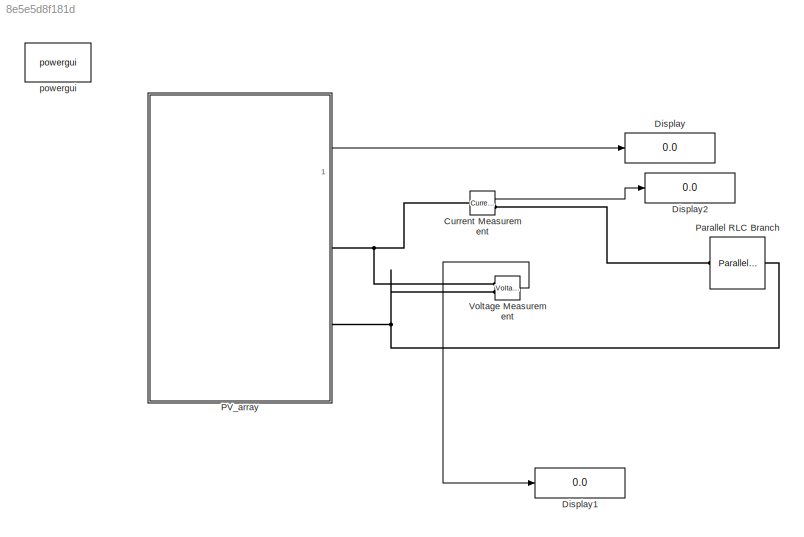
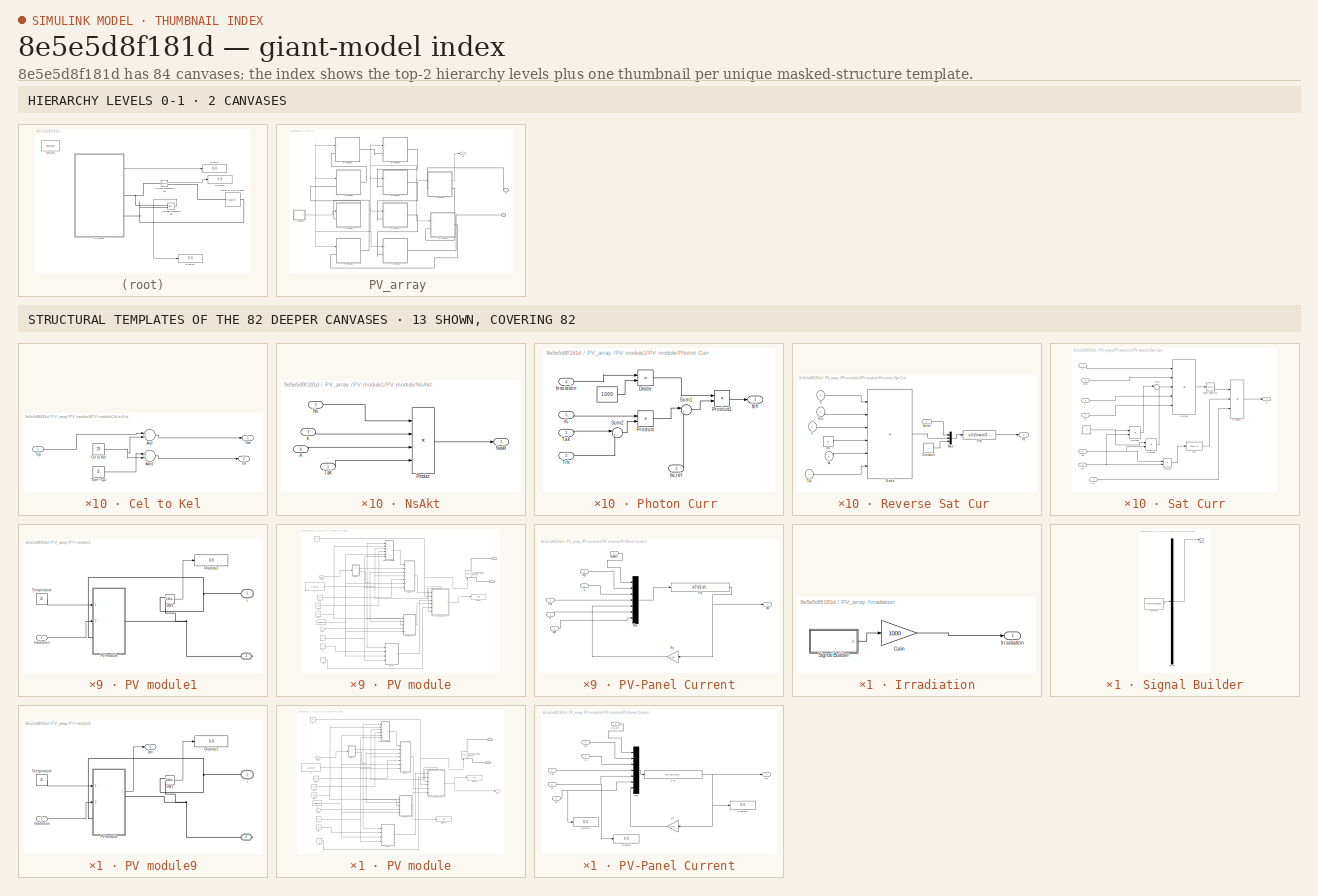
[diagram: thumbnail index - top-2 hierarchy levels (2 canvases) + 13 structural-template representatives of the remaining 82 canvases]
MODEL slx_8e5e5d8f181d
KIND model
CONFIG AbsTol = auto
CONFIG FixedStep = auto
CONFIG MaxStep = auto
CONFIG MinStep = auto
CONFIG RelTol = 1e-3
CONFIG SampleTimeConstraint = Unconstrained
CONFIG Solver = ode45
CONFIG SolverMode = Auto
CONFIG SolverName = ode45
CONFIG StartTime = 0.0
CONFIG StopTime = 10
BLOCK [Reference] Current Measurement  REF=powerlib/Measurements/Current Measurement
  OutputType = Complex
  PSBequivalent = 0
  PhasorSimulation = off
  Ports = [0, 1, 0, 0, 0, 1, 1]
  SourceBlock = powerlib/Measurements/Current Measurement
  SourceType = Current Measurement
  UserDataPersistent = on
BLOCK [Display] Display
  Decimation = 1
  Ports = [1]
BLOCK [Display] Display1
  Decimation = 1
  Ports = [1]
BLOCK [Display] Display2
  Decimation = 1
  Ports = [1]
BLOCK [SubSystem] PV_array 
  Ports = [0, 1, 0, 0, 0, 0, 2]
  RequestExecContextInheritance = off
BLOCK [PMIOPort] PV_array /+
  Port = 1
  Side = Right
BLOCK [PMIOPort] PV_array /-
  Port = 2
  Side = Right
BLOCK [Outport] PV_array /Ipv
  IconDisplay = Port number
BLOCK [SubSystem] PV_array /Irradiation
  Ports = [0, 1]
  RequestExecContextInheritance = off
BLOCK [Gain] PV_array /Irradiation/Gain
  Gain = 1000
  OutDataTypeStr = Inherit: Inherit via internal rule
  ParamDataTypeStr = Inherit: Inherit via internal rule
  SaturateOnIntegerOverflow = off
BLOCK [Outport] PV_array /Irradiation/Irradiation
  IconDisplay = Port number
BLOCK [SubSystem] PV_array /Irradiation/Signal Builder
  ClipboardFcn = sigbuilder_block('clipboard');
  CloseFcn = sigbuilder_block('close');
  ContinueFcn = sigbuilder_block('continue');
  CopyFcn = sigbuilder_block('copy');
  DeleteFcn = sigbuilder_block('delete');
  LoadFcn = sigbuilder_block('load');
  MaskHideContents = on
  ModelCloseFcn = sigbuilder_block('modelClose');
  NameChangeFcn = sigbuilder_block('namechange');
  OpenFcn = sigbuilder_block('open',[437.6 199.2 550.4 400 ]);
  PauseFcn = sigbuilder_block('pause');
  Ports = [0, 1]
  PreSaveFcn = sigbuilder_block('preSave');
  RequestExecContextInheritance = off
  StartFcn = sigbuilder_block('start');
  StopFcn = sigbuilder_block('stop');
  Tag = STV Subsys
BLOCK [Demux] PV_array /Irradiation/Signal Builder/Demux
  Outputs = 1
  Ports = [1, 1]
  Tag = STV Demux
BLOCK [FromWorkspace] PV_array /Irradiation/Signal Builder/FromWs
  SampleTime = 0
  Tag = STV FromWs
  VariableName = tuvar
  ZeroCross = on
BLOCK [Outport] PV_array /Irradiation/Signal Builder/Signal 1
  IconDisplay = Port number
  Tag = STV Outport
BLOCK [SubSystem] PV_array /PV module1
  Ports = [1, 0, 0, 0, 0, 1, 1]
  RequestExecContextInheritance = off
BLOCK [PMIOPort] PV_array /PV module1/+
  Port = 1
  Side = Left
  Tag = PMCPort
BLOCK [PMIOPort] PV_array /PV module1/-
  Port = 2
  Side = Right
  Tag = PMCPort
BLOCK [Display] PV_array /PV module1/Display2
  Decimation = 1
  Ports = [1]
BLOCK [Inport] PV_array /PV module1/Irradiation
  IconDisplay = Port number
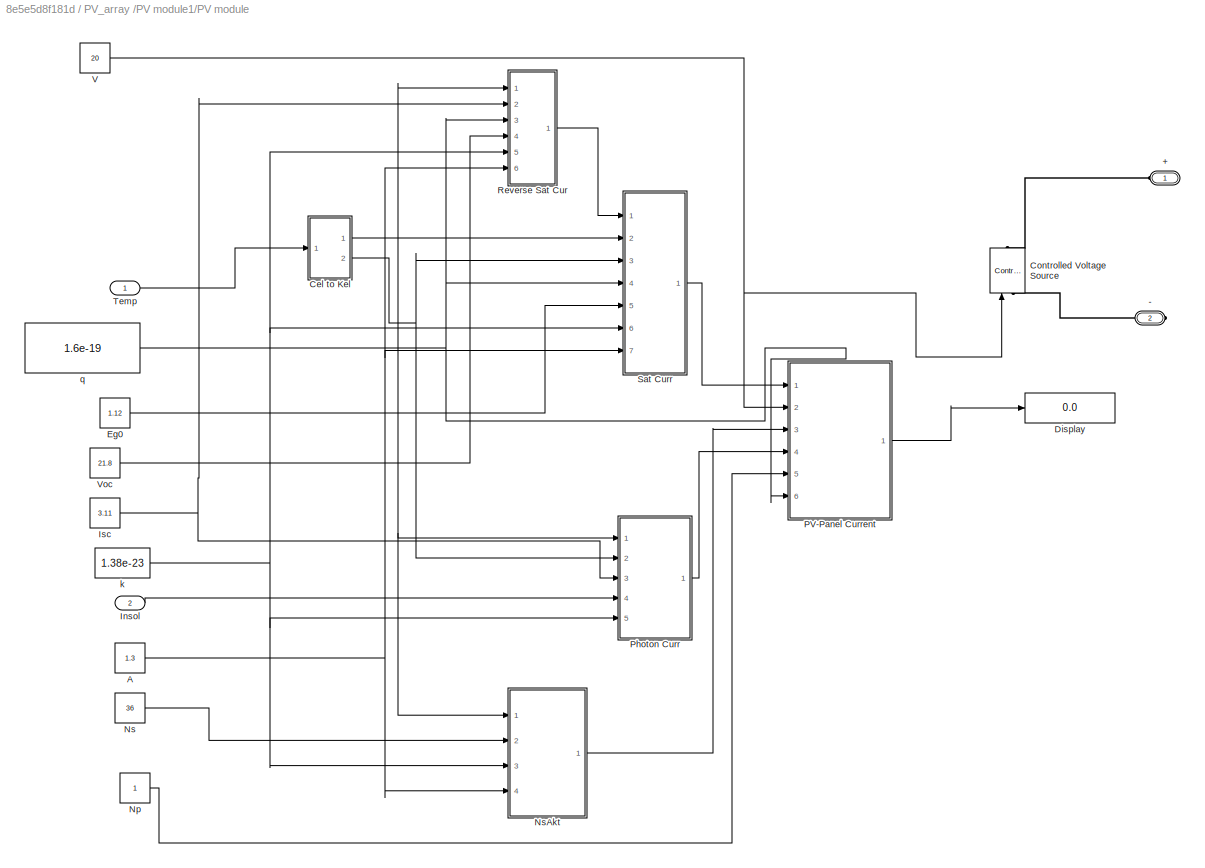
BLOCK [SubSystem] PV_array /PV module1/PV module
  Ports = [2, 0, 0, 0, 0, 1, 1]
  RequestExecContextInheritance = off
BLOCK [PMIOPort] PV_array /PV module1/PV module/+
  Port = 1
  Side = Left
BLOCK [PMIOPort] PV_array /PV module1/PV module/-
  Port = 2
  Side = Right
BLOCK [Constant] PV_array /PV module1/PV module/A
  Value = 1.3
BLOCK [SubSystem] PV_array /PV module1/PV module/Cel to Kel
  Ports = [1, 2]
  RequestExecContextInheritance = off
BLOCK [Sum] PV_array /PV module1/PV module/Cel to Kel/Add
  InputSameDT = off
  OutDataTypeStr = Inherit: Inherit via internal rule
  Ports = [2, 1]
  SaturateOnIntegerOverflow = off
BLOCK [Sum] PV_array /PV module1/PV module/Cel to Kel/Add1
  InputSameDT = off
  OutDataTypeStr = Inherit: Inherit via internal rule
  Ports = [2, 1]
  SaturateOnIntegerOverflow = off
BLOCK [Constant] PV_array /PV module1/PV module/Cel to Kel/Cel to Kel
  Value = 273
BLOCK [Constant] PV_array /PV module1/PV module/Cel to Kel/T(ref ^C)1
  Value = 25
BLOCK [Outport] PV_array /PV module1/PV module/Cel to Kel/Tak 
  IconDisplay = Port number
BLOCK [Inport] PV_array /PV module1/PV module/Cel to Kel/Top 
  IconDisplay = Port number
BLOCK [Outport] PV_array /PV module1/PV module/Cel to Kel/Trk 
  IconDisplay = Port number
  Port = 2
BLOCK [Reference] PV_array /PV module1/PV module/Controlled Voltage Source  REF=powerlib/Electrical
Sources/Controlled Voltage Source
  Amplitude = 0
  Frequency = 0
  Initialize = on
  Measurements = None
  Phase = 0
  Ports = [1, 0, 0, 0, 0, 1, 1]
  SourceBlock = powerlib/Electrical\nSources/Controlled Voltage Source
  SourceType = Controlled Voltage Source
  Source_Type = AC
BLOCK [Display] PV_array /PV module1/PV module/Display
  Decimation = 1
  Ports = [1]
BLOCK [Constant] PV_array /PV module1/PV module/Eg0
  Value = 1.12
BLOCK [Inport] PV_array /PV module1/PV module/Insol
  IconDisplay = Port number
  Port = 2
BLOCK [Constant] PV_array /PV module1/PV module/Isc
  Value = 3.11
BLOCK [Constant] PV_array /PV module1/PV module/Np
BLOCK [Constant] PV_array /PV module1/PV module/Ns
  Value = 36
BLOCK [SubSystem] PV_array /PV module1/PV module/NsAkt
  Ports = [4, 1]
  RequestExecContextInheritance = off
BLOCK [Inport] PV_array /PV module1/PV module/NsAkt/A
  IconDisplay = Port number
  Port = 4
BLOCK [Outport] PV_array /PV module1/PV module/NsAkt/Naskt
  IconDisplay = Port number
BLOCK [Inport] PV_array /PV module1/PV module/NsAkt/Ns
  IconDisplay = Port number
  Port = 2
BLOCK [Product] PV_array /PV module1/PV module/NsAkt/Product
  InputSameDT = off
  Inputs = 4
  OutDataTypeStr = Inherit: Inherit via internal rule
  Ports = [4, 1]
  RndMeth = Floor
  SaturateOnIntegerOverflow = off
BLOCK [Inport] PV_array /PV module1/PV module/NsAkt/TaK
  IconDisplay = Port number
BLOCK [Inport] PV_array /PV module1/PV module/NsAkt/k
  IconDisplay = Port number
  Port = 3
BLOCK [SubSystem] PV_array /PV module1/PV module/PV-Panel Current
  Ports = [6, 1]
  RequestExecContextInheritance = off
BLOCK [Fcn] PV_array /PV module1/PV module/PV-Panel Current/Fcn
  Expr = u(7)*u(2)-u(6)*u(2)*(exp((u(3)*(u(4)+u(5))/u(1)))-1)
BLOCK [Inport] PV_array /PV module1/PV module/PV-Panel Current/Iph 
  IconDisplay = Port number
  Port = 4
BLOCK [Outport] PV_array /PV module1/PV module/PV-Panel Current/Ipv
  IconDisplay = Port number
BLOCK [Inport] PV_array /PV module1/PV module/PV-Panel Current/Is
  IconDisplay = Port number
BLOCK [Mux] PV_array /PV module1/PV module/PV-Panel Current/Mux
  DisplayOption = bar
  Inputs = 7
  Ports = [7, 1]
BLOCK [Inport] PV_array /PV module1/PV module/PV-Panel Current/Np
  IconDisplay = Port number
  Port = 5
BLOCK [Inport] PV_array /PV module1/PV module/PV-Panel Current/NsAkT
  IconDisplay = Port number
  Port = 3
BLOCK [Gain] PV_array /PV module1/PV module/PV-Panel Current/Rs
  Gain = 0.45
  OutDataTypeStr = Inherit: Inherit via internal rule
  ParamDataTypeStr = Inherit: Inherit via internal rule
  SaturateOnIntegerOverflow = off
BLOCK [Inport] PV_array /PV module1/PV module/PV-Panel Current/Vpv 
  IconDisplay = Port number
  Port = 2
BLOCK [Inport] PV_array /PV module1/PV module/PV-Panel Current/q
  IconDisplay = Port number
  Port = 6
BLOCK [SubSystem] PV_array /PV module1/PV module/Photon Curr 
  Ports = [5, 1]
  RequestExecContextInheritance = off
BLOCK [Constant] PV_array /PV module1/PV module/Photon Curr / 
  Value = 1000
BLOCK [Product] PV_array /PV module1/PV module/Photon Curr /Divide
  InputSameDT = off
  Inputs = */
  OutDataTypeStr = Inherit: Inherit via internal rule
  Ports = [2, 1]
  RndMeth = Floor
  SaturateOnIntegerOverflow = off
BLOCK [Inport] PV_array /PV module1/PV module/Photon Curr /Insolation 
  IconDisplay = Port number
  Port = 4
BLOCK [Outport] PV_array /PV module1/PV module/Photon Curr /Iph 
  IconDisplay = Port number
BLOCK [Inport] PV_array /PV module1/PV module/Photon Curr /Isc,ref
  IconDisplay = Port number
  Port = 3
BLOCK [Inport] PV_array /PV module1/PV module/Photon Curr /Ki
  IconDisplay = Port number
  Port = 5
BLOCK [Product] PV_array /PV module1/PV module/Photon Curr /Product
  InputSameDT = off
  OutDataTypeStr = Inherit: Inherit via internal rule
  Ports = [2, 1]
  RndMeth = Floor
  SaturateOnIntegerOverflow = off
BLOCK [Product] PV_array /PV module1/PV module/Photon Curr /Product1
  InputSameDT = off
  OutDataTypeStr = Inherit: Inherit via internal rule
  Ports = [2, 1]
  RndMeth = Floor
  SaturateOnIntegerOverflow = off
BLOCK [Sum] PV_array /PV module1/PV module/Photon Curr /Sum1
  IconShape = round
  InputSameDT = off
  Inputs = |++
  OutDataTypeStr = Inherit: Inherit via internal rule
  Ports = [2, 1]
  SaturateOnIntegerOverflow = off
BLOCK [Sum] PV_array /PV module1/PV module/Photon Curr /Sum2
  IconShape = round
  InputSameDT = off
  Inputs = |+-
  OutDataTypeStr = Inherit: Inherit via internal rule
  Ports = [2, 1]
  SaturateOnIntegerOverflow = off
BLOCK [Inport] PV_array /PV module1/PV module/Photon Curr /Tak 
  IconDisplay = Port number
BLOCK [Inport] PV_array /PV module1/PV module/Photon Curr /Trk
  IconDisplay = Port number
  Port = 2
BLOCK [SubSystem] PV_array /PV module1/PV module/Reverse Sat Cur 
  Ports = [6, 1]
  RequestExecContextInheritance = off
BLOCK [Inport] PV_array /PV module1/PV module/Reverse Sat Cur /A 
  IconDisplay = Port number
  Port = 6
BLOCK [Constant] PV_array /PV module1/PV module/Reverse Sat Cur /Constant 
BLOCK [Product] PV_array /PV module1/PV module/Reverse Sat Cur /Divide
  InputSameDT = off
  Inputs = **////
  OutDataTypeStr = Inherit: Inherit via internal rule
  Ports = [6, 1]
  RndMeth = Floor
  SaturateOnIntegerOverflow = off
BLOCK [Fcn] PV_array /PV module1/PV module/Reverse Sat Cur /Fcn
  Expr = u(1)/(exp(u(2))-u(3))
BLOCK [Outport] PV_array /PV module1/PV module/Reverse Sat Cur /Irs
  IconDisplay = Port number
BLOCK [Inport] PV_array /PV module1/PV module/Reverse Sat Cur /Isc ref 
  IconDisplay = Port number
  Port = 2
BLOCK [Mux] PV_array /PV module1/PV module/Reverse Sat Cur /Mux
  DisplayOption = bar
  Inputs = 3
  Ports = [3, 1]
BLOCK [Constant] PV_array /PV module1/PV module/Reverse Sat Cur /Ns 
  Value = 36
BLOCK [Inport] PV_array /PV module1/PV module/Reverse Sat Cur /Tak 
  IconDisplay = Port number
BLOCK [Inport] PV_array /PV module1/PV module/Reverse Sat Cur /Voc
  IconDisplay = Port number
  Port = 4
BLOCK [Inport] PV_array /PV module1/PV module/Reverse Sat Cur /k
  IconDisplay = Port number
  Port = 5
BLOCK [Inport] PV_array /PV module1/PV module/Reverse Sat Cur /q
  IconDisplay = Port number
  Port = 3
BLOCK [SubSystem] PV_array /PV module1/PV module/Sat Curr
  Ports = [7, 1]
  RequestExecContextInheritance = off
BLOCK [Constant] PV_array /PV module1/PV module/Sat Curr/ 
BLOCK [Inport] PV_array /PV module1/PV module/Sat Curr/B
  IconDisplay = Port number
  Port = 7
BLOCK [Product] PV_array /PV module1/PV module/Sat Curr/Divide
  InputSameDT = off
  Inputs = */
  OutDataTypeStr = Inherit: Inherit via internal rule
  Ports = [2, 1]
  RndMeth = Floor
  SaturateOnIntegerOverflow = off
BLOCK [Product] PV_array /PV module1/PV module/Sat Curr/Divide1
  InputSameDT = off
  Inputs = ***//
  OutDataTypeStr = Inherit: Inherit via internal rule
  Ports = [5, 1]
  RndMeth = Floor
  SaturateOnIntegerOverflow = off
BLOCK [Product] PV_array /PV module1/PV module/Sat Curr/Divide2
  InputSameDT = off
  Inputs = */
  OutDataTypeStr = Inherit: Inherit via internal rule
  Ports = [2, 1]
  RndMeth = Floor
  SaturateOnIntegerOverflow = off
BLOCK [Product] PV_array /PV module1/PV module/Sat Curr/Divide3
  InputSameDT = off
  Inputs = */
  OutDataTypeStr = Inherit: Inherit via internal rule
  Ports = [2, 1]
  RndMeth = Floor
  SaturateOnIntegerOverflow = off
BLOCK [Inport] PV_array /PV module1/PV module/Sat Curr/Eg0
  IconDisplay = Port number
  Port = 5
BLOCK [Fcn] PV_array /PV module1/PV module/Sat Curr/Fcn
  Expr = (u(1))^3
BLOCK [Inport] PV_array /PV module1/PV module/Sat Curr/Irs
  IconDisplay = Port number
BLOCK [Outport] PV_array /PV module1/PV module/Sat Curr/Is
  IconDisplay = Port number
BLOCK [Math] PV_array /PV module1/PV module/Sat Curr/Math Function
  Ports = [1, 1]
BLOCK [Product] PV_array /PV module1/PV module/Sat Curr/Product1
  InputSameDT = off
  Inputs = 3
  OutDataTypeStr = Inherit: Inherit via internal rule
  Ports = [3, 1]
  RndMeth = Floor
  SaturateOnIntegerOverflow = off
BLOCK [Sum] PV_array /PV module1/PV module/Sat Curr/Sum
  IconShape = round
  InputSameDT = off
  Inputs = |+-
  OutDataTypeStr = Inherit: Inherit via internal rule
  Ports = [2, 1]
  SaturateOnIntegerOverflow = off
BLOCK [Inport] PV_array /PV module1/PV module/Sat Curr/Tak
  IconDisplay = Port number
  Port = 2
BLOCK [Inport] PV_array /PV module1/PV module/Sat Curr/Trk
  IconDisplay = Port number
  Port = 3
BLOCK [Inport] PV_array /PV module1/PV module/Sat Curr/k
  IconDisplay = Port number
  Port = 6
BLOCK [Inport] PV_array /PV module1/PV module/Sat Curr/q
  IconDisplay = Port number
  Port = 4
BLOCK [Inport] PV_array /PV module1/PV module/Temp
  IconDisplay = Port number
BLOCK [Constant] PV_array /PV module1/PV module/V
  Value = 20
BLOCK [Constant] PV_array /PV module1/PV module/Voc
  Value = 21.8
BLOCK [Constant] PV_array /PV module1/PV module/k
  Value = 1.38e-23
BLOCK [Constant] PV_array /PV module1/PV module/q
  Value = 1.6e-19
BLOCK [Constant] PV_array /PV module1/Temperature
  Value = 25
BLOCK [Reference] PV_array /PV module1/VM1  REF=powerlib/Measurements/Voltage Measurement
  OutputType = Complex
  PSBequivalent = 0
  PhasorSimulation = off
  Ports = [0, 1, 0, 0, 0, 2]
  SourceBlock = powerlib/Measurements/Voltage Measurement
  SourceType = Voltage Measurement
BLOCK [SubSystem] PV_array /PV module10
  Ports = [1, 0, 0, 0, 0, 1, 1]
  RequestExecContextInheritance = off
BLOCK [PMIOPort] PV_array /PV module10/+
  Port = 1
  Side = Left
  Tag = PMCPort
BLOCK [PMIOPort] PV_array /PV module10/-
  Port = 2
  Side = Right
  Tag = PMCPort
BLOCK [Display] PV_array /PV module10/Display2
  Decimation = 1
  Ports = [1]
BLOCK [Inport] PV_array /PV module10/Irradiation
  IconDisplay = Port number
BLOCK [SubSystem] PV_array /PV module10/PV module
  Ports = [2, 0, 0, 0, 0, 1, 1]
  RequestExecContextInheritance = off
BLOCK [PMIOPort] PV_array /PV module10/PV module/+
  Port = 1
  Side = Left
BLOCK [PMIOPort] PV_array /PV module10/PV module/-
  Port = 2
  Side = Right
BLOCK [Constant] PV_array /PV module10/PV module/A
  Value = 1.3
BLOCK [SubSystem] PV_array /PV module10/PV module/Cel to Kel
  Ports = [1, 2]
  RequestExecContextInheritance = off
BLOCK [Sum] PV_array /PV module10/PV module/Cel to Kel/Add
  InputSameDT = off
  OutDataTypeStr = Inherit: Inherit via internal rule
  Ports = [2, 1]
  SaturateOnIntegerOverflow = off
BLOCK [Sum] PV_array /PV module10/PV module/Cel to Kel/Add1
  InputSameDT = off
  OutDataTypeStr = Inherit: Inherit via internal rule
  Ports = [2, 1]
  SaturateOnIntegerOverflow = off
BLOCK [Constant] PV_array /PV module10/PV module/Cel to Kel/Cel to Kel
  Value = 273
BLOCK [Constant] PV_array /PV module10/PV module/Cel to Kel/T(ref ^C)1
  Value = 25
BLOCK [Outport] PV_array /PV module10/PV module/Cel to Kel/Tak 
  IconDisplay = Port number
BLOCK [Inport] PV_array /PV module10/PV module/Cel to Kel/Top 
  IconDisplay = Port number
BLOCK [Outport] PV_array /PV module10/PV module/Cel to Kel/Trk 
  IconDisplay = Port number
  Port = 2
BLOCK [Reference] PV_array /PV module10/PV module/Controlled Voltage Source  REF=powerlib/Electrical
Sources/Controlled Voltage Source
  Amplitude = 0
  Frequency = 0
  Initialize = on
  Measurements = None
  Phase = 0
  Ports = [1, 0, 0, 0, 0, 1, 1]
  SourceBlock = powerlib/Electrical\nSources/Controlled Voltage Source
  SourceType = Controlled Voltage Source
  Source_Type = AC
BLOCK [Display] PV_array /PV module10/PV module/Display
  Decimation = 1
  Ports = [1]
BLOCK [Constant] PV_array /PV module10/PV module/Eg0
  Value = 1.12
BLOCK [Inport] PV_array /PV module10/PV module/Insol
  IconDisplay = Port number
  Port = 2
BLOCK [Constant] PV_array /PV module10/PV module/Isc
  Value = 3.11
BLOCK [Constant] PV_array /PV module10/PV module/Np
BLOCK [Constant] PV_array /PV module10/PV module/Ns
  Value = 36
BLOCK [SubSystem] PV_array /PV module10/PV module/NsAkt
  Ports = [4, 1]
  RequestExecContextInheritance = off
BLOCK [Inport] PV_array /PV module10/PV module/NsAkt/A
  IconDisplay = Port number
  Port = 4
BLOCK [Outport] PV_array /PV module10/PV module/NsAkt/Naskt
  IconDisplay = Port number
BLOCK [Inport] PV_array /PV module10/PV module/NsAkt/Ns
  IconDisplay = Port number
  Port = 2
BLOCK [Product] PV_array /PV module10/PV module/NsAkt/Product
  InputSameDT = off
  Inputs = 4
  OutDataTypeStr = Inherit: Inherit via internal rule
  Ports = [4, 1]
  RndMeth = Floor
  SaturateOnIntegerOverflow = off
BLOCK [Inport] PV_array /PV module10/PV module/NsAkt/TaK
  IconDisplay = Port number
BLOCK [Inport] PV_array /PV module10/PV module/NsAkt/k
  IconDisplay = Port number
  Port = 3
BLOCK [SubSystem] PV_array /PV module10/PV module/PV-Panel Current
  Ports = [6, 1]
  RequestExecContextInheritance = off
BLOCK [Fcn] PV_array /PV module10/PV module/PV-Panel Current/Fcn
  Expr = u(7)*u(2)-u(6)*u(2)*(exp((u(3)*(u(4)+u(5))/u(1)))-1)
BLOCK [Inport] PV_array /PV module10/PV module/PV-Panel Current/Iph 
  IconDisplay = Port number
  Port = 4
BLOCK [Outport] PV_array /PV module10/PV module/PV-Panel Current/Ipv
  IconDisplay = Port number
BLOCK [Inport] PV_array /PV module10/PV module/PV-Panel Current/Is
  IconDisplay = Port number
BLOCK [Mux] PV_array /PV module10/PV module/PV-Panel Current/Mux
  DisplayOption = bar
  Inputs = 7
  Ports = [7, 1]
BLOCK [Inport] PV_array /PV module10/PV module/PV-Panel Current/Np
  IconDisplay = Port number
  Port = 5
BLOCK [Inport] PV_array /PV module10/PV module/PV-Panel Current/NsAkT
  IconDisplay = Port number
  Port = 3
BLOCK [Gain] PV_array /PV module10/PV module/PV-Panel Current/Rs
  Gain = 0.45
  OutDataTypeStr = Inherit: Inherit via internal rule
  ParamDataTypeStr = Inherit: Inherit via internal rule
  SaturateOnIntegerOverflow = off
BLOCK [Inport] PV_array /PV module10/PV module/PV-Panel Current/Vpv 
  IconDisplay = Port number
  Port = 2
BLOCK [Inport] PV_array /PV module10/PV module/PV-Panel Current/q
  IconDisplay = Port number
  Port = 6
BLOCK [SubSystem] PV_array /PV module10/PV module/Photon Curr 
  Ports = [5, 1]
  RequestExecContextInheritance = off
BLOCK [Constant] PV_array /PV module10/PV module/Photon Curr / 
  Value = 1000
BLOCK [Product] PV_array /PV module10/PV module/Photon Curr /Divide
  InputSameDT = off
  Inputs = */
  OutDataTypeStr = Inherit: Inherit via internal rule
  Ports = [2, 1]
  RndMeth = Floor
  SaturateOnIntegerOverflow = off
BLOCK [Inport] PV_array /PV module10/PV module/Photon Curr /Insolation 
  IconDisplay = Port number
  Port = 4
BLOCK [Outport] PV_array /PV module10/PV module/Photon Curr /Iph 
  IconDisplay = Port number
BLOCK [Inport] PV_array /PV module10/PV module/Photon Curr /Isc,ref
  IconDisplay = Port number
  Port = 3
BLOCK [Inport] PV_array /PV module10/PV module/Photon Curr /Ki
  IconDisplay = Port number
  Port = 5
BLOCK [Product] PV_array /PV module10/PV module/Photon Curr /Product
  InputSameDT = off
  OutDataTypeStr = Inherit: Inherit via internal rule
  Ports = [2, 1]
  RndMeth = Floor
  SaturateOnIntegerOverflow = off
BLOCK [Product] PV_array /PV module10/PV module/Photon Curr /Product1
  InputSameDT = off
  OutDataTypeStr = Inherit: Inherit via internal rule
  Ports = [2, 1]
  RndMeth = Floor
  SaturateOnIntegerOverflow = off
BLOCK [Sum] PV_array /PV module10/PV module/Photon Curr /Sum1
  IconShape = round
  InputSameDT = off
  Inputs = |++
  OutDataTypeStr = Inherit: Inherit via internal rule
  Ports = [2, 1]
  SaturateOnIntegerOverflow = off
BLOCK [Sum] PV_array /PV module10/PV module/Photon Curr /Sum2
  IconShape = round
  InputSameDT = off
  Inputs = |+-
  OutDataTypeStr = Inherit: Inherit via internal rule
  Ports = [2, 1]
  SaturateOnIntegerOverflow = off
BLOCK [Inport] PV_array /PV module10/PV module/Photon Curr /Tak 
  IconDisplay = Port number
BLOCK [Inport] PV_array /PV module10/PV module/Photon Curr /Trk
  IconDisplay = Port number
  Port = 2
BLOCK [SubSystem] PV_array /PV module10/PV module/Reverse Sat Cur 
  Ports = [6, 1]
  RequestExecContextInheritance = off
BLOCK [Inport] PV_array /PV module10/PV module/Reverse Sat Cur /A 
  IconDisplay = Port number
  Port = 6
BLOCK [Constant] PV_array /PV module10/PV module/Reverse Sat Cur /Constant 
BLOCK [Product] PV_array /PV module10/PV module/Reverse Sat Cur /Divide
  InputSameDT = off
  Inputs = **////
  OutDataTypeStr = Inherit: Inherit via internal rule
  Ports = [6, 1]
  RndMeth = Floor
  SaturateOnIntegerOverflow = off
BLOCK [Fcn] PV_array /PV module10/PV module/Reverse Sat Cur /Fcn
  Expr = u(1)/(exp(u(2))-u(3))
BLOCK [Outport] PV_array /PV module10/PV module/Reverse Sat Cur /Irs
  IconDisplay = Port number
BLOCK [Inport] PV_array /PV module10/PV module/Reverse Sat Cur /Isc ref 
  IconDisplay = Port number
  Port = 2
BLOCK [Mux] PV_array /PV module10/PV module/Reverse Sat Cur /Mux
  DisplayOption = bar
  Inputs = 3
  Ports = [3, 1]
BLOCK [Constant] PV_array /PV module10/PV module/Reverse Sat Cur /Ns 
  Value = 36
BLOCK [Inport] PV_array /PV module10/PV module/Reverse Sat Cur /Tak 
  IconDisplay = Port number
BLOCK [Inport] PV_array /PV module10/PV module/Reverse Sat Cur /Voc
  IconDisplay = Port number
  Port = 4
BLOCK [Inport] PV_array /PV module10/PV module/Reverse Sat Cur /k
  IconDisplay = Port number
  Port = 5
BLOCK [Inport] PV_array /PV module10/PV module/Reverse Sat Cur /q
  IconDisplay = Port number
  Port = 3
BLOCK [SubSystem] PV_array /PV module10/PV module/Sat Curr
  Ports = [7, 1]
  RequestExecContextInheritance = off
BLOCK [Constant] PV_array /PV module10/PV module/Sat Curr/ 
BLOCK [Inport] PV_array /PV module10/PV module/Sat Curr/B
  IconDisplay = Port number
  Port = 7
BLOCK [Product] PV_array /PV module10/PV module/Sat Curr/Divide
  InputSameDT = off
  Inputs = */
  OutDataTypeStr = Inherit: Inherit via internal rule
  Ports = [2, 1]
  RndMeth = Floor
  SaturateOnIntegerOverflow = off
BLOCK [Product] PV_array /PV module10/PV module/Sat Curr/Divide1
  InputSameDT = off
  Inputs = ***//
  OutDataTypeStr = Inherit: Inherit via internal rule
  Ports = [5, 1]
  RndMeth = Floor
  SaturateOnIntegerOverflow = off
BLOCK [Product] PV_array /PV module10/PV module/Sat Curr/Divide2
  InputSameDT = off
  Inputs = */
  OutDataTypeStr = Inherit: Inherit via internal rule
  Ports = [2, 1]
  RndMeth = Floor
  SaturateOnIntegerOverflow = off
BLOCK [Product] PV_array /PV module10/PV module/Sat Curr/Divide3
  InputSameDT = off
  Inputs = */
  OutDataTypeStr = Inherit: Inherit via internal rule
  Ports = [2, 1]
  RndMeth = Floor
  SaturateOnIntegerOverflow = off
BLOCK [Inport] PV_array /PV module10/PV module/Sat Curr/Eg0
  IconDisplay = Port number
  Port = 5
BLOCK [Fcn] PV_array /PV module10/PV module/Sat Curr/Fcn
  Expr = (u(1))^3
BLOCK [Inport] PV_array /PV module10/PV module/Sat Curr/Irs
  IconDisplay = Port number
BLOCK [Outport] PV_array /PV module10/PV module/Sat Curr/Is
  IconDisplay = Port number
BLOCK [Math] PV_array /PV module10/PV module/Sat Curr/Math Function
  Ports = [1, 1]
BLOCK [Product] PV_array /PV module10/PV module/Sat Curr/Product1
  InputSameDT = off
  Inputs = 3
  OutDataTypeStr = Inherit: Inherit via internal rule
  Ports = [3, 1]
  RndMeth = Floor
  SaturateOnIntegerOverflow = off
BLOCK [Sum] PV_array /PV module10/PV module/Sat Curr/Sum
  IconShape = round
  InputSameDT = off
  Inputs = |+-
  OutDataTypeStr = Inherit: Inherit via internal rule
  Ports = [2, 1]
  SaturateOnIntegerOverflow = off
BLOCK [Inport] PV_array /PV module10/PV module/Sat Curr/Tak
  IconDisplay = Port number
  Port = 2
BLOCK [Inport] PV_array /PV module10/PV module/Sat Curr/Trk
  IconDisplay = Port number
  Port = 3
BLOCK [Inport] PV_array /PV module10/PV module/Sat Curr/k
  IconDisplay = Port number
  Port = 6
BLOCK [Inport] PV_array /PV module10/PV module/Sat Curr/q
  IconDisplay = Port number
  Port = 4
BLOCK [Inport] PV_array /PV module10/PV module/Temp
  IconDisplay = Port number
BLOCK [Constant] PV_array /PV module10/PV module/V
  Value = 20
BLOCK [Constant] PV_array /PV module10/PV module/Voc
  Value = 21.8
BLOCK [Constant] PV_array /PV module10/PV module/k
  Value = 1.38e-23
BLOCK [Constant] PV_array /PV module10/PV module/q
  Value = 1.6e-19
BLOCK [Constant] PV_array /PV module10/Temperature
  Value = 25
BLOCK [Reference] PV_array /PV module10/VM1  REF=powerlib/Measurements/Voltage Measurement
  OutputType = Complex
  PSBequivalent = 0
  PhasorSimulation = off
  Ports = [0, 1, 0, 0, 0, 2]
  SourceBlock = powerlib/Measurements/Voltage Measurement
  SourceType = Voltage Measurement
BLOCK [SubSystem] PV_array /PV module2
  Ports = [1, 0, 0, 0, 0, 1, 1]
  RequestExecContextInheritance = off
BLOCK [PMIOPort] PV_array /PV module2/+
  Port = 1
  Side = Left
  Tag = PMCPort
BLOCK [PMIOPort] PV_array /PV module2/-
  Port = 2
  Side = Right
  Tag = PMCPort
BLOCK [Display] PV_array /PV module2/Display2
  Decimation = 1
  Ports = [1]
BLOCK [Inport] PV_array /PV module2/Irradiation
  IconDisplay = Port number
BLOCK [SubSystem] PV_array /PV module2/PV module
  Ports = [2, 0, 0, 0, 0, 1, 1]
  RequestExecContextInheritance = off
BLOCK [PMIOPort] PV_array /PV module2/PV module/+
  Port = 1
  Side = Left
BLOCK [PMIOPort] PV_array /PV module2/PV module/-
  Port = 2
  Side = Right
BLOCK [Constant] PV_array /PV module2/PV module/A
  Value = 1.3
BLOCK [SubSystem] PV_array /PV module2/PV module/Cel to Kel
  Ports = [1, 2]
  RequestExecContextInheritance = off
BLOCK [Sum] PV_array /PV module2/PV module/Cel to Kel/Add
  InputSameDT = off
  OutDataTypeStr = Inherit: Inherit via internal rule
  Ports = [2, 1]
  SaturateOnIntegerOverflow = off
BLOCK [Sum] PV_array /PV module2/PV module/Cel to Kel/Add1
  InputSameDT = off
  OutDataTypeStr = Inherit: Inherit via internal rule
  Ports = [2, 1]
  SaturateOnIntegerOverflow = off
BLOCK [Constant] PV_array /PV module2/PV module/Cel to Kel/Cel to Kel
  Value = 273
BLOCK [Constant] PV_array /PV module2/PV module/Cel to Kel/T(ref ^C)1
  Value = 25
BLOCK [Outport] PV_array /PV module2/PV module/Cel to Kel/Tak 
  IconDisplay = Port number
BLOCK [Inport] PV_array /PV module2/PV module/Cel to Kel/Top 
  IconDisplay = Port number
BLOCK [Outport] PV_array /PV module2/PV module/Cel to Kel/Trk 
  IconDisplay = Port number
  Port = 2
BLOCK [Reference] PV_array /PV module2/PV module/Controlled Voltage Source  REF=powerlib/Electrical
Sources/Controlled Voltage Source
  Amplitude = 0
  Frequency = 0
  Initialize = on
  Measurements = None
  Phase = 0
  Ports = [1, 0, 0, 0, 0, 1, 1]
  SourceBlock = powerlib/Electrical\nSources/Controlled Voltage Source
  SourceType = Controlled Voltage Source
  Source_Type = AC
BLOCK [Display] PV_array /PV module2/PV module/Display
  Decimation = 1
  Ports = [1]
BLOCK [Constant] PV_array /PV module2/PV module/Eg0
  Value = 1.12
BLOCK [Inport] PV_array /PV module2/PV module/Insol
  IconDisplay = Port number
  Port = 2
BLOCK [Constant] PV_array /PV module2/PV module/Isc
  Value = 3.11
BLOCK [Constant] PV_array /PV module2/PV module/Np
BLOCK [Constant] PV_array /PV module2/PV module/Ns
  Value = 36
BLOCK [SubSystem] PV_array /PV module2/PV module/NsAkt
  Ports = [4, 1]
  RequestExecContextInheritance = off
BLOCK [Inport] PV_array /PV module2/PV module/NsAkt/A
  IconDisplay = Port number
  Port = 4
BLOCK [Outport] PV_array /PV module2/PV module/NsAkt/Naskt
  IconDisplay = Port number
BLOCK [Inport] PV_array /PV module2/PV module/NsAkt/Ns
  IconDisplay = Port number
  Port = 2
BLOCK [Product] PV_array /PV module2/PV module/NsAkt/Product
  InputSameDT = off
  Inputs = 4
  OutDataTypeStr = Inherit: Inherit via internal rule
  Ports = [4, 1]
  RndMeth = Floor
  SaturateOnIntegerOverflow = off
BLOCK [Inport] PV_array /PV module2/PV module/NsAkt/TaK
  IconDisplay = Port number
BLOCK [Inport] PV_array /PV module2/PV module/NsAkt/k
  IconDisplay = Port number
  Port = 3
BLOCK [SubSystem] PV_array /PV module2/PV module/PV-Panel Current
  Ports = [6, 1]
  RequestExecContextInheritance = off
BLOCK [Fcn] PV_array /PV module2/PV module/PV-Panel Current/Fcn
  Expr = u(7)*u(2)-u(6)*u(2)*(exp((u(3)*(u(4)+u(5))/u(1)))-1)
BLOCK [Inport] PV_array /PV module2/PV module/PV-Panel Current/Iph 
  IconDisplay = Port number
  Port = 4
BLOCK [Outport] PV_array /PV module2/PV module/PV-Panel Current/Ipv
  IconDisplay = Port number
BLOCK [Inport] PV_array /PV module2/PV module/PV-Panel Current/Is
  IconDisplay = Port number
BLOCK [Mux] PV_array /PV module2/PV module/PV-Panel Current/Mux
  DisplayOption = bar
  Inputs = 7
  Ports = [7, 1]
BLOCK [Inport] PV_array /PV module2/PV module/PV-Panel Current/Np
  IconDisplay = Port number
  Port = 5
BLOCK [Inport] PV_array /PV module2/PV module/PV-Panel Current/NsAkT
  IconDisplay = Port number
  Port = 3
BLOCK [Gain] PV_array /PV module2/PV module/PV-Panel Current/Rs
  Gain = 0.45
  OutDataTypeStr = Inherit: Inherit via internal rule
  ParamDataTypeStr = Inherit: Inherit via internal rule
  SaturateOnIntegerOverflow = off
BLOCK [Inport] PV_array /PV module2/PV module/PV-Panel Current/Vpv 
  IconDisplay = Port number
  Port = 2
BLOCK [Inport] PV_array /PV module2/PV module/PV-Panel Current/q
  IconDisplay = Port number
  Port = 6
BLOCK [SubSystem] PV_array /PV module2/PV module/Photon Curr 
  Ports = [5, 1]
  RequestExecContextInheritance = off
BLOCK [Constant] PV_array /PV module2/PV module/Photon Curr / 
  Value = 1000
BLOCK [Product] PV_array /PV module2/PV module/Photon Curr /Divide
  InputSameDT = off
  Inputs = */
  OutDataTypeStr = Inherit: Inherit via internal rule
  Ports = [2, 1]
  RndMeth = Floor
  SaturateOnIntegerOverflow = off
BLOCK [Inport] PV_array /PV module2/PV module/Photon Curr /Insolation 
  IconDisplay = Port number
  Port = 4
BLOCK [Outport] PV_array /PV module2/PV module/Photon Curr /Iph 
  IconDisplay = Port number
BLOCK [Inport] PV_array /PV module2/PV module/Photon Curr /Isc,ref
  IconDisplay = Port number
  Port = 3
BLOCK [Inport] PV_array /PV module2/PV module/Photon Curr /Ki
  IconDisplay = Port number
  Port = 5
BLOCK [Product] PV_array /PV module2/PV module/Photon Curr /Product
  InputSameDT = off
  OutDataTypeStr = Inherit: Inherit via internal rule
  Ports = [2, 1]
  RndMeth = Floor
  SaturateOnIntegerOverflow = off
BLOCK [Product] PV_array /PV module2/PV module/Photon Curr /Product1
  InputSameDT = off
  OutDataTypeStr = Inherit: Inherit via internal rule
  Ports = [2, 1]
  RndMeth = Floor
  SaturateOnIntegerOverflow = off
BLOCK [Sum] PV_array /PV module2/PV module/Photon Curr /Sum1
  IconShape = round
  InputSameDT = off
  Inputs = |++
  OutDataTypeStr = Inherit: Inherit via internal rule
  Ports = [2, 1]
  SaturateOnIntegerOverflow = off
BLOCK [Sum] PV_array /PV module2/PV module/Photon Curr /Sum2
  IconShape = round
  InputSameDT = off
  Inputs = |+-
  OutDataTypeStr = Inherit: Inherit via internal rule
  Ports = [2, 1]
  SaturateOnIntegerOverflow = off
BLOCK [Inport] PV_array /PV module2/PV module/Photon Curr /Tak 
  IconDisplay = Port number
BLOCK [Inport] PV_array /PV module2/PV module/Photon Curr /Trk
  IconDisplay = Port number
  Port = 2
BLOCK [SubSystem] PV_array /PV module2/PV module/Reverse Sat Cur 
  Ports = [6, 1]
  RequestExecContextInheritance = off
BLOCK [Inport] PV_array /PV module2/PV module/Reverse Sat Cur /A 
  IconDisplay = Port number
  Port = 6
BLOCK [Constant] PV_array /PV module2/PV module/Reverse Sat Cur /Constant 
BLOCK [Product] PV_array /PV module2/PV module/Reverse Sat Cur /Divide
  InputSameDT = off
  Inputs = **////
  OutDataTypeStr = Inherit: Inherit via internal rule
  Ports = [6, 1]
  RndMeth = Floor
  SaturateOnIntegerOverflow = off
BLOCK [Fcn] PV_array /PV module2/PV module/Reverse Sat Cur /Fcn
  Expr = u(1)/(exp(u(2))-u(3))
BLOCK [Outport] PV_array /PV module2/PV module/Reverse Sat Cur /Irs
  IconDisplay = Port number
BLOCK [Inport] PV_array /PV module2/PV module/Reverse Sat Cur /Isc ref 
  IconDisplay = Port number
  Port = 2
BLOCK [Mux] PV_array /PV module2/PV module/Reverse Sat Cur /Mux
  DisplayOption = bar
  Inputs = 3
  Ports = [3, 1]
BLOCK [Constant] PV_array /PV module2/PV module/Reverse Sat Cur /Ns 
  Value = 36
BLOCK [Inport] PV_array /PV module2/PV module/Reverse Sat Cur /Tak 
  IconDisplay = Port number
BLOCK [Inport] PV_array /PV module2/PV module/Reverse Sat Cur /Voc
  IconDisplay = Port number
  Port = 4
BLOCK [Inport] PV_array /PV module2/PV module/Reverse Sat Cur /k
  IconDisplay = Port number
  Port = 5
BLOCK [Inport] PV_array /PV module2/PV module/Reverse Sat Cur /q
  IconDisplay = Port number
  Port = 3
BLOCK [SubSystem] PV_array /PV module2/PV module/Sat Curr
  Ports = [7, 1]
  RequestExecContextInheritance = off
BLOCK [Constant] PV_array /PV module2/PV module/Sat Curr/ 
BLOCK [Inport] PV_array /PV module2/PV module/Sat Curr/B
  IconDisplay = Port number
  Port = 7
BLOCK [Product] PV_array /PV module2/PV module/Sat Curr/Divide
  InputSameDT = off
  Inputs = */
  OutDataTypeStr = Inherit: Inherit via internal rule
  Ports = [2, 1]
  RndMeth = Floor
  SaturateOnIntegerOverflow = off
BLOCK [Product] PV_array /PV module2/PV module/Sat Curr/Divide1
  InputSameDT = off
  Inputs = ***//
  OutDataTypeStr = Inherit: Inherit via internal rule
  Ports = [5, 1]
  RndMeth = Floor
  SaturateOnIntegerOverflow = off
BLOCK [Product] PV_array /PV module2/PV module/Sat Curr/Divide2
  InputSameDT = off
  Inputs = */
  OutDataTypeStr = Inherit: Inherit via internal rule
  Ports = [2, 1]
  RndMeth = Floor
  SaturateOnIntegerOverflow = off
BLOCK [Product] PV_array /PV module2/PV module/Sat Curr/Divide3
  InputSameDT = off
  Inputs = */
  OutDataTypeStr = Inherit: Inherit via internal rule
  Ports = [2, 1]
  RndMeth = Floor
  SaturateOnIntegerOverflow = off
BLOCK [Inport] PV_array /PV module2/PV module/Sat Curr/Eg0
  IconDisplay = Port number
  Port = 5
BLOCK [Fcn] PV_array /PV module2/PV module/Sat Curr/Fcn
  Expr = (u(1))^3
BLOCK [Inport] PV_array /PV module2/PV module/Sat Curr/Irs
  IconDisplay = Port number
BLOCK [Outport] PV_array /PV module2/PV module/Sat Curr/Is
  IconDisplay = Port number
BLOCK [Math] PV_array /PV module2/PV module/Sat Curr/Math Function
  Ports = [1, 1]
BLOCK [Product] PV_array /PV module2/PV module/Sat Curr/Product1
  InputSameDT = off
  Inputs = 3
  OutDataTypeStr = Inherit: Inherit via internal rule
  Ports = [3, 1]
  RndMeth = Floor
  SaturateOnIntegerOverflow = off
BLOCK [Sum] PV_array /PV module2/PV module/Sat Curr/Sum
  IconShape = round
  InputSameDT = off
  Inputs = |+-
  OutDataTypeStr = Inherit: Inherit via internal rule
  Ports = [2, 1]
  SaturateOnIntegerOverflow = off
BLOCK [Inport] PV_array /PV module2/PV module/Sat Curr/Tak
  IconDisplay = Port number
  Port = 2
BLOCK [Inport] PV_array /PV module2/PV module/Sat Curr/Trk
  IconDisplay = Port number
  Port = 3
BLOCK [Inport] PV_array /PV module2/PV module/Sat Curr/k
  IconDisplay = Port number
  Port = 6
BLOCK [Inport] PV_array /PV module2/PV module/Sat Curr/q
  IconDisplay = Port number
  Port = 4
BLOCK [Inport] PV_array /PV module2/PV module/Temp
  IconDisplay = Port number
BLOCK [Constant] PV_array /PV module2/PV module/V
  Value = 20
BLOCK [Constant] PV_array /PV module2/PV module/Voc
  Value = 21.8
BLOCK [Constant] PV_array /PV module2/PV module/k
  Value = 1.38e-23
BLOCK [Constant] PV_array /PV module2/PV module/q
  Value = 1.6e-19
BLOCK [Constant] PV_array /PV module2/Temperature
  Value = 25
BLOCK [Reference] PV_array /PV module2/VM1  REF=powerlib/Measurements/Voltage Measurement
  OutputType = Complex
  PSBequivalent = 0
  PhasorSimulation = off
  Ports = [0, 1, 0, 0, 0, 2]
  SourceBlock = powerlib/Measurements/Voltage Measurement
  SourceType = Voltage Measurement
BLOCK [SubSystem] PV_array /PV module3
  Ports = [1, 0, 0, 0, 0, 1, 1]
  RequestExecContextInheritance = off
BLOCK [PMIOPort] PV_array /PV module3/+
  Port = 1
  Side = Left
  Tag = PMCPort
BLOCK [PMIOPort] PV_array /PV module3/-
  Port = 2
  Side = Right
  Tag = PMCPort
BLOCK [Display] PV_array /PV module3/Display2
  Decimation = 1
  Ports = [1]
BLOCK [Inport] PV_array /PV module3/Irradiation
  IconDisplay = Port number
BLOCK [SubSystem] PV_array /PV module3/PV module
  Ports = [2, 0, 0, 0, 0, 1, 1]
  RequestExecContextInheritance = off
BLOCK [PMIOPort] PV_array /PV module3/PV module/+
  Port = 1
  Side = Left
BLOCK [PMIOPort] PV_array /PV module3/PV module/-
  Port = 2
  Side = Right
BLOCK [Constant] PV_array /PV module3/PV module/A
  Value = 1.3
BLOCK [SubSystem] PV_array /PV module3/PV module/Cel to Kel
  Ports = [1, 2]
  RequestExecContextInheritance = off
BLOCK [Sum] PV_array /PV module3/PV module/Cel to Kel/Add
  InputSameDT = off
  OutDataTypeStr = Inherit: Inherit via internal rule
  Ports = [2, 1]
  SaturateOnIntegerOverflow = off
BLOCK [Sum] PV_array /PV module3/PV module/Cel to Kel/Add1
  InputSameDT = off
  OutDataTypeStr = Inherit: Inherit via internal rule
  Ports = [2, 1]
  SaturateOnIntegerOverflow = off
BLOCK [Constant] PV_array /PV module3/PV module/Cel to Kel/Cel to Kel
  Value = 273
BLOCK [Constant] PV_array /PV module3/PV module/Cel to Kel/T(ref ^C)1
  Value = 25
BLOCK [Outport] PV_array /PV module3/PV module/Cel to Kel/Tak 
  IconDisplay = Port number
BLOCK [Inport] PV_array /PV module3/PV module/Cel to Kel/Top 
  IconDisplay = Port number
BLOCK [Outport] PV_array /PV module3/PV module/Cel to Kel/Trk 
  IconDisplay = Port number
  Port = 2
BLOCK [Reference] PV_array /PV module3/PV module/Controlled Voltage Source  REF=powerlib/Electrical
Sources/Controlled Voltage Source
  Amplitude = 0
  Frequency = 0
  Initialize = on
  Measurements = None
  Phase = 0
  Ports = [1, 0, 0, 0, 0, 1, 1]
  SourceBlock = powerlib/Electrical\nSources/Controlled Voltage Source
  SourceType = Controlled Voltage Source
  Source_Type = AC
BLOCK [Display] PV_array /PV module3/PV module/Display
  Decimation = 1
  Ports = [1]
BLOCK [Constant] PV_array /PV module3/PV module/Eg0
  Value = 1.12
BLOCK [Inport] PV_array /PV module3/PV module/Insol
  IconDisplay = Port number
  Port = 2
BLOCK [Constant] PV_array /PV module3/PV module/Isc
  Value = 3.11
BLOCK [Constant] PV_array /PV module3/PV module/Np
BLOCK [Constant] PV_array /PV module3/PV module/Ns
  Value = 36
BLOCK [SubSystem] PV_array /PV module3/PV module/NsAkt
  Ports = [4, 1]
  RequestExecContextInheritance = off
BLOCK [Inport] PV_array /PV module3/PV module/NsAkt/A
  IconDisplay = Port number
  Port = 4
BLOCK [Outport] PV_array /PV module3/PV module/NsAkt/Naskt
  IconDisplay = Port number
BLOCK [Inport] PV_array /PV module3/PV module/NsAkt/Ns
  IconDisplay = Port number
  Port = 2
BLOCK [Product] PV_array /PV module3/PV module/NsAkt/Product
  InputSameDT = off
  Inputs = 4
  OutDataTypeStr = Inherit: Inherit via internal rule
  Ports = [4, 1]
  RndMeth = Floor
  SaturateOnIntegerOverflow = off
BLOCK [Inport] PV_array /PV module3/PV module/NsAkt/TaK
  IconDisplay = Port number
BLOCK [Inport] PV_array /PV module3/PV module/NsAkt/k
  IconDisplay = Port number
  Port = 3
BLOCK [SubSystem] PV_array /PV module3/PV module/PV-Panel Current
  Ports = [6, 1]
  RequestExecContextInheritance = off
BLOCK [Fcn] PV_array /PV module3/PV module/PV-Panel Current/Fcn
  Expr = u(7)*u(2)-u(6)*u(2)*(exp((u(3)*(u(4)+u(5))/u(1)))-1)
BLOCK [Inport] PV_array /PV module3/PV module/PV-Panel Current/Iph 
  IconDisplay = Port number
  Port = 4
BLOCK [Outport] PV_array /PV module3/PV module/PV-Panel Current/Ipv
  IconDisplay = Port number
BLOCK [Inport] PV_array /PV module3/PV module/PV-Panel Current/Is
  IconDisplay = Port number
BLOCK [Mux] PV_array /PV module3/PV module/PV-Panel Current/Mux
  DisplayOption = bar
  Inputs = 7
  Ports = [7, 1]
BLOCK [Inport] PV_array /PV module3/PV module/PV-Panel Current/Np
  IconDisplay = Port number
  Port = 5
BLOCK [Inport] PV_array /PV module3/PV module/PV-Panel Current/NsAkT
  IconDisplay = Port number
  Port = 3
BLOCK [Gain] PV_array /PV module3/PV module/PV-Panel Current/Rs
  Gain = 0.45
  OutDataTypeStr = Inherit: Inherit via internal rule
  ParamDataTypeStr = Inherit: Inherit via internal rule
  SaturateOnIntegerOverflow = off
BLOCK [Inport] PV_array /PV module3/PV module/PV-Panel Current/Vpv 
  IconDisplay = Port number
  Port = 2
BLOCK [Inport] PV_array /PV module3/PV module/PV-Panel Current/q
  IconDisplay = Port number
  Port = 6
BLOCK [SubSystem] PV_array /PV module3/PV module/Photon Curr 
  Ports = [5, 1]
  RequestExecContextInheritance = off
BLOCK [Constant] PV_array /PV module3/PV module/Photon Curr / 
  Value = 1000
BLOCK [Product] PV_array /PV module3/PV module/Photon Curr /Divide
  InputSameDT = off
  Inputs = */
  OutDataTypeStr = Inherit: Inherit via internal rule
  Ports = [2, 1]
  RndMeth = Floor
  SaturateOnIntegerOverflow = off
BLOCK [Inport] PV_array /PV module3/PV module/Photon Curr /Insolation 
  IconDisplay = Port number
  Port = 4
BLOCK [Outport] PV_array /PV module3/PV module/Photon Curr /Iph 
  IconDisplay = Port number
BLOCK [Inport] PV_array /PV module3/PV module/Photon Curr /Isc,ref
  IconDisplay = Port number
  Port = 3
BLOCK [Inport] PV_array /PV module3/PV module/Photon Curr /Ki
  IconDisplay = Port number
  Port = 5
BLOCK [Product] PV_array /PV module3/PV module/Photon Curr /Product
  InputSameDT = off
  OutDataTypeStr = Inherit: Inherit via internal rule
  Ports = [2, 1]
  RndMeth = Floor
  SaturateOnIntegerOverflow = off
BLOCK [Product] PV_array /PV module3/PV module/Photon Curr /Product1
  InputSameDT = off
  OutDataTypeStr = Inherit: Inherit via internal rule
  Ports = [2, 1]
  RndMeth = Floor
  SaturateOnIntegerOverflow = off
BLOCK [Sum] PV_array /PV module3/PV module/Photon Curr /Sum1
  IconShape = round
  InputSameDT = off
  Inputs = |++
  OutDataTypeStr = Inherit: Inherit via internal rule
  Ports = [2, 1]
  SaturateOnIntegerOverflow = off
BLOCK [Sum] PV_array /PV module3/PV module/Photon Curr /Sum2
  IconShape = round
  InputSameDT = off
  Inputs = |+-
  OutDataTypeStr = Inherit: Inherit via internal rule
  Ports = [2, 1]
  SaturateOnIntegerOverflow = off
BLOCK [Inport] PV_array /PV module3/PV module/Photon Curr /Tak 
  IconDisplay = Port number
BLOCK [Inport] PV_array /PV module3/PV module/Photon Curr /Trk
  IconDisplay = Port number
  Port = 2
BLOCK [SubSystem] PV_array /PV module3/PV module/Reverse Sat Cur 
  Ports = [6, 1]
  RequestExecContextInheritance = off
BLOCK [Inport] PV_array /PV module3/PV module/Reverse Sat Cur /A 
  IconDisplay = Port number
  Port = 6
BLOCK [Constant] PV_array /PV module3/PV module/Reverse Sat Cur /Constant 
BLOCK [Product] PV_array /PV module3/PV module/Reverse Sat Cur /Divide
  InputSameDT = off
  Inputs = **////
  OutDataTypeStr = Inherit: Inherit via internal rule
  Ports = [6, 1]
  RndMeth = Floor
  SaturateOnIntegerOverflow = off
BLOCK [Fcn] PV_array /PV module3/PV module/Reverse Sat Cur /Fcn
  Expr = u(1)/(exp(u(2))-u(3))
BLOCK [Outport] PV_array /PV module3/PV module/Reverse Sat Cur /Irs
  IconDisplay = Port number
BLOCK [Inport] PV_array /PV module3/PV module/Reverse Sat Cur /Isc ref 
  IconDisplay = Port number
  Port = 2
BLOCK [Mux] PV_array /PV module3/PV module/Reverse Sat Cur /Mux
  DisplayOption = bar
  Inputs = 3
  Ports = [3, 1]
BLOCK [Constant] PV_array /PV module3/PV module/Reverse Sat Cur /Ns 
  Value = 36
BLOCK [Inport] PV_array /PV module3/PV module/Reverse Sat Cur /Tak 
  IconDisplay = Port number
BLOCK [Inport] PV_array /PV module3/PV module/Reverse Sat Cur /Voc
  IconDisplay = Port number
  Port = 4
BLOCK [Inport] PV_array /PV module3/PV module/Reverse Sat Cur /k
  IconDisplay = Port number
  Port = 5
BLOCK [Inport] PV_array /PV module3/PV module/Reverse Sat Cur /q
  IconDisplay = Port number
  Port = 3
BLOCK [SubSystem] PV_array /PV module3/PV module/Sat Curr
  Ports = [7, 1]
  RequestExecContextInheritance = off
BLOCK [Constant] PV_array /PV module3/PV module/Sat Curr/ 
BLOCK [Inport] PV_array /PV module3/PV module/Sat Curr/B
  IconDisplay = Port number
  Port = 7
BLOCK [Product] PV_array /PV module3/PV module/Sat Curr/Divide
  InputSameDT = off
  Inputs = */
  OutDataTypeStr = Inherit: Inherit via internal rule
  Ports = [2, 1]
  RndMeth = Floor
  SaturateOnIntegerOverflow = off
BLOCK [Product] PV_array /PV module3/PV module/Sat Curr/Divide1
  InputSameDT = off
  Inputs = ***//
  OutDataTypeStr = Inherit: Inherit via internal rule
  Ports = [5, 1]
  RndMeth = Floor
  SaturateOnIntegerOverflow = off
BLOCK [Product] PV_array /PV module3/PV module/Sat Curr/Divide2
  InputSameDT = off
  Inputs = */
  OutDataTypeStr = Inherit: Inherit via internal rule
  Ports = [2, 1]
  RndMeth = Floor
  SaturateOnIntegerOverflow = off
BLOCK [Product] PV_array /PV module3/PV module/Sat Curr/Divide3
  InputSameDT = off
  Inputs = */
  OutDataTypeStr = Inherit: Inherit via internal rule
  Ports = [2, 1]
  RndMeth = Floor
  SaturateOnIntegerOverflow = off
BLOCK [Inport] PV_array /PV module3/PV module/Sat Curr/Eg0
  IconDisplay = Port number
  Port = 5
BLOCK [Fcn] PV_array /PV module3/PV module/Sat Curr/Fcn
  Expr = (u(1))^3
BLOCK [Inport] PV_array /PV module3/PV module/Sat Curr/Irs
  IconDisplay = Port number
BLOCK [Outport] PV_array /PV module3/PV module/Sat Curr/Is
  IconDisplay = Port number
BLOCK [Math] PV_array /PV module3/PV module/Sat Curr/Math Function
  Ports = [1, 1]
BLOCK [Product] PV_array /PV module3/PV module/Sat Curr/Product1
  InputSameDT = off
  Inputs = 3
  OutDataTypeStr = Inherit: Inherit via internal rule
  Ports = [3, 1]
  RndMeth = Floor
  SaturateOnIntegerOverflow = off
BLOCK [Sum] PV_array /PV module3/PV module/Sat Curr/Sum
  IconShape = round
  InputSameDT = off
  Inputs = |+-
  OutDataTypeStr = Inherit: Inherit via internal rule
  Ports = [2, 1]
  SaturateOnIntegerOverflow = off
BLOCK [Inport] PV_array /PV module3/PV module/Sat Curr/Tak
  IconDisplay = Port number
  Port = 2
BLOCK [Inport] PV_array /PV module3/PV module/Sat Curr/Trk
  IconDisplay = Port number
  Port = 3
BLOCK [Inport] PV_array /PV module3/PV module/Sat Curr/k
  IconDisplay = Port number
  Port = 6
BLOCK [Inport] PV_array /PV module3/PV module/Sat Curr/q
  IconDisplay = Port number
  Port = 4
BLOCK [Inport] PV_array /PV module3/PV module/Temp
  IconDisplay = Port number
BLOCK [Constant] PV_array /PV module3/PV module/V
  Value = 20
BLOCK [Constant] PV_array /PV module3/PV module/Voc
  Value = 21.8
BLOCK [Constant] PV_array /PV module3/PV module/k
  Value = 1.38e-23
BLOCK [Constant] PV_array /PV module3/PV module/q
  Value = 1.6e-19
BLOCK [Constant] PV_array /PV module3/Temperature
  Value = 25
BLOCK [Reference] PV_array /PV module3/VM1  REF=powerlib/Measurements/Voltage Measurement
  OutputType = Complex
  PSBequivalent = 0
  PhasorSimulation = off
  Ports = [0, 1, 0, 0, 0, 2]
  SourceBlock = powerlib/Measurements/Voltage Measurement
  SourceType = Voltage Measurement
BLOCK [SubSystem] PV_array /PV module4
  Ports = [1, 0, 0, 0, 0, 1, 1]
  RequestExecContextInheritance = off
BLOCK [PMIOPort] PV_array /PV module4/+
  Port = 1
  Side = Left
  Tag = PMCPort
BLOCK [PMIOPort] PV_array /PV module4/-
  Port = 2
  Side = Right
  Tag = PMCPort
BLOCK [Display] PV_array /PV module4/Display2
  Decimation = 1
  Ports = [1]
BLOCK [Inport] PV_array /PV module4/Irradiation
  IconDisplay = Port number
BLOCK [SubSystem] PV_array /PV module4/PV module
  Ports = [2, 0, 0, 0, 0, 1, 1]
  RequestExecContextInheritance = off
BLOCK [PMIOPort] PV_array /PV module4/PV module/+
  Port = 1
  Side = Left
BLOCK [PMIOPort] PV_array /PV module4/PV module/-
  Port = 2
  Side = Right
BLOCK [Constant] PV_array /PV module4/PV module/A
  Value = 1.3
BLOCK [SubSystem] PV_array /PV module4/PV module/Cel to Kel
  Ports = [1, 2]
  RequestExecContextInheritance = off
BLOCK [Sum] PV_array /PV module4/PV module/Cel to Kel/Add
  InputSameDT = off
  OutDataTypeStr = Inherit: Inherit via internal rule
  Ports = [2, 1]
  SaturateOnIntegerOverflow = off
BLOCK [Sum] PV_array /PV module4/PV module/Cel to Kel/Add1
  InputSameDT = off
  OutDataTypeStr = Inherit: Inherit via internal rule
  Ports = [2, 1]
  SaturateOnIntegerOverflow = off
BLOCK [Constant] PV_array /PV module4/PV module/Cel to Kel/Cel to Kel
  Value = 273
BLOCK [Constant] PV_array /PV module4/PV module/Cel to Kel/T(ref ^C)1
  Value = 25
BLOCK [Outport] PV_array /PV module4/PV module/Cel to Kel/Tak 
  IconDisplay = Port number
BLOCK [Inport] PV_array /PV module4/PV module/Cel to Kel/Top 
  IconDisplay = Port number
BLOCK [Outport] PV_array /PV module4/PV module/Cel to Kel/Trk 
  IconDisplay = Port number
  Port = 2
BLOCK [Reference] PV_array /PV module4/PV module/Controlled Voltage Source  REF=powerlib/Electrical
Sources/Controlled Voltage Source
  Amplitude = 0
  Frequency = 0
  Initialize = on
  Measurements = None
  Phase = 0
  Ports = [1, 0, 0, 0, 0, 1, 1]
  SourceBlock = powerlib/Electrical\nSources/Controlled Voltage Source
  SourceType = Controlled Voltage Source
  Source_Type = AC
BLOCK [Display] PV_array /PV module4/PV module/Display
  Decimation = 1
  Ports = [1]
BLOCK [Constant] PV_array /PV module4/PV module/Eg0
  Value = 1.12
BLOCK [Inport] PV_array /PV module4/PV module/Insol
  IconDisplay = Port number
  Port = 2
BLOCK [Constant] PV_array /PV module4/PV module/Isc
  Value = 3.11
BLOCK [Constant] PV_array /PV module4/PV module/Np
BLOCK [Constant] PV_array /PV module4/PV module/Ns
  Value = 36
BLOCK [SubSystem] PV_array /PV module4/PV module/NsAkt
  Ports = [4, 1]
  RequestExecContextInheritance = off
BLOCK [Inport] PV_array /PV module4/PV module/NsAkt/A
  IconDisplay = Port number
  Port = 4
BLOCK [Outport] PV_array /PV module4/PV module/NsAkt/Naskt
  IconDisplay = Port number
BLOCK [Inport] PV_array /PV module4/PV module/NsAkt/Ns
  IconDisplay = Port number
  Port = 2
BLOCK [Product] PV_array /PV module4/PV module/NsAkt/Product
  InputSameDT = off
  Inputs = 4
  OutDataTypeStr = Inherit: Inherit via internal rule
  Ports = [4, 1]
  RndMeth = Floor
  SaturateOnIntegerOverflow = off
BLOCK [Inport] PV_array /PV module4/PV module/NsAkt/TaK
  IconDisplay = Port number
BLOCK [Inport] PV_array /PV module4/PV module/NsAkt/k
  IconDisplay = Port number
  Port = 3
BLOCK [SubSystem] PV_array /PV module4/PV module/PV-Panel Current
  Ports = [6, 1]
  RequestExecContextInheritance = off
BLOCK [Fcn] PV_array /PV module4/PV module/PV-Panel Current/Fcn
  Expr = u(7)*u(2)-u(6)*u(2)*(exp((u(3)*(u(4)+u(5))/u(1)))-1)
BLOCK [Inport] PV_array /PV module4/PV module/PV-Panel Current/Iph 
  IconDisplay = Port number
  Port = 4
BLOCK [Outport] PV_array /PV module4/PV module/PV-Panel Current/Ipv
  IconDisplay = Port number
BLOCK [Inport] PV_array /PV module4/PV module/PV-Panel Current/Is
  IconDisplay = Port number
BLOCK [Mux] PV_array /PV module4/PV module/PV-Panel Current/Mux
  DisplayOption = bar
  Inputs = 7
  Ports = [7, 1]
BLOCK [Inport] PV_array /PV module4/PV module/PV-Panel Current/Np
  IconDisplay = Port number
  Port = 5
BLOCK [Inport] PV_array /PV module4/PV module/PV-Panel Current/NsAkT
  IconDisplay = Port number
  Port = 3
BLOCK [Gain] PV_array /PV module4/PV module/PV-Panel Current/Rs
  Gain = 0.45
  OutDataTypeStr = Inherit: Inherit via internal rule
  ParamDataTypeStr = Inherit: Inherit via internal rule
  SaturateOnIntegerOverflow = off
BLOCK [Inport] PV_array /PV module4/PV module/PV-Panel Current/Vpv 
  IconDisplay = Port number
  Port = 2
BLOCK [Inport] PV_array /PV module4/PV module/PV-Panel Current/q
  IconDisplay = Port number
  Port = 6
BLOCK [SubSystem] PV_array /PV module4/PV module/Photon Curr 
  Ports = [5, 1]
  RequestExecContextInheritance = off
BLOCK [Constant] PV_array /PV module4/PV module/Photon Curr / 
  Value = 1000
BLOCK [Product] PV_array /PV module4/PV module/Photon Curr /Divide
  InputSameDT = off
  Inputs = */
  OutDataTypeStr = Inherit: Inherit via internal rule
  Ports = [2, 1]
  RndMeth = Floor
  SaturateOnIntegerOverflow = off
BLOCK [Inport] PV_array /PV module4/PV module/Photon Curr /Insolation 
  IconDisplay = Port number
  Port = 4
BLOCK [Outport] PV_array /PV module4/PV module/Photon Curr /Iph 
  IconDisplay = Port number
BLOCK [Inport] PV_array /PV module4/PV module/Photon Curr /Isc,ref
  IconDisplay = Port number
  Port = 3
BLOCK [Inport] PV_array /PV module4/PV module/Photon Curr /Ki
  IconDisplay = Port number
  Port = 5
BLOCK [Product] PV_array /PV module4/PV module/Photon Curr /Product
  InputSameDT = off
  OutDataTypeStr = Inherit: Inherit via internal rule
  Ports = [2, 1]
  RndMeth = Floor
  SaturateOnIntegerOverflow = off
BLOCK [Product] PV_array /PV module4/PV module/Photon Curr /Product1
  InputSameDT = off
  OutDataTypeStr = Inherit: Inherit via internal rule
  Ports = [2, 1]
  RndMeth = Floor
  SaturateOnIntegerOverflow = off
BLOCK [Sum] PV_array /PV module4/PV module/Photon Curr /Sum1
  IconShape = round
  InputSameDT = off
  Inputs = |++
  OutDataTypeStr = Inherit: Inherit via internal rule
  Ports = [2, 1]
  SaturateOnIntegerOverflow = off
BLOCK [Sum] PV_array /PV module4/PV module/Photon Curr /Sum2
  IconShape = round
  InputSameDT = off
  Inputs = |+-
  OutDataTypeStr = Inherit: Inherit via internal rule
  Ports = [2, 1]
  SaturateOnIntegerOverflow = off
BLOCK [Inport] PV_array /PV module4/PV module/Photon Curr /Tak 
  IconDisplay = Port number
BLOCK [Inport] PV_array /PV module4/PV module/Photon Curr /Trk
  IconDisplay = Port number
  Port = 2
BLOCK [SubSystem] PV_array /PV module4/PV module/Reverse Sat Cur 
  Ports = [6, 1]
  RequestExecContextInheritance = off
BLOCK [Inport] PV_array /PV module4/PV module/Reverse Sat Cur /A 
  IconDisplay = Port number
  Port = 6
BLOCK [Constant] PV_array /PV module4/PV module/Reverse Sat Cur /Constant 
BLOCK [Product] PV_array /PV module4/PV module/Reverse Sat Cur /Divide
  InputSameDT = off
  Inputs = **////
  OutDataTypeStr = Inherit: Inherit via internal rule
  Ports = [6, 1]
  RndMeth = Floor
  SaturateOnIntegerOverflow = off
BLOCK [Fcn] PV_array /PV module4/PV module/Reverse Sat Cur /Fcn
  Expr = u(1)/(exp(u(2))-u(3))
BLOCK [Outport] PV_array /PV module4/PV module/Reverse Sat Cur /Irs
  IconDisplay = Port number
BLOCK [Inport] PV_array /PV module4/PV module/Reverse Sat Cur /Isc ref 
  IconDisplay = Port number
  Port = 2
BLOCK [Mux] PV_array /PV module4/PV module/Reverse Sat Cur /Mux
  DisplayOption = bar
  Inputs = 3
  Ports = [3, 1]
BLOCK [Constant] PV_array /PV module4/PV module/Reverse Sat Cur /Ns 
  Value = 36
BLOCK [Inport] PV_array /PV module4/PV module/Reverse Sat Cur /Tak 
  IconDisplay = Port number
BLOCK [Inport] PV_array /PV module4/PV module/Reverse Sat Cur /Voc
  IconDisplay = Port number
  Port = 4
BLOCK [Inport] PV_array /PV module4/PV module/Reverse Sat Cur /k
  IconDisplay = Port number
  Port = 5
BLOCK [Inport] PV_array /PV module4/PV module/Reverse Sat Cur /q
  IconDisplay = Port number
  Port = 3
BLOCK [SubSystem] PV_array /PV module4/PV module/Sat Curr
  Ports = [7, 1]
  RequestExecContextInheritance = off
BLOCK [Constant] PV_array /PV module4/PV module/Sat Curr/ 
BLOCK [Inport] PV_array /PV module4/PV module/Sat Curr/B
  IconDisplay = Port number
  Port = 7
BLOCK [Product] PV_array /PV module4/PV module/Sat Curr/Divide
  InputSameDT = off
  Inputs = */
  OutDataTypeStr = Inherit: Inherit via internal rule
  Ports = [2, 1]
  RndMeth = Floor
  SaturateOnIntegerOverflow = off
BLOCK [Product] PV_array /PV module4/PV module/Sat Curr/Divide1
  InputSameDT = off
  Inputs = ***//
  OutDataTypeStr = Inherit: Inherit via internal rule
  Ports = [5, 1]
  RndMeth = Floor
  SaturateOnIntegerOverflow = off
BLOCK [Product] PV_array /PV module4/PV module/Sat Curr/Divide2
  InputSameDT = off
  Inputs = */
  OutDataTypeStr = Inherit: Inherit via internal rule
  Ports = [2, 1]
  RndMeth = Floor
  SaturateOnIntegerOverflow = off
BLOCK [Product] PV_array /PV module4/PV module/Sat Curr/Divide3
  InputSameDT = off
  Inputs = */
  OutDataTypeStr = Inherit: Inherit via internal rule
  Ports = [2, 1]
  RndMeth = Floor
  SaturateOnIntegerOverflow = off
BLOCK [Inport] PV_array /PV module4/PV module/Sat Curr/Eg0
  IconDisplay = Port number
  Port = 5
BLOCK [Fcn] PV_array /PV module4/PV module/Sat Curr/Fcn
  Expr = (u(1))^3
BLOCK [Inport] PV_array /PV module4/PV module/Sat Curr/Irs
  IconDisplay = Port number
BLOCK [Outport] PV_array /PV module4/PV module/Sat Curr/Is
  IconDisplay = Port number
BLOCK [Math] PV_array /PV module4/PV module/Sat Curr/Math Function
  Ports = [1, 1]
BLOCK [Product] PV_array /PV module4/PV module/Sat Curr/Product1
  InputSameDT = off
  Inputs = 3
  OutDataTypeStr = Inherit: Inherit via internal rule
  Ports = [3, 1]
  RndMeth = Floor
  SaturateOnIntegerOverflow = off
BLOCK [Sum] PV_array /PV module4/PV module/Sat Curr/Sum
  IconShape = round
  InputSameDT = off
  Inputs = |+-
  OutDataTypeStr = Inherit: Inherit via internal rule
  Ports = [2, 1]
  SaturateOnIntegerOverflow = off
BLOCK [Inport] PV_array /PV module4/PV module/Sat Curr/Tak
  IconDisplay = Port number
  Port = 2
BLOCK [Inport] PV_array /PV module4/PV module/Sat Curr/Trk
  IconDisplay = Port number
  Port = 3
BLOCK [Inport] PV_array /PV module4/PV module/Sat Curr/k
  IconDisplay = Port number
  Port = 6
BLOCK [Inport] PV_array /PV module4/PV module/Sat Curr/q
  IconDisplay = Port number
  Port = 4
BLOCK [Inport] PV_array /PV module4/PV module/Temp
  IconDisplay = Port number
BLOCK [Constant] PV_array /PV module4/PV module/V
  Value = 20
BLOCK [Constant] PV_array /PV module4/PV module/Voc
  Value = 21.8
BLOCK [Constant] PV_array /PV module4/PV module/k
  Value = 1.38e-23
BLOCK [Constant] PV_array /PV module4/PV module/q
  Value = 1.6e-19
BLOCK [Constant] PV_array /PV module4/Temperature
  Value = 25
BLOCK [Reference] PV_array /PV module4/VM1  REF=powerlib/Measurements/Voltage Measurement
  OutputType = Complex
  PSBequivalent = 0
  PhasorSimulation = off
  Ports = [0, 1, 0, 0, 0, 2]
  SourceBlock = powerlib/Measurements/Voltage Measurement
  SourceType = Voltage Measurement
BLOCK [SubSystem] PV_array /PV module5
  Ports = [1, 0, 0, 0, 0, 1, 1]
  RequestExecContextInheritance = off
BLOCK [PMIOPort] PV_array /PV module5/+
  Port = 1
  Side = Left
  Tag = PMCPort
BLOCK [PMIOPort] PV_array /PV module5/-
  Port = 2
  Side = Right
  Tag = PMCPort
BLOCK [Display] PV_array /PV module5/Display2
  Decimation = 1
  Ports = [1]
BLOCK [Inport] PV_array /PV module5/Irradiation
  IconDisplay = Port number
BLOCK [SubSystem] PV_array /PV module5/PV module
  Ports = [2, 0, 0, 0, 0, 1, 1]
  RequestExecContextInheritance = off
BLOCK [PMIOPort] PV_array /PV module5/PV module/+
  Port = 1
  Side = Left
BLOCK [PMIOPort] PV_array /PV module5/PV module/-
  Port = 2
  Side = Right
BLOCK [Constant] PV_array /PV module5/PV module/A
  Value = 1.3
BLOCK [SubSystem] PV_array /PV module5/PV module/Cel to Kel
  Ports = [1, 2]
  RequestExecContextInheritance = off
BLOCK [Sum] PV_array /PV module5/PV module/Cel to Kel/Add
  InputSameDT = off
  OutDataTypeStr = Inherit: Inherit via internal rule
  Ports = [2, 1]
  SaturateOnIntegerOverflow = off
BLOCK [Sum] PV_array /PV module5/PV module/Cel to Kel/Add1
  InputSameDT = off
  OutDataTypeStr = Inherit: Inherit via internal rule
  Ports = [2, 1]
  SaturateOnIntegerOverflow = off
BLOCK [Constant] PV_array /PV module5/PV module/Cel to Kel/Cel to Kel
  Value = 273
BLOCK [Constant] PV_array /PV module5/PV module/Cel to Kel/T(ref ^C)1
  Value = 25
BLOCK [Outport] PV_array /PV module5/PV module/Cel to Kel/Tak 
  IconDisplay = Port number
BLOCK [Inport] PV_array /PV module5/PV module/Cel to Kel/Top 
  IconDisplay = Port number
BLOCK [Outport] PV_array /PV module5/PV module/Cel to Kel/Trk 
  IconDisplay = Port number
  Port = 2
BLOCK [Reference] PV_array /PV module5/PV module/Controlled Voltage Source  REF=powerlib/Electrical
Sources/Controlled Voltage Source
  Amplitude = 0
  Frequency = 0
  Initialize = on
  Measurements = None
  Phase = 0
  Ports = [1, 0, 0, 0, 0, 1, 1]
  SourceBlock = powerlib/Electrical\nSources/Controlled Voltage Source
  SourceType = Controlled Voltage Source
  Source_Type = AC
BLOCK [Display] PV_array /PV module5/PV module/Display
  Decimation = 1
  Ports = [1]
BLOCK [Constant] PV_array /PV module5/PV module/Eg0
  Value = 1.12
BLOCK [Inport] PV_array /PV module5/PV module/Insol
  IconDisplay = Port number
  Port = 2
BLOCK [Constant] PV_array /PV module5/PV module/Isc
  Value = 3.11
BLOCK [Constant] PV_array /PV module5/PV module/Np
BLOCK [Constant] PV_array /PV module5/PV module/Ns
  Value = 36
BLOCK [SubSystem] PV_array /PV module5/PV module/NsAkt
  Ports = [4, 1]
  RequestExecContextInheritance = off
BLOCK [Inport] PV_array /PV module5/PV module/NsAkt/A
  IconDisplay = Port number
  Port = 4
BLOCK [Outport] PV_array /PV module5/PV module/NsAkt/Naskt
  IconDisplay = Port number
BLOCK [Inport] PV_array /PV module5/PV module/NsAkt/Ns
  IconDisplay = Port number
  Port = 2
BLOCK [Product] PV_array /PV module5/PV module/NsAkt/Product
  InputSameDT = off
  Inputs = 4
  OutDataTypeStr = Inherit: Inherit via internal rule
  Ports = [4, 1]
  RndMeth = Floor
  SaturateOnIntegerOverflow = off
BLOCK [Inport] PV_array /PV module5/PV module/NsAkt/TaK
  IconDisplay = Port number
BLOCK [Inport] PV_array /PV module5/PV module/NsAkt/k
  IconDisplay = Port number
  Port = 3
BLOCK [SubSystem] PV_array /PV module5/PV module/PV-Panel Current
  Ports = [6, 1]
  RequestExecContextInheritance = off
BLOCK [Fcn] PV_array /PV module5/PV module/PV-Panel Current/Fcn
  Expr = u(7)*u(2)-u(6)*u(2)*(exp((u(3)*(u(4)+u(5))/u(1)))-1)
BLOCK [Inport] PV_array /PV module5/PV module/PV-Panel Current/Iph 
  IconDisplay = Port number
  Port = 4
BLOCK [Outport] PV_array /PV module5/PV module/PV-Panel Current/Ipv
  IconDisplay = Port number
BLOCK [Inport] PV_array /PV module5/PV module/PV-Panel Current/Is
  IconDisplay = Port number
BLOCK [Mux] PV_array /PV module5/PV module/PV-Panel Current/Mux
  DisplayOption = bar
  Inputs = 7
  Ports = [7, 1]
BLOCK [Inport] PV_array /PV module5/PV module/PV-Panel Current/Np
  IconDisplay = Port number
  Port = 5
BLOCK [Inport] PV_array /PV module5/PV module/PV-Panel Current/NsAkT
  IconDisplay = Port number
  Port = 3
BLOCK [Gain] PV_array /PV module5/PV module/PV-Panel Current/Rs
  Gain = 0.45
  OutDataTypeStr = Inherit: Inherit via internal rule
  ParamDataTypeStr = Inherit: Inherit via internal rule
  SaturateOnIntegerOverflow = off
BLOCK [Inport] PV_array /PV module5/PV module/PV-Panel Current/Vpv 
  IconDisplay = Port number
  Port = 2
BLOCK [Inport] PV_array /PV module5/PV module/PV-Panel Current/q
  IconDisplay = Port number
  Port = 6
BLOCK [SubSystem] PV_array /PV module5/PV module/Photon Curr 
  Ports = [5, 1]
  RequestExecContextInheritance = off
BLOCK [Constant] PV_array /PV module5/PV module/Photon Curr / 
  Value = 1000
BLOCK [Product] PV_array /PV module5/PV module/Photon Curr /Divide
  InputSameDT = off
  Inputs = */
  OutDataTypeStr = Inherit: Inherit via internal rule
  Ports = [2, 1]
  RndMeth = Floor
  SaturateOnIntegerOverflow = off
BLOCK [Inport] PV_array /PV module5/PV module/Photon Curr /Insolation 
  IconDisplay = Port number
  Port = 4
BLOCK [Outport] PV_array /PV module5/PV module/Photon Curr /Iph 
  IconDisplay = Port number
BLOCK [Inport] PV_array /PV module5/PV module/Photon Curr /Isc,ref
  IconDisplay = Port number
  Port = 3
BLOCK [Inport] PV_array /PV module5/PV module/Photon Curr /Ki
  IconDisplay = Port number
  Port = 5
BLOCK [Product] PV_array /PV module5/PV module/Photon Curr /Product
  InputSameDT = off
  OutDataTypeStr = Inherit: Inherit via internal rule
  Ports = [2, 1]
  RndMeth = Floor
  SaturateOnIntegerOverflow = off
BLOCK [Product] PV_array /PV module5/PV module/Photon Curr /Product1
  InputSameDT = off
  OutDataTypeStr = Inherit: Inherit via internal rule
  Ports = [2, 1]
  RndMeth = Floor
  SaturateOnIntegerOverflow = off
BLOCK [Sum] PV_array /PV module5/PV module/Photon Curr /Sum1
  IconShape = round
  InputSameDT = off
  Inputs = |++
  OutDataTypeStr = Inherit: Inherit via internal rule
  Ports = [2, 1]
  SaturateOnIntegerOverflow = off
BLOCK [Sum] PV_array /PV module5/PV module/Photon Curr /Sum2
  IconShape = round
  InputSameDT = off
  Inputs = |+-
  OutDataTypeStr = Inherit: Inherit via internal rule
  Ports = [2, 1]
  SaturateOnIntegerOverflow = off
BLOCK [Inport] PV_array /PV module5/PV module/Photon Curr /Tak 
  IconDisplay = Port number
BLOCK [Inport] PV_array /PV module5/PV module/Photon Curr /Trk
  IconDisplay = Port number
  Port = 2
BLOCK [SubSystem] PV_array /PV module5/PV module/Reverse Sat Cur 
  Ports = [6, 1]
  RequestExecContextInheritance = off
BLOCK [Inport] PV_array /PV module5/PV module/Reverse Sat Cur /A 
  IconDisplay = Port number
  Port = 6
BLOCK [Constant] PV_array /PV module5/PV module/Reverse Sat Cur /Constant 
BLOCK [Product] PV_array /PV module5/PV module/Reverse Sat Cur /Divide
  InputSameDT = off
  Inputs = **////
  OutDataTypeStr = Inherit: Inherit via internal rule
  Ports = [6, 1]
  RndMeth = Floor
  SaturateOnIntegerOverflow = off
BLOCK [Fcn] PV_array /PV module5/PV module/Reverse Sat Cur /Fcn
  Expr = u(1)/(exp(u(2))-u(3))
BLOCK [Outport] PV_array /PV module5/PV module/Reverse Sat Cur /Irs
  IconDisplay = Port number
BLOCK [Inport] PV_array /PV module5/PV module/Reverse Sat Cur /Isc ref 
  IconDisplay = Port number
  Port = 2
BLOCK [Mux] PV_array /PV module5/PV module/Reverse Sat Cur /Mux
  DisplayOption = bar
  Inputs = 3
  Ports = [3, 1]
BLOCK [Constant] PV_array /PV module5/PV module/Reverse Sat Cur /Ns 
  Value = 36
BLOCK [Inport] PV_array /PV module5/PV module/Reverse Sat Cur /Tak 
  IconDisplay = Port number
BLOCK [Inport] PV_array /PV module5/PV module/Reverse Sat Cur /Voc
  IconDisplay = Port number
  Port = 4
BLOCK [Inport] PV_array /PV module5/PV module/Reverse Sat Cur /k
  IconDisplay = Port number
  Port = 5
BLOCK [Inport] PV_array /PV module5/PV module/Reverse Sat Cur /q
  IconDisplay = Port number
  Port = 3
BLOCK [SubSystem] PV_array /PV module5/PV module/Sat Curr
  Ports = [7, 1]
  RequestExecContextInheritance = off
BLOCK [Constant] PV_array /PV module5/PV module/Sat Curr/ 
BLOCK [Inport] PV_array /PV module5/PV module/Sat Curr/B
  IconDisplay = Port number
  Port = 7
BLOCK [Product] PV_array /PV module5/PV module/Sat Curr/Divide
  InputSameDT = off
  Inputs = */
  OutDataTypeStr = Inherit: Inherit via internal rule
  Ports = [2, 1]
  RndMeth = Floor
  SaturateOnIntegerOverflow = off
BLOCK [Product] PV_array /PV module5/PV module/Sat Curr/Divide1
  InputSameDT = off
  Inputs = ***//
  OutDataTypeStr = Inherit: Inherit via internal rule
  Ports = [5, 1]
  RndMeth = Floor
  SaturateOnIntegerOverflow = off
BLOCK [Product] PV_array /PV module5/PV module/Sat Curr/Divide2
  InputSameDT = off
  Inputs = */
  OutDataTypeStr = Inherit: Inherit via internal rule
  Ports = [2, 1]
  RndMeth = Floor
  SaturateOnIntegerOverflow = off
BLOCK [Product] PV_array /PV module5/PV module/Sat Curr/Divide3
  InputSameDT = off
  Inputs = */
  OutDataTypeStr = Inherit: Inherit via internal rule
  Ports = [2, 1]
  RndMeth = Floor
  SaturateOnIntegerOverflow = off
BLOCK [Inport] PV_array /PV module5/PV module/Sat Curr/Eg0
  IconDisplay = Port number
  Port = 5
BLOCK [Fcn] PV_array /PV module5/PV module/Sat Curr/Fcn
  Expr = (u(1))^3
BLOCK [Inport] PV_array /PV module5/PV module/Sat Curr/Irs
  IconDisplay = Port number
BLOCK [Outport] PV_array /PV module5/PV module/Sat Curr/Is
  IconDisplay = Port number
BLOCK [Math] PV_array /PV module5/PV module/Sat Curr/Math Function
  Ports = [1, 1]
BLOCK [Product] PV_array /PV module5/PV module/Sat Curr/Product1
  InputSameDT = off
  Inputs = 3
  OutDataTypeStr = Inherit: Inherit via internal rule
  Ports = [3, 1]
  RndMeth = Floor
  SaturateOnIntegerOverflow = off
BLOCK [Sum] PV_array /PV module5/PV module/Sat Curr/Sum
  IconShape = round
  InputSameDT = off
  Inputs = |+-
  OutDataTypeStr = Inherit: Inherit via internal rule
  Ports = [2, 1]
  SaturateOnIntegerOverflow = off
BLOCK [Inport] PV_array /PV module5/PV module/Sat Curr/Tak
  IconDisplay = Port number
  Port = 2
BLOCK [Inport] PV_array /PV module5/PV module/Sat Curr/Trk
  IconDisplay = Port number
  Port = 3
BLOCK [Inport] PV_array /PV module5/PV module/Sat Curr/k
  IconDisplay = Port number
  Port = 6
BLOCK [Inport] PV_array /PV module5/PV module/Sat Curr/q
  IconDisplay = Port number
  Port = 4
BLOCK [Inport] PV_array /PV module5/PV module/Temp
  IconDisplay = Port number
BLOCK [Constant] PV_array /PV module5/PV module/V
  Value = 20
BLOCK [Constant] PV_array /PV module5/PV module/Voc
  Value = 21.8
BLOCK [Constant] PV_array /PV module5/PV module/k
  Value = 1.38e-23
BLOCK [Constant] PV_array /PV module5/PV module/q
  Value = 1.6e-19
BLOCK [Constant] PV_array /PV module5/Temperature
  Value = 25
BLOCK [Reference] PV_array /PV module5/VM1  REF=powerlib/Measurements/Voltage Measurement
  OutputType = Complex
  PSBequivalent = 0
  PhasorSimulation = off
  Ports = [0, 1, 0, 0, 0, 2]
  SourceBlock = powerlib/Measurements/Voltage Measurement
  SourceType = Voltage Measurement
BLOCK [SubSystem] PV_array /PV module6
  Ports = [1, 0, 0, 0, 0, 1, 1]
  RequestExecContextInheritance = off
BLOCK [PMIOPort] PV_array /PV module6/+
  Port = 1
  Side = Left
  Tag = PMCPort
BLOCK [PMIOPort] PV_array /PV module6/-
  Port = 2
  Side = Right
  Tag = PMCPort
BLOCK [Display] PV_array /PV module6/Display2
  Decimation = 1
  Ports = [1]
BLOCK [Inport] PV_array /PV module6/Irradiation
  IconDisplay = Port number
BLOCK [SubSystem] PV_array /PV module6/PV module
  Ports = [2, 0, 0, 0, 0, 1, 1]
  RequestExecContextInheritance = off
BLOCK [PMIOPort] PV_array /PV module6/PV module/+
  Port = 1
  Side = Left
BLOCK [PMIOPort] PV_array /PV module6/PV module/-
  Port = 2
  Side = Right
BLOCK [Constant] PV_array /PV module6/PV module/A
  Value = 1.3
BLOCK [SubSystem] PV_array /PV module6/PV module/Cel to Kel
  Ports = [1, 2]
  RequestExecContextInheritance = off
BLOCK [Sum] PV_array /PV module6/PV module/Cel to Kel/Add
  InputSameDT = off
  OutDataTypeStr = Inherit: Inherit via internal rule
  Ports = [2, 1]
  SaturateOnIntegerOverflow = off
BLOCK [Sum] PV_array /PV module6/PV module/Cel to Kel/Add1
  InputSameDT = off
  OutDataTypeStr = Inherit: Inherit via internal rule
  Ports = [2, 1]
  SaturateOnIntegerOverflow = off
BLOCK [Constant] PV_array /PV module6/PV module/Cel to Kel/Cel to Kel
  Value = 273
BLOCK [Constant] PV_array /PV module6/PV module/Cel to Kel/T(ref ^C)1
  Value = 25
BLOCK [Outport] PV_array /PV module6/PV module/Cel to Kel/Tak 
  IconDisplay = Port number
BLOCK [Inport] PV_array /PV module6/PV module/Cel to Kel/Top 
  IconDisplay = Port number
BLOCK [Outport] PV_array /PV module6/PV module/Cel to Kel/Trk 
  IconDisplay = Port number
  Port = 2
BLOCK [Reference] PV_array /PV module6/PV module/Controlled Voltage Source  REF=powerlib/Electrical
Sources/Controlled Voltage Source
  Amplitude = 0
  Frequency = 0
  Initialize = on
  Measurements = None
  Phase = 0
  Ports = [1, 0, 0, 0, 0, 1, 1]
  SourceBlock = powerlib/Electrical\nSources/Controlled Voltage Source
  SourceType = Controlled Voltage Source
  Source_Type = AC
BLOCK [Display] PV_array /PV module6/PV module/Display
  Decimation = 1
  Ports = [1]
BLOCK [Constant] PV_array /PV module6/PV module/Eg0
  Value = 1.12
BLOCK [Inport] PV_array /PV module6/PV module/Insol
  IconDisplay = Port number
  Port = 2
BLOCK [Constant] PV_array /PV module6/PV module/Isc
  Value = 3.11
BLOCK [Constant] PV_array /PV module6/PV module/Np
BLOCK [Constant] PV_array /PV module6/PV module/Ns
  Value = 36
BLOCK [SubSystem] PV_array /PV module6/PV module/NsAkt
  Ports = [4, 1]
  RequestExecContextInheritance = off
BLOCK [Inport] PV_array /PV module6/PV module/NsAkt/A
  IconDisplay = Port number
  Port = 4
BLOCK [Outport] PV_array /PV module6/PV module/NsAkt/Naskt
  IconDisplay = Port number
BLOCK [Inport] PV_array /PV module6/PV module/NsAkt/Ns
  IconDisplay = Port number
  Port = 2
BLOCK [Product] PV_array /PV module6/PV module/NsAkt/Product
  InputSameDT = off
  Inputs = 4
  OutDataTypeStr = Inherit: Inherit via internal rule
  Ports = [4, 1]
  RndMeth = Floor
  SaturateOnIntegerOverflow = off
BLOCK [Inport] PV_array /PV module6/PV module/NsAkt/TaK
  IconDisplay = Port number
BLOCK [Inport] PV_array /PV module6/PV module/NsAkt/k
  IconDisplay = Port number
  Port = 3
BLOCK [SubSystem] PV_array /PV module6/PV module/PV-Panel Current
  Ports = [6, 1]
  RequestExecContextInheritance = off
BLOCK [Fcn] PV_array /PV module6/PV module/PV-Panel Current/Fcn
  Expr = u(7)*u(2)-u(6)*u(2)*(exp((u(3)*(u(4)+u(5))/u(1)))-1)
BLOCK [Inport] PV_array /PV module6/PV module/PV-Panel Current/Iph 
  IconDisplay = Port number
  Port = 4
BLOCK [Outport] PV_array /PV module6/PV module/PV-Panel Current/Ipv
  IconDisplay = Port number
BLOCK [Inport] PV_array /PV module6/PV module/PV-Panel Current/Is
  IconDisplay = Port number
BLOCK [Mux] PV_array /PV module6/PV module/PV-Panel Current/Mux
  DisplayOption = bar
  Inputs = 7
  Ports = [7, 1]
BLOCK [Inport] PV_array /PV module6/PV module/PV-Panel Current/Np
  IconDisplay = Port number
  Port = 5
BLOCK [Inport] PV_array /PV module6/PV module/PV-Panel Current/NsAkT
  IconDisplay = Port number
  Port = 3
BLOCK [Gain] PV_array /PV module6/PV module/PV-Panel Current/Rs
  Gain = 0.45
  OutDataTypeStr = Inherit: Inherit via internal rule
  ParamDataTypeStr = Inherit: Inherit via internal rule
  SaturateOnIntegerOverflow = off
BLOCK [Inport] PV_array /PV module6/PV module/PV-Panel Current/Vpv 
  IconDisplay = Port number
  Port = 2
BLOCK [Inport] PV_array /PV module6/PV module/PV-Panel Current/q
  IconDisplay = Port number
  Port = 6
BLOCK [SubSystem] PV_array /PV module6/PV module/Photon Curr 
  Ports = [5, 1]
  RequestExecContextInheritance = off
BLOCK [Constant] PV_array /PV module6/PV module/Photon Curr / 
  Value = 1000
BLOCK [Product] PV_array /PV module6/PV module/Photon Curr /Divide
  InputSameDT = off
  Inputs = */
  OutDataTypeStr = Inherit: Inherit via internal rule
  Ports = [2, 1]
  RndMeth = Floor
  SaturateOnIntegerOverflow = off
BLOCK [Inport] PV_array /PV module6/PV module/Photon Curr /Insolation 
  IconDisplay = Port number
  Port = 4
BLOCK [Outport] PV_array /PV module6/PV module/Photon Curr /Iph 
  IconDisplay = Port number
BLOCK [Inport] PV_array /PV module6/PV module/Photon Curr /Isc,ref
  IconDisplay = Port number
  Port = 3
BLOCK [Inport] PV_array /PV module6/PV module/Photon Curr /Ki
  IconDisplay = Port number
  Port = 5
BLOCK [Product] PV_array /PV module6/PV module/Photon Curr /Product
  InputSameDT = off
  OutDataTypeStr = Inherit: Inherit via internal rule
  Ports = [2, 1]
  RndMeth = Floor
  SaturateOnIntegerOverflow = off
BLOCK [Product] PV_array /PV module6/PV module/Photon Curr /Product1
  InputSameDT = off
  OutDataTypeStr = Inherit: Inherit via internal rule
  Ports = [2, 1]
  RndMeth = Floor
  SaturateOnIntegerOverflow = off
BLOCK [Sum] PV_array /PV module6/PV module/Photon Curr /Sum1
  IconShape = round
  InputSameDT = off
  Inputs = |++
  OutDataTypeStr = Inherit: Inherit via internal rule
  Ports = [2, 1]
  SaturateOnIntegerOverflow = off
BLOCK [Sum] PV_array /PV module6/PV module/Photon Curr /Sum2
  IconShape = round
  InputSameDT = off
  Inputs = |+-
  OutDataTypeStr = Inherit: Inherit via internal rule
  Ports = [2, 1]
  SaturateOnIntegerOverflow = off
BLOCK [Inport] PV_array /PV module6/PV module/Photon Curr /Tak 
  IconDisplay = Port number
BLOCK [Inport] PV_array /PV module6/PV module/Photon Curr /Trk
  IconDisplay = Port number
  Port = 2
BLOCK [SubSystem] PV_array /PV module6/PV module/Reverse Sat Cur 
  Ports = [6, 1]
  RequestExecContextInheritance = off
BLOCK [Inport] PV_array /PV module6/PV module/Reverse Sat Cur /A 
  IconDisplay = Port number
  Port = 6
BLOCK [Constant] PV_array /PV module6/PV module/Reverse Sat Cur /Constant 
BLOCK [Product] PV_array /PV module6/PV module/Reverse Sat Cur /Divide
  InputSameDT = off
  Inputs = **////
  OutDataTypeStr = Inherit: Inherit via internal rule
  Ports = [6, 1]
  RndMeth = Floor
  SaturateOnIntegerOverflow = off
BLOCK [Fcn] PV_array /PV module6/PV module/Reverse Sat Cur /Fcn
  Expr = u(1)/(exp(u(2))-u(3))
BLOCK [Outport] PV_array /PV module6/PV module/Reverse Sat Cur /Irs
  IconDisplay = Port number
BLOCK [Inport] PV_array /PV module6/PV module/Reverse Sat Cur /Isc ref 
  IconDisplay = Port number
  Port = 2
BLOCK [Mux] PV_array /PV module6/PV module/Reverse Sat Cur /Mux
  DisplayOption = bar
  Inputs = 3
  Ports = [3, 1]
BLOCK [Constant] PV_array /PV module6/PV module/Reverse Sat Cur /Ns 
  Value = 36
BLOCK [Inport] PV_array /PV module6/PV module/Reverse Sat Cur /Tak 
  IconDisplay = Port number
BLOCK [Inport] PV_array /PV module6/PV module/Reverse Sat Cur /Voc
  IconDisplay = Port number
  Port = 4
BLOCK [Inport] PV_array /PV module6/PV module/Reverse Sat Cur /k
  IconDisplay = Port number
  Port = 5
BLOCK [Inport] PV_array /PV module6/PV module/Reverse Sat Cur /q
  IconDisplay = Port number
  Port = 3
BLOCK [SubSystem] PV_array /PV module6/PV module/Sat Curr
  Ports = [7, 1]
  RequestExecContextInheritance = off
BLOCK [Constant] PV_array /PV module6/PV module/Sat Curr/ 
BLOCK [Inport] PV_array /PV module6/PV module/Sat Curr/B
  IconDisplay = Port number
  Port = 7
BLOCK [Product] PV_array /PV module6/PV module/Sat Curr/Divide
  InputSameDT = off
  Inputs = */
  OutDataTypeStr = Inherit: Inherit via internal rule
  Ports = [2, 1]
  RndMeth = Floor
  SaturateOnIntegerOverflow = off
BLOCK [Product] PV_array /PV module6/PV module/Sat Curr/Divide1
  InputSameDT = off
  Inputs = ***//
  OutDataTypeStr = Inherit: Inherit via internal rule
  Ports = [5, 1]
  RndMeth = Floor
  SaturateOnIntegerOverflow = off
BLOCK [Product] PV_array /PV module6/PV module/Sat Curr/Divide2
  InputSameDT = off
  Inputs = */
  OutDataTypeStr = Inherit: Inherit via internal rule
  Ports = [2, 1]
  RndMeth = Floor
  SaturateOnIntegerOverflow = off
BLOCK [Product] PV_array /PV module6/PV module/Sat Curr/Divide3
  InputSameDT = off
  Inputs = */
  OutDataTypeStr = Inherit: Inherit via internal rule
  Ports = [2, 1]
  RndMeth = Floor
  SaturateOnIntegerOverflow = off
BLOCK [Inport] PV_array /PV module6/PV module/Sat Curr/Eg0
  IconDisplay = Port number
  Port = 5
BLOCK [Fcn] PV_array /PV module6/PV module/Sat Curr/Fcn
  Expr = (u(1))^3
BLOCK [Inport] PV_array /PV module6/PV module/Sat Curr/Irs
  IconDisplay = Port number
BLOCK [Outport] PV_array /PV module6/PV module/Sat Curr/Is
  IconDisplay = Port number
BLOCK [Math] PV_array /PV module6/PV module/Sat Curr/Math Function
  Ports = [1, 1]
BLOCK [Product] PV_array /PV module6/PV module/Sat Curr/Product1
  InputSameDT = off
  Inputs = 3
  OutDataTypeStr = Inherit: Inherit via internal rule
  Ports = [3, 1]
  RndMeth = Floor
  SaturateOnIntegerOverflow = off
BLOCK [Sum] PV_array /PV module6/PV module/Sat Curr/Sum
  IconShape = round
  InputSameDT = off
  Inputs = |+-
  OutDataTypeStr = Inherit: Inherit via internal rule
  Ports = [2, 1]
  SaturateOnIntegerOverflow = off
BLOCK [Inport] PV_array /PV module6/PV module/Sat Curr/Tak
  IconDisplay = Port number
  Port = 2
BLOCK [Inport] PV_array /PV module6/PV module/Sat Curr/Trk
  IconDisplay = Port number
  Port = 3
BLOCK [Inport] PV_array /PV module6/PV module/Sat Curr/k
  IconDisplay = Port number
  Port = 6
BLOCK [Inport] PV_array /PV module6/PV module/Sat Curr/q
  IconDisplay = Port number
  Port = 4
BLOCK [Inport] PV_array /PV module6/PV module/Temp
  IconDisplay = Port number
BLOCK [Constant] PV_array /PV module6/PV module/V
  Value = 20
BLOCK [Constant] PV_array /PV module6/PV module/Voc
  Value = 21.8
BLOCK [Constant] PV_array /PV module6/PV module/k
  Value = 1.38e-23
BLOCK [Constant] PV_array /PV module6/PV module/q
  Value = 1.6e-19
BLOCK [Constant] PV_array /PV module6/Temperature
  Value = 25
BLOCK [Reference] PV_array /PV module6/VM1  REF=powerlib/Measurements/Voltage Measurement
  OutputType = Complex
  PSBequivalent = 0
  PhasorSimulation = off
  Ports = [0, 1, 0, 0, 0, 2]
  SourceBlock = powerlib/Measurements/Voltage Measurement
  SourceType = Voltage Measurement
BLOCK [SubSystem] PV_array /PV module7
  Ports = [1, 0, 0, 0, 0, 1, 1]
  RequestExecContextInheritance = off
BLOCK [PMIOPort] PV_array /PV module7/+
  Port = 1
  Side = Left
  Tag = PMCPort
BLOCK [PMIOPort] PV_array /PV module7/-
  Port = 2
  Side = Right
  Tag = PMCPort
BLOCK [Display] PV_array /PV module7/Display2
  Decimation = 1
  Ports = [1]
BLOCK [Inport] PV_array /PV module7/Irradiation
  IconDisplay = Port number
BLOCK [SubSystem] PV_array /PV module7/PV module
  Ports = [2, 0, 0, 0, 0, 1, 1]
  RequestExecContextInheritance = off
BLOCK [PMIOPort] PV_array /PV module7/PV module/+
  Port = 1
  Side = Left
BLOCK [PMIOPort] PV_array /PV module7/PV module/-
  Port = 2
  Side = Right
BLOCK [Constant] PV_array /PV module7/PV module/A
  Value = 1.3
BLOCK [SubSystem] PV_array /PV module7/PV module/Cel to Kel
  Ports = [1, 2]
  RequestExecContextInheritance = off
BLOCK [Sum] PV_array /PV module7/PV module/Cel to Kel/Add
  InputSameDT = off
  OutDataTypeStr = Inherit: Inherit via internal rule
  Ports = [2, 1]
  SaturateOnIntegerOverflow = off
BLOCK [Sum] PV_array /PV module7/PV module/Cel to Kel/Add1
  InputSameDT = off
  OutDataTypeStr = Inherit: Inherit via internal rule
  Ports = [2, 1]
  SaturateOnIntegerOverflow = off
BLOCK [Constant] PV_array /PV module7/PV module/Cel to Kel/Cel to Kel
  Value = 273
BLOCK [Constant] PV_array /PV module7/PV module/Cel to Kel/T(ref ^C)1
  Value = 25
BLOCK [Outport] PV_array /PV module7/PV module/Cel to Kel/Tak 
  IconDisplay = Port number
BLOCK [Inport] PV_array /PV module7/PV module/Cel to Kel/Top 
  IconDisplay = Port number
BLOCK [Outport] PV_array /PV module7/PV module/Cel to Kel/Trk 
  IconDisplay = Port number
  Port = 2
BLOCK [Reference] PV_array /PV module7/PV module/Controlled Voltage Source  REF=powerlib/Electrical
Sources/Controlled Voltage Source
  Amplitude = 0
  Frequency = 0
  Initialize = on
  Measurements = None
  Phase = 0
  Ports = [1, 0, 0, 0, 0, 1, 1]
  SourceBlock = powerlib/Electrical\nSources/Controlled Voltage Source
  SourceType = Controlled Voltage Source
  Source_Type = AC
BLOCK [Display] PV_array /PV module7/PV module/Display
  Decimation = 1
  Ports = [1]
BLOCK [Constant] PV_array /PV module7/PV module/Eg0
  Value = 1.12
BLOCK [Inport] PV_array /PV module7/PV module/Insol
  IconDisplay = Port number
  Port = 2
BLOCK [Constant] PV_array /PV module7/PV module/Isc
  Value = 3.11
BLOCK [Constant] PV_array /PV module7/PV module/Np
BLOCK [Constant] PV_array /PV module7/PV module/Ns
  Value = 36
BLOCK [SubSystem] PV_array /PV module7/PV module/NsAkt
  Ports = [4, 1]
  RequestExecContextInheritance = off
BLOCK [Inport] PV_array /PV module7/PV module/NsAkt/A
  IconDisplay = Port number
  Port = 4
BLOCK [Outport] PV_array /PV module7/PV module/NsAkt/Naskt
  IconDisplay = Port number
BLOCK [Inport] PV_array /PV module7/PV module/NsAkt/Ns
  IconDisplay = Port number
  Port = 2
BLOCK [Product] PV_array /PV module7/PV module/NsAkt/Product
  InputSameDT = off
  Inputs = 4
  OutDataTypeStr = Inherit: Inherit via internal rule
  Ports = [4, 1]
  RndMeth = Floor
  SaturateOnIntegerOverflow = off
BLOCK [Inport] PV_array /PV module7/PV module/NsAkt/TaK
  IconDisplay = Port number
BLOCK [Inport] PV_array /PV module7/PV module/NsAkt/k
  IconDisplay = Port number
  Port = 3
BLOCK [SubSystem] PV_array /PV module7/PV module/PV-Panel Current
  Ports = [6, 1]
  RequestExecContextInheritance = off
BLOCK [Fcn] PV_array /PV module7/PV module/PV-Panel Current/Fcn
  Expr = u(7)*u(2)-u(6)*u(2)*(exp((u(3)*(u(4)+u(5))/u(1)))-1)
BLOCK [Inport] PV_array /PV module7/PV module/PV-Panel Current/Iph 
  IconDisplay = Port number
  Port = 4
BLOCK [Outport] PV_array /PV module7/PV module/PV-Panel Current/Ipv
  IconDisplay = Port number
BLOCK [Inport] PV_array /PV module7/PV module/PV-Panel Current/Is
  IconDisplay = Port number
BLOCK [Mux] PV_array /PV module7/PV module/PV-Panel Current/Mux
  DisplayOption = bar
  Inputs = 7
  Ports = [7, 1]
BLOCK [Inport] PV_array /PV module7/PV module/PV-Panel Current/Np
  IconDisplay = Port number
  Port = 5
BLOCK [Inport] PV_array /PV module7/PV module/PV-Panel Current/NsAkT
  IconDisplay = Port number
  Port = 3
BLOCK [Gain] PV_array /PV module7/PV module/PV-Panel Current/Rs
  Gain = 0.45
  OutDataTypeStr = Inherit: Inherit via internal rule
  ParamDataTypeStr = Inherit: Inherit via internal rule
  SaturateOnIntegerOverflow = off
BLOCK [Inport] PV_array /PV module7/PV module/PV-Panel Current/Vpv 
  IconDisplay = Port number
  Port = 2
BLOCK [Inport] PV_array /PV module7/PV module/PV-Panel Current/q
  IconDisplay = Port number
  Port = 6
BLOCK [SubSystem] PV_array /PV module7/PV module/Photon Curr 
  Ports = [5, 1]
  RequestExecContextInheritance = off
BLOCK [Constant] PV_array /PV module7/PV module/Photon Curr / 
  Value = 1000
BLOCK [Product] PV_array /PV module7/PV module/Photon Curr /Divide
  InputSameDT = off
  Inputs = */
  OutDataTypeStr = Inherit: Inherit via internal rule
  Ports = [2, 1]
  RndMeth = Floor
  SaturateOnIntegerOverflow = off
BLOCK [Inport] PV_array /PV module7/PV module/Photon Curr /Insolation 
  IconDisplay = Port number
  Port = 4
BLOCK [Outport] PV_array /PV module7/PV module/Photon Curr /Iph 
  IconDisplay = Port number
BLOCK [Inport] PV_array /PV module7/PV module/Photon Curr /Isc,ref
  IconDisplay = Port number
  Port = 3
BLOCK [Inport] PV_array /PV module7/PV module/Photon Curr /Ki
  IconDisplay = Port number
  Port = 5
BLOCK [Product] PV_array /PV module7/PV module/Photon Curr /Product
  InputSameDT = off
  OutDataTypeStr = Inherit: Inherit via internal rule
  Ports = [2, 1]
  RndMeth = Floor
  SaturateOnIntegerOverflow = off
BLOCK [Product] PV_array /PV module7/PV module/Photon Curr /Product1
  InputSameDT = off
  OutDataTypeStr = Inherit: Inherit via internal rule
  Ports = [2, 1]
  RndMeth = Floor
  SaturateOnIntegerOverflow = off
BLOCK [Sum] PV_array /PV module7/PV module/Photon Curr /Sum1
  IconShape = round
  InputSameDT = off
  Inputs = |++
  OutDataTypeStr = Inherit: Inherit via internal rule
  Ports = [2, 1]
  SaturateOnIntegerOverflow = off
BLOCK [Sum] PV_array /PV module7/PV module/Photon Curr /Sum2
  IconShape = round
  InputSameDT = off
  Inputs = |+-
  OutDataTypeStr = Inherit: Inherit via internal rule
  Ports = [2, 1]
  SaturateOnIntegerOverflow = off
BLOCK [Inport] PV_array /PV module7/PV module/Photon Curr /Tak 
  IconDisplay = Port number
BLOCK [Inport] PV_array /PV module7/PV module/Photon Curr /Trk
  IconDisplay = Port number
  Port = 2
BLOCK [SubSystem] PV_array /PV module7/PV module/Reverse Sat Cur 
  Ports = [6, 1]
  RequestExecContextInheritance = off
BLOCK [Inport] PV_array /PV module7/PV module/Reverse Sat Cur /A 
  IconDisplay = Port number
  Port = 6
BLOCK [Constant] PV_array /PV module7/PV module/Reverse Sat Cur /Constant 
BLOCK [Product] PV_array /PV module7/PV module/Reverse Sat Cur /Divide
  InputSameDT = off
  Inputs = **////
  OutDataTypeStr = Inherit: Inherit via internal rule
  Ports = [6, 1]
  RndMeth = Floor
  SaturateOnIntegerOverflow = off
BLOCK [Fcn] PV_array /PV module7/PV module/Reverse Sat Cur /Fcn
  Expr = u(1)/(exp(u(2))-u(3))
BLOCK [Outport] PV_array /PV module7/PV module/Reverse Sat Cur /Irs
  IconDisplay = Port number
BLOCK [Inport] PV_array /PV module7/PV module/Reverse Sat Cur /Isc ref 
  IconDisplay = Port number
  Port = 2
BLOCK [Mux] PV_array /PV module7/PV module/Reverse Sat Cur /Mux
  DisplayOption = bar
  Inputs = 3
  Ports = [3, 1]
BLOCK [Constant] PV_array /PV module7/PV module/Reverse Sat Cur /Ns 
  Value = 36
BLOCK [Inport] PV_array /PV module7/PV module/Reverse Sat Cur /Tak 
  IconDisplay = Port number
BLOCK [Inport] PV_array /PV module7/PV module/Reverse Sat Cur /Voc
  IconDisplay = Port number
  Port = 4
BLOCK [Inport] PV_array /PV module7/PV module/Reverse Sat Cur /k
  IconDisplay = Port number
  Port = 5
BLOCK [Inport] PV_array /PV module7/PV module/Reverse Sat Cur /q
  IconDisplay = Port number
  Port = 3
BLOCK [SubSystem] PV_array /PV module7/PV module/Sat Curr
  Ports = [7, 1]
  RequestExecContextInheritance = off
BLOCK [Constant] PV_array /PV module7/PV module/Sat Curr/ 
BLOCK [Inport] PV_array /PV module7/PV module/Sat Curr/B
  IconDisplay = Port number
  Port = 7
BLOCK [Product] PV_array /PV module7/PV module/Sat Curr/Divide
  InputSameDT = off
  Inputs = */
  OutDataTypeStr = Inherit: Inherit via internal rule
  Ports = [2, 1]
  RndMeth = Floor
  SaturateOnIntegerOverflow = off
BLOCK [Product] PV_array /PV module7/PV module/Sat Curr/Divide1
  InputSameDT = off
  Inputs = ***//
  OutDataTypeStr = Inherit: Inherit via internal rule
  Ports = [5, 1]
  RndMeth = Floor
  SaturateOnIntegerOverflow = off
BLOCK [Product] PV_array /PV module7/PV module/Sat Curr/Divide2
  InputSameDT = off
  Inputs = */
  OutDataTypeStr = Inherit: Inherit via internal rule
  Ports = [2, 1]
  RndMeth = Floor
  SaturateOnIntegerOverflow = off
BLOCK [Product] PV_array /PV module7/PV module/Sat Curr/Divide3
  InputSameDT = off
  Inputs = */
  OutDataTypeStr = Inherit: Inherit via internal rule
  Ports = [2, 1]
  RndMeth = Floor
  SaturateOnIntegerOverflow = off
BLOCK [Inport] PV_array /PV module7/PV module/Sat Curr/Eg0
  IconDisplay = Port number
  Port = 5
BLOCK [Fcn] PV_array /PV module7/PV module/Sat Curr/Fcn
  Expr = (u(1))^3
BLOCK [Inport] PV_array /PV module7/PV module/Sat Curr/Irs
  IconDisplay = Port number
BLOCK [Outport] PV_array /PV module7/PV module/Sat Curr/Is
  IconDisplay = Port number
BLOCK [Math] PV_array /PV module7/PV module/Sat Curr/Math Function
  Ports = [1, 1]
BLOCK [Product] PV_array /PV module7/PV module/Sat Curr/Product1
  InputSameDT = off
  Inputs = 3
  OutDataTypeStr = Inherit: Inherit via internal rule
  Ports = [3, 1]
  RndMeth = Floor
  SaturateOnIntegerOverflow = off
BLOCK [Sum] PV_array /PV module7/PV module/Sat Curr/Sum
  IconShape = round
  InputSameDT = off
  Inputs = |+-
  OutDataTypeStr = Inherit: Inherit via internal rule
  Ports = [2, 1]
  SaturateOnIntegerOverflow = off
BLOCK [Inport] PV_array /PV module7/PV module/Sat Curr/Tak
  IconDisplay = Port number
  Port = 2
BLOCK [Inport] PV_array /PV module7/PV module/Sat Curr/Trk
  IconDisplay = Port number
  Port = 3
BLOCK [Inport] PV_array /PV module7/PV module/Sat Curr/k
  IconDisplay = Port number
  Port = 6
BLOCK [Inport] PV_array /PV module7/PV module/Sat Curr/q
  IconDisplay = Port number
  Port = 4
BLOCK [Inport] PV_array /PV module7/PV module/Temp
  IconDisplay = Port number
BLOCK [Constant] PV_array /PV module7/PV module/V
  Value = 20
BLOCK [Constant] PV_array /PV module7/PV module/Voc
  Value = 21.8
BLOCK [Constant] PV_array /PV module7/PV module/k
  Value = 1.38e-23
BLOCK [Constant] PV_array /PV module7/PV module/q
  Value = 1.6e-19
BLOCK [Constant] PV_array /PV module7/Temperature
  Value = 25
BLOCK [Reference] PV_array /PV module7/VM1  REF=powerlib/Measurements/Voltage Measurement
  OutputType = Complex
  PSBequivalent = 0
  PhasorSimulation = off
  Ports = [0, 1, 0, 0, 0, 2]
  SourceBlock = powerlib/Measurements/Voltage Measurement
  SourceType = Voltage Measurement
BLOCK [SubSystem] PV_array /PV module8
  Ports = [1, 0, 0, 0, 0, 1, 1]
  RequestExecContextInheritance = off
BLOCK [PMIOPort] PV_array /PV module8/+
  Port = 1
  Side = Left
  Tag = PMCPort
BLOCK [PMIOPort] PV_array /PV module8/-
  Port = 2
  Side = Right
  Tag = PMCPort
BLOCK [Display] PV_array /PV module8/Display2
  Decimation = 1
  Ports = [1]
BLOCK [Inport] PV_array /PV module8/Irradiation
  IconDisplay = Port number
BLOCK [SubSystem] PV_array /PV module8/PV module
  Ports = [2, 0, 0, 0, 0, 1, 1]
  RequestExecContextInheritance = off
BLOCK [PMIOPort] PV_array /PV module8/PV module/+
  Port = 1
  Side = Left
BLOCK [PMIOPort] PV_array /PV module8/PV module/-
  Port = 2
  Side = Right
BLOCK [Constant] PV_array /PV module8/PV module/A
  Value = 1.3
BLOCK [SubSystem] PV_array /PV module8/PV module/Cel to Kel
  Ports = [1, 2]
  RequestExecContextInheritance = off
BLOCK [Sum] PV_array /PV module8/PV module/Cel to Kel/Add
  InputSameDT = off
  OutDataTypeStr = Inherit: Inherit via internal rule
  Ports = [2, 1]
  SaturateOnIntegerOverflow = off
BLOCK [Sum] PV_array /PV module8/PV module/Cel to Kel/Add1
  InputSameDT = off
  OutDataTypeStr = Inherit: Inherit via internal rule
  Ports = [2, 1]
  SaturateOnIntegerOverflow = off
BLOCK [Constant] PV_array /PV module8/PV module/Cel to Kel/Cel to Kel
  Value = 273
BLOCK [Constant] PV_array /PV module8/PV module/Cel to Kel/T(ref ^C)1
  Value = 25
BLOCK [Outport] PV_array /PV module8/PV module/Cel to Kel/Tak 
  IconDisplay = Port number
BLOCK [Inport] PV_array /PV module8/PV module/Cel to Kel/Top 
  IconDisplay = Port number
BLOCK [Outport] PV_array /PV module8/PV module/Cel to Kel/Trk 
  IconDisplay = Port number
  Port = 2
BLOCK [Reference] PV_array /PV module8/PV module/Controlled Voltage Source  REF=powerlib/Electrical
Sources/Controlled Voltage Source
  Amplitude = 0
  Frequency = 0
  Initialize = on
  Measurements = None
  Phase = 0
  Ports = [1, 0, 0, 0, 0, 1, 1]
  SourceBlock = powerlib/Electrical\nSources/Controlled Voltage Source
  SourceType = Controlled Voltage Source
  Source_Type = AC
BLOCK [Display] PV_array /PV module8/PV module/Display
  Decimation = 1
  Ports = [1]
BLOCK [Constant] PV_array /PV module8/PV module/Eg0
  Value = 1.12
BLOCK [Inport] PV_array /PV module8/PV module/Insol
  IconDisplay = Port number
  Port = 2
BLOCK [Constant] PV_array /PV module8/PV module/Isc
  Value = 3.11
BLOCK [Constant] PV_array /PV module8/PV module/Np
BLOCK [Constant] PV_array /PV module8/PV module/Ns
  Value = 36
BLOCK [SubSystem] PV_array /PV module8/PV module/NsAkt
  Ports = [4, 1]
  RequestExecContextInheritance = off
BLOCK [Inport] PV_array /PV module8/PV module/NsAkt/A
  IconDisplay = Port number
  Port = 4
BLOCK [Outport] PV_array /PV module8/PV module/NsAkt/Naskt
  IconDisplay = Port number
BLOCK [Inport] PV_array /PV module8/PV module/NsAkt/Ns
  IconDisplay = Port number
  Port = 2
BLOCK [Product] PV_array /PV module8/PV module/NsAkt/Product
  InputSameDT = off
  Inputs = 4
  OutDataTypeStr = Inherit: Inherit via internal rule
  Ports = [4, 1]
  RndMeth = Floor
  SaturateOnIntegerOverflow = off
BLOCK [Inport] PV_array /PV module8/PV module/NsAkt/TaK
  IconDisplay = Port number
BLOCK [Inport] PV_array /PV module8/PV module/NsAkt/k
  IconDisplay = Port number
  Port = 3
BLOCK [SubSystem] PV_array /PV module8/PV module/PV-Panel Current
  Ports = [6, 1]
  RequestExecContextInheritance = off
BLOCK [Fcn] PV_array /PV module8/PV module/PV-Panel Current/Fcn
  Expr = u(7)*u(2)-u(6)*u(2)*(exp((u(3)*(u(4)+u(5))/u(1)))-1)
BLOCK [Inport] PV_array /PV module8/PV module/PV-Panel Current/Iph 
  IconDisplay = Port number
  Port = 4
BLOCK [Outport] PV_array /PV module8/PV module/PV-Panel Current/Ipv
  IconDisplay = Port number
BLOCK [Inport] PV_array /PV module8/PV module/PV-Panel Current/Is
  IconDisplay = Port number
BLOCK [Mux] PV_array /PV module8/PV module/PV-Panel Current/Mux
  DisplayOption = bar
  Inputs = 7
  Ports = [7, 1]
BLOCK [Inport] PV_array /PV module8/PV module/PV-Panel Current/Np
  IconDisplay = Port number
  Port = 5
BLOCK [Inport] PV_array /PV module8/PV module/PV-Panel Current/NsAkT
  IconDisplay = Port number
  Port = 3
BLOCK [Gain] PV_array /PV module8/PV module/PV-Panel Current/Rs
  Gain = 0.45
  OutDataTypeStr = Inherit: Inherit via internal rule
  ParamDataTypeStr = Inherit: Inherit via internal rule
  SaturateOnIntegerOverflow = off
BLOCK [Inport] PV_array /PV module8/PV module/PV-Panel Current/Vpv 
  IconDisplay = Port number
  Port = 2
BLOCK [Inport] PV_array /PV module8/PV module/PV-Panel Current/q
  IconDisplay = Port number
  Port = 6
BLOCK [SubSystem] PV_array /PV module8/PV module/Photon Curr 
  Ports = [5, 1]
  RequestExecContextInheritance = off
BLOCK [Constant] PV_array /PV module8/PV module/Photon Curr / 
  Value = 1000
BLOCK [Product] PV_array /PV module8/PV module/Photon Curr /Divide
  InputSameDT = off
  Inputs = */
  OutDataTypeStr = Inherit: Inherit via internal rule
  Ports = [2, 1]
  RndMeth = Floor
  SaturateOnIntegerOverflow = off
BLOCK [Inport] PV_array /PV module8/PV module/Photon Curr /Insolation 
  IconDisplay = Port number
  Port = 4
BLOCK [Outport] PV_array /PV module8/PV module/Photon Curr /Iph 
  IconDisplay = Port number
BLOCK [Inport] PV_array /PV module8/PV module/Photon Curr /Isc,ref
  IconDisplay = Port number
  Port = 3
BLOCK [Inport] PV_array /PV module8/PV module/Photon Curr /Ki
  IconDisplay = Port number
  Port = 5
BLOCK [Product] PV_array /PV module8/PV module/Photon Curr /Product
  InputSameDT = off
  OutDataTypeStr = Inherit: Inherit via internal rule
  Ports = [2, 1]
  RndMeth = Floor
  SaturateOnIntegerOverflow = off
BLOCK [Product] PV_array /PV module8/PV module/Photon Curr /Product1
  InputSameDT = off
  OutDataTypeStr = Inherit: Inherit via internal rule
  Ports = [2, 1]
  RndMeth = Floor
  SaturateOnIntegerOverflow = off
BLOCK [Sum] PV_array /PV module8/PV module/Photon Curr /Sum1
  IconShape = round
  InputSameDT = off
  Inputs = |++
  OutDataTypeStr = Inherit: Inherit via internal rule
  Ports = [2, 1]
  SaturateOnIntegerOverflow = off
BLOCK [Sum] PV_array /PV module8/PV module/Photon Curr /Sum2
  IconShape = round
  InputSameDT = off
  Inputs = |+-
  OutDataTypeStr = Inherit: Inherit via internal rule
  Ports = [2, 1]
  SaturateOnIntegerOverflow = off
BLOCK [Inport] PV_array /PV module8/PV module/Photon Curr /Tak 
  IconDisplay = Port number
BLOCK [Inport] PV_array /PV module8/PV module/Photon Curr /Trk
  IconDisplay = Port number
  Port = 2
BLOCK [SubSystem] PV_array /PV module8/PV module/Reverse Sat Cur 
  Ports = [6, 1]
  RequestExecContextInheritance = off
BLOCK [Inport] PV_array /PV module8/PV module/Reverse Sat Cur /A 
  IconDisplay = Port number
  Port = 6
BLOCK [Constant] PV_array /PV module8/PV module/Reverse Sat Cur /Constant 
BLOCK [Product] PV_array /PV module8/PV module/Reverse Sat Cur /Divide
  InputSameDT = off
  Inputs = **////
  OutDataTypeStr = Inherit: Inherit via internal rule
  Ports = [6, 1]
  RndMeth = Floor
  SaturateOnIntegerOverflow = off
BLOCK [Fcn] PV_array /PV module8/PV module/Reverse Sat Cur /Fcn
  Expr = u(1)/(exp(u(2))-u(3))
BLOCK [Outport] PV_array /PV module8/PV module/Reverse Sat Cur /Irs
  IconDisplay = Port number
BLOCK [Inport] PV_array /PV module8/PV module/Reverse Sat Cur /Isc ref 
  IconDisplay = Port number
  Port = 2
BLOCK [Mux] PV_array /PV module8/PV module/Reverse Sat Cur /Mux
  DisplayOption = bar
  Inputs = 3
  Ports = [3, 1]
BLOCK [Constant] PV_array /PV module8/PV module/Reverse Sat Cur /Ns 
  Value = 36
BLOCK [Inport] PV_array /PV module8/PV module/Reverse Sat Cur /Tak 
  IconDisplay = Port number
BLOCK [Inport] PV_array /PV module8/PV module/Reverse Sat Cur /Voc
  IconDisplay = Port number
  Port = 4
BLOCK [Inport] PV_array /PV module8/PV module/Reverse Sat Cur /k
  IconDisplay = Port number
  Port = 5
BLOCK [Inport] PV_array /PV module8/PV module/Reverse Sat Cur /q
  IconDisplay = Port number
  Port = 3
BLOCK [SubSystem] PV_array /PV module8/PV module/Sat Curr
  Ports = [7, 1]
  RequestExecContextInheritance = off
BLOCK [Constant] PV_array /PV module8/PV module/Sat Curr/ 
BLOCK [Inport] PV_array /PV module8/PV module/Sat Curr/B
  IconDisplay = Port number
  Port = 7
BLOCK [Product] PV_array /PV module8/PV module/Sat Curr/Divide
  InputSameDT = off
  Inputs = */
  OutDataTypeStr = Inherit: Inherit via internal rule
  Ports = [2, 1]
  RndMeth = Floor
  SaturateOnIntegerOverflow = off
BLOCK [Product] PV_array /PV module8/PV module/Sat Curr/Divide1
  InputSameDT = off
  Inputs = ***//
  OutDataTypeStr = Inherit: Inherit via internal rule
  Ports = [5, 1]
  RndMeth = Floor
  SaturateOnIntegerOverflow = off
BLOCK [Product] PV_array /PV module8/PV module/Sat Curr/Divide2
  InputSameDT = off
  Inputs = */
  OutDataTypeStr = Inherit: Inherit via internal rule
  Ports = [2, 1]
  RndMeth = Floor
  SaturateOnIntegerOverflow = off
BLOCK [Product] PV_array /PV module8/PV module/Sat Curr/Divide3
  InputSameDT = off
  Inputs = */
  OutDataTypeStr = Inherit: Inherit via internal rule
  Ports = [2, 1]
  RndMeth = Floor
  SaturateOnIntegerOverflow = off
BLOCK [Inport] PV_array /PV module8/PV module/Sat Curr/Eg0
  IconDisplay = Port number
  Port = 5
BLOCK [Fcn] PV_array /PV module8/PV module/Sat Curr/Fcn
  Expr = (u(1))^3
BLOCK [Inport] PV_array /PV module8/PV module/Sat Curr/Irs
  IconDisplay = Port number
BLOCK [Outport] PV_array /PV module8/PV module/Sat Curr/Is
  IconDisplay = Port number
BLOCK [Math] PV_array /PV module8/PV module/Sat Curr/Math Function
  Ports = [1, 1]
BLOCK [Product] PV_array /PV module8/PV module/Sat Curr/Product1
  InputSameDT = off
  Inputs = 3
  OutDataTypeStr = Inherit: Inherit via internal rule
  Ports = [3, 1]
  RndMeth = Floor
  SaturateOnIntegerOverflow = off
BLOCK [Sum] PV_array /PV module8/PV module/Sat Curr/Sum
  IconShape = round
  InputSameDT = off
  Inputs = |+-
  OutDataTypeStr = Inherit: Inherit via internal rule
  Ports = [2, 1]
  SaturateOnIntegerOverflow = off
BLOCK [Inport] PV_array /PV module8/PV module/Sat Curr/Tak
  IconDisplay = Port number
  Port = 2
BLOCK [Inport] PV_array /PV module8/PV module/Sat Curr/Trk
  IconDisplay = Port number
  Port = 3
BLOCK [Inport] PV_array /PV module8/PV module/Sat Curr/k
  IconDisplay = Port number
  Port = 6
BLOCK [Inport] PV_array /PV module8/PV module/Sat Curr/q
  IconDisplay = Port number
  Port = 4
BLOCK [Inport] PV_array /PV module8/PV module/Temp
  IconDisplay = Port number
BLOCK [Constant] PV_array /PV module8/PV module/V
  Value = 20
BLOCK [Constant] PV_array /PV module8/PV module/Voc
  Value = 21.8
BLOCK [Constant] PV_array /PV module8/PV module/k
  Value = 1.38e-23
BLOCK [Constant] PV_array /PV module8/PV module/q
  Value = 1.6e-19
BLOCK [Constant] PV_array /PV module8/Temperature
  Value = 25
BLOCK [Reference] PV_array /PV module8/VM1  REF=powerlib/Measurements/Voltage Measurement
  OutputType = Complex
  PSBequivalent = 0
  PhasorSimulation = off
  Ports = [0, 1, 0, 0, 0, 2]
  SourceBlock = powerlib/Measurements/Voltage Measurement
  SourceType = Voltage Measurement
BLOCK [SubSystem] PV_array /PV module9
  Ports = [1, 1, 0, 0, 0, 1, 1]
  RequestExecContextInheritance = off
BLOCK [PMIOPort] PV_array /PV module9/+
  Port = 1
  Side = Left
  Tag = PMCPort
BLOCK [PMIOPort] PV_array /PV module9/-
  Port = 2
  Side = Right
  Tag = PMCPort
BLOCK [Display] PV_array /PV module9/Display2
  Decimation = 1
  Ports = [1]
BLOCK [Outport] PV_array /PV module9/Ipv
  IconDisplay = Port number
BLOCK [Inport] PV_array /PV module9/Irradiation
  IconDisplay = Port number
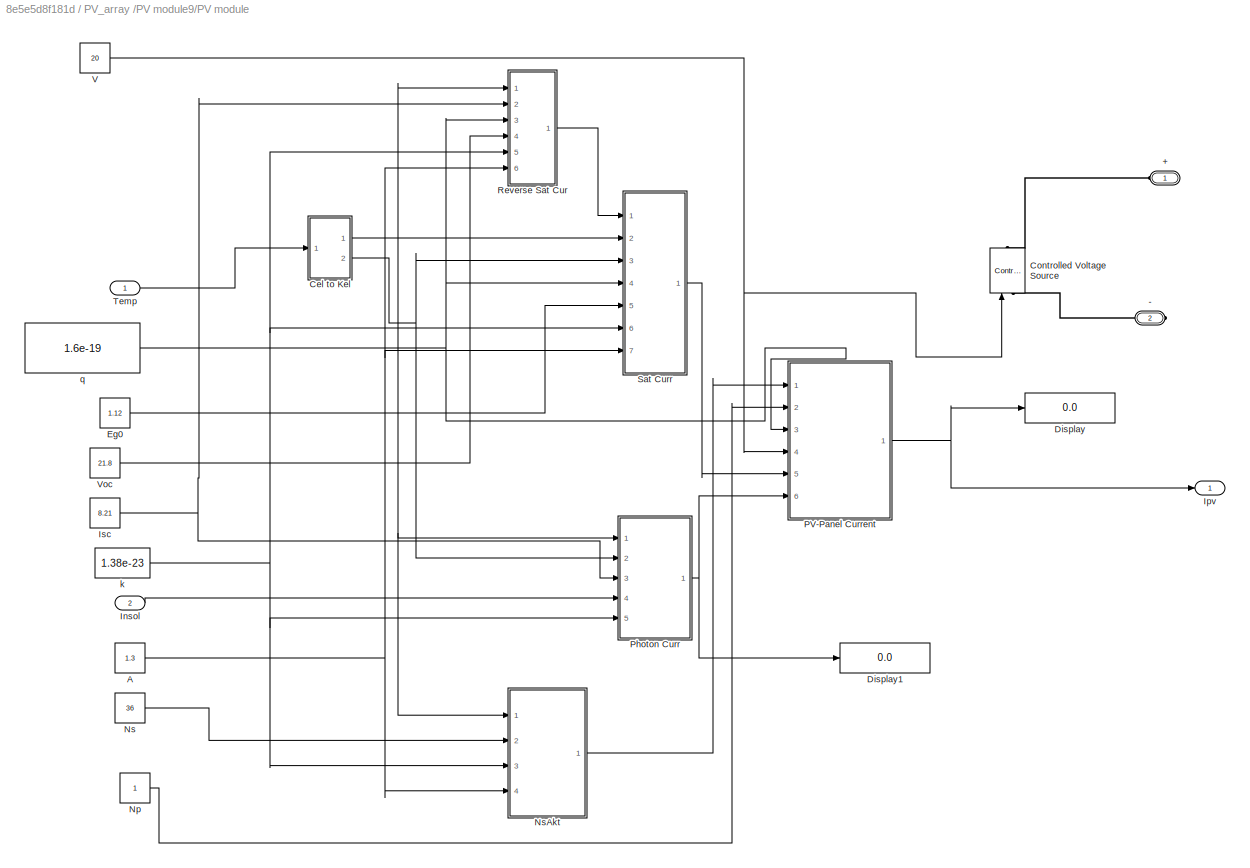
BLOCK [SubSystem] PV_array /PV module9/PV module
  Ports = [2, 1, 0, 0, 0, 1, 1]
  RequestExecContextInheritance = off
BLOCK [PMIOPort] PV_array /PV module9/PV module/+
  Port = 1
  Side = Left
BLOCK [PMIOPort] PV_array /PV module9/PV module/-
  Port = 2
  Side = Right
BLOCK [Constant] PV_array /PV module9/PV module/A
  Value = 1.3
BLOCK [SubSystem] PV_array /PV module9/PV module/Cel to Kel
  Ports = [1, 2]
  RequestExecContextInheritance = off
BLOCK [Sum] PV_array /PV module9/PV module/Cel to Kel/Add
  InputSameDT = off
  OutDataTypeStr = Inherit: Inherit via internal rule
  Ports = [2, 1]
  SaturateOnIntegerOverflow = off
BLOCK [Sum] PV_array /PV module9/PV module/Cel to Kel/Add1
  InputSameDT = off
  OutDataTypeStr = Inherit: Inherit via internal rule
  Ports = [2, 1]
  SaturateOnIntegerOverflow = off
BLOCK [Constant] PV_array /PV module9/PV module/Cel to Kel/Cel to Kel
  Value = 273
BLOCK [Constant] PV_array /PV module9/PV module/Cel to Kel/T(ref ^C)1
  Value = 25
BLOCK [Outport] PV_array /PV module9/PV module/Cel to Kel/Tak 
  IconDisplay = Port number
BLOCK [Inport] PV_array /PV module9/PV module/Cel to Kel/Top 
  IconDisplay = Port number
BLOCK [Outport] PV_array /PV module9/PV module/Cel to Kel/Trk 
  IconDisplay = Port number
  Port = 2
BLOCK [Reference] PV_array /PV module9/PV module/Controlled Voltage Source  REF=powerlib/Electrical
Sources/Controlled Voltage Source
  Amplitude = 0
  Frequency = 0
  Initialize = on
  Measurements = None
  Phase = 0
  Ports = [1, 0, 0, 0, 0, 1, 1]
  SourceBlock = powerlib/Electrical\nSources/Controlled Voltage Source
  SourceType = Controlled Voltage Source
  Source_Type = AC
BLOCK [Display] PV_array /PV module9/PV module/Display
  Decimation = 1
  Ports = [1]
BLOCK [Display] PV_array /PV module9/PV module/Display1
  Decimation = 1
  Ports = [1]
BLOCK [Constant] PV_array /PV module9/PV module/Eg0
  Value = 1.12
BLOCK [Inport] PV_array /PV module9/PV module/Insol
  IconDisplay = Port number
  Port = 2
BLOCK [Outport] PV_array /PV module9/PV module/Ipv
  IconDisplay = Port number
BLOCK [Constant] PV_array /PV module9/PV module/Isc
  Value = 8.21
BLOCK [Constant] PV_array /PV module9/PV module/Np
BLOCK [Constant] PV_array /PV module9/PV module/Ns
  Value = 36
BLOCK [SubSystem] PV_array /PV module9/PV module/NsAkt
  Ports = [4, 1]
  RequestExecContextInheritance = off
BLOCK [Inport] PV_array /PV module9/PV module/NsAkt/A
  IconDisplay = Port number
  Port = 4
BLOCK [Outport] PV_array /PV module9/PV module/NsAkt/Naskt
  IconDisplay = Port number
BLOCK [Inport] PV_array /PV module9/PV module/NsAkt/Ns
  IconDisplay = Port number
  Port = 2
BLOCK [Product] PV_array /PV module9/PV module/NsAkt/Product
  InputSameDT = off
  Inputs = 4
  OutDataTypeStr = Inherit: Inherit via internal rule
  Ports = [4, 1]
  RndMeth = Floor
  SaturateOnIntegerOverflow = off
BLOCK [Inport] PV_array /PV module9/PV module/NsAkt/TaK
  IconDisplay = Port number
BLOCK [Inport] PV_array /PV module9/PV module/NsAkt/k
  IconDisplay = Port number
  Port = 3
BLOCK [SubSystem] PV_array /PV module9/PV module/PV-Panel Current
  Ports = [6, 1]
  RequestExecContextInheritance = off
BLOCK [Display] PV_array /PV module9/PV module/PV-Panel Current/Display
  Decimation = 1
  Ports = [1]
BLOCK [Display] PV_array /PV module9/PV module/PV-Panel Current/Display1
  Decimation = 1
  Ports = [1]
BLOCK [Display] PV_array /PV module9/PV module/PV-Panel Current/Display2
  Decimation = 1
  Ports = [1]
BLOCK [Fcn] PV_array /PV module9/PV module/PV-Panel Current/Fcn
  Expr = u(7)*u(2)-u(6)*u(2)*(exp((u(3)*(u(4)+u(5))/u(1)))-1)
BLOCK [Inport] PV_array /PV module9/PV module/PV-Panel Current/Iph 
  IconDisplay = Port number
  Port = 6
BLOCK [Outport] PV_array /PV module9/PV module/PV-Panel Current/Ipv
  IconDisplay = Port number
BLOCK [Inport] PV_array /PV module9/PV module/PV-Panel Current/Is
  IconDisplay = Port number
  Port = 5
BLOCK [Mux] PV_array /PV module9/PV module/PV-Panel Current/Mux
  DisplayOption = bar
  Inputs = 7
  Ports = [7, 1]
BLOCK [Inport] PV_array /PV module9/PV module/PV-Panel Current/Np
  IconDisplay = Port number
  Port = 2
BLOCK [Inport] PV_array /PV module9/PV module/PV-Panel Current/NsAkT
  IconDisplay = Port number
BLOCK [Gain] PV_array /PV module9/PV module/PV-Panel Current/Rs
  Gain = 0.45
  OutDataTypeStr = Inherit: Inherit via internal rule
  ParamDataTypeStr = Inherit: Inherit via internal rule
  SaturateOnIntegerOverflow = off
BLOCK [Inport] PV_array /PV module9/PV module/PV-Panel Current/Vpv 
  IconDisplay = Port number
  Port = 4
BLOCK [Inport] PV_array /PV module9/PV module/PV-Panel Current/q
  IconDisplay = Port number
  Port = 3
BLOCK [SubSystem] PV_array /PV module9/PV module/Photon Curr 
  Ports = [5, 1]
  RequestExecContextInheritance = off
BLOCK [Constant] PV_array /PV module9/PV module/Photon Curr / 
  Value = 1000
BLOCK [Product] PV_array /PV module9/PV module/Photon Curr /Divide
  InputSameDT = off
  Inputs = */
  OutDataTypeStr = Inherit: Inherit via internal rule
  Ports = [2, 1]
  RndMeth = Floor
  SaturateOnIntegerOverflow = off
BLOCK [Inport] PV_array /PV module9/PV module/Photon Curr /Insolation 
  IconDisplay = Port number
  Port = 4
BLOCK [Outport] PV_array /PV module9/PV module/Photon Curr /Iph 
  IconDisplay = Port number
BLOCK [Inport] PV_array /PV module9/PV module/Photon Curr /Isc,ref
  IconDisplay = Port number
  Port = 3
BLOCK [Inport] PV_array /PV module9/PV module/Photon Curr /Ki
  IconDisplay = Port number
  Port = 5
BLOCK [Product] PV_array /PV module9/PV module/Photon Curr /Product
  InputSameDT = off
  OutDataTypeStr = Inherit: Inherit via internal rule
  Ports = [2, 1]
  RndMeth = Floor
  SaturateOnIntegerOverflow = off
BLOCK [Product] PV_array /PV module9/PV module/Photon Curr /Product1
  InputSameDT = off
  OutDataTypeStr = Inherit: Inherit via internal rule
  Ports = [2, 1]
  RndMeth = Floor
  SaturateOnIntegerOverflow = off
BLOCK [Sum] PV_array /PV module9/PV module/Photon Curr /Sum1
  IconShape = round
  InputSameDT = off
  Inputs = |++
  OutDataTypeStr = Inherit: Inherit via internal rule
  Ports = [2, 1]
  SaturateOnIntegerOverflow = off
BLOCK [Sum] PV_array /PV module9/PV module/Photon Curr /Sum2
  IconShape = round
  InputSameDT = off
  Inputs = |+-
  OutDataTypeStr = Inherit: Inherit via internal rule
  Ports = [2, 1]
  SaturateOnIntegerOverflow = off
BLOCK [Inport] PV_array /PV module9/PV module/Photon Curr /Tak 
  IconDisplay = Port number
BLOCK [Inport] PV_array /PV module9/PV module/Photon Curr /Trk
  IconDisplay = Port number
  Port = 2
BLOCK [SubSystem] PV_array /PV module9/PV module/Reverse Sat Cur 
  Ports = [6, 1]
  RequestExecContextInheritance = off
BLOCK [Inport] PV_array /PV module9/PV module/Reverse Sat Cur /A 
  IconDisplay = Port number
  Port = 6
BLOCK [Constant] PV_array /PV module9/PV module/Reverse Sat Cur /Constant 
BLOCK [Product] PV_array /PV module9/PV module/Reverse Sat Cur /Divide
  InputSameDT = off
  Inputs = **////
  OutDataTypeStr = Inherit: Inherit via internal rule
  Ports = [6, 1]
  RndMeth = Floor
  SaturateOnIntegerOverflow = off
BLOCK [Fcn] PV_array /PV module9/PV module/Reverse Sat Cur /Fcn
  Expr = u(1)/(exp(u(2))-u(3))
BLOCK [Outport] PV_array /PV module9/PV module/Reverse Sat Cur /Irs
  IconDisplay = Port number
BLOCK [Inport] PV_array /PV module9/PV module/Reverse Sat Cur /Isc ref 
  IconDisplay = Port number
  Port = 2
BLOCK [Mux] PV_array /PV module9/PV module/Reverse Sat Cur /Mux
  DisplayOption = bar
  Inputs = 3
  Ports = [3, 1]
BLOCK [Constant] PV_array /PV module9/PV module/Reverse Sat Cur /Ns 
  Value = 36
BLOCK [Inport] PV_array /PV module9/PV module/Reverse Sat Cur /Tak 
  IconDisplay = Port number
BLOCK [Inport] PV_array /PV module9/PV module/Reverse Sat Cur /Voc
  IconDisplay = Port number
  Port = 4
BLOCK [Inport] PV_array /PV module9/PV module/Reverse Sat Cur /k
  IconDisplay = Port number
  Port = 5
BLOCK [Inport] PV_array /PV module9/PV module/Reverse Sat Cur /q
  IconDisplay = Port number
  Port = 3
BLOCK [SubSystem] PV_array /PV module9/PV module/Sat Curr
  Ports = [7, 1]
  RequestExecContextInheritance = off
BLOCK [Constant] PV_array /PV module9/PV module/Sat Curr/ 
BLOCK [Inport] PV_array /PV module9/PV module/Sat Curr/B
  IconDisplay = Port number
  Port = 7
BLOCK [Product] PV_array /PV module9/PV module/Sat Curr/Divide
  InputSameDT = off
  Inputs = */
  OutDataTypeStr = Inherit: Inherit via internal rule
  Ports = [2, 1]
  RndMeth = Floor
  SaturateOnIntegerOverflow = off
BLOCK [Product] PV_array /PV module9/PV module/Sat Curr/Divide1
  InputSameDT = off
  Inputs = ***//
  OutDataTypeStr = Inherit: Inherit via internal rule
  Ports = [5, 1]
  RndMeth = Floor
  SaturateOnIntegerOverflow = off
BLOCK [Product] PV_array /PV module9/PV module/Sat Curr/Divide2
  InputSameDT = off
  Inputs = */
  OutDataTypeStr = Inherit: Inherit via internal rule
  Ports = [2, 1]
  RndMeth = Floor
  SaturateOnIntegerOverflow = off
BLOCK [Product] PV_array /PV module9/PV module/Sat Curr/Divide3
  InputSameDT = off
  Inputs = */
  OutDataTypeStr = Inherit: Inherit via internal rule
  Ports = [2, 1]
  RndMeth = Floor
  SaturateOnIntegerOverflow = off
BLOCK [Inport] PV_array /PV module9/PV module/Sat Curr/Eg0
  IconDisplay = Port number
  Port = 5
BLOCK [Fcn] PV_array /PV module9/PV module/Sat Curr/Fcn
  Expr = (u(1))^3
BLOCK [Inport] PV_array /PV module9/PV module/Sat Curr/Irs
  IconDisplay = Port number
BLOCK [Outport] PV_array /PV module9/PV module/Sat Curr/Is
  IconDisplay = Port number
BLOCK [Math] PV_array /PV module9/PV module/Sat Curr/Math Function
  Ports = [1, 1]
BLOCK [Product] PV_array /PV module9/PV module/Sat Curr/Product1
  InputSameDT = off
  Inputs = 3
  OutDataTypeStr = Inherit: Inherit via internal rule
  Ports = [3, 1]
  RndMeth = Floor
  SaturateOnIntegerOverflow = off
BLOCK [Sum] PV_array /PV module9/PV module/Sat Curr/Sum
  IconShape = round
  InputSameDT = off
  Inputs = |+-
  OutDataTypeStr = Inherit: Inherit via internal rule
  Ports = [2, 1]
  SaturateOnIntegerOverflow = off
BLOCK [Inport] PV_array /PV module9/PV module/Sat Curr/Tak
  IconDisplay = Port number
  Port = 2
BLOCK [Inport] PV_array /PV module9/PV module/Sat Curr/Trk
  IconDisplay = Port number
  Port = 3
BLOCK [Inport] PV_array /PV module9/PV module/Sat Curr/k
  IconDisplay = Port number
  Port = 6
BLOCK [Inport] PV_array /PV module9/PV module/Sat Curr/q
  IconDisplay = Port number
  Port = 4
BLOCK [Inport] PV_array /PV module9/PV module/Temp
  IconDisplay = Port number
BLOCK [Constant] PV_array /PV module9/PV module/V
  Value = 20
BLOCK [Constant] PV_array /PV module9/PV module/Voc
  Value = 21.8
BLOCK [Constant] PV_array /PV module9/PV module/k
  Value = 1.38e-23
BLOCK [Constant] PV_array /PV module9/PV module/q
  Value = 1.6e-19
BLOCK [Constant] PV_array /PV module9/Temperature
  Value = 25
BLOCK [Reference] PV_array /PV module9/VM1  REF=powerlib/Measurements/Voltage Measurement
  OutputType = Complex
  PSBequivalent = 0
  PhasorSimulation = off
  Ports = [0, 1, 0, 0, 0, 2]
  SourceBlock = powerlib/Measurements/Voltage Measurement
  SourceType = Voltage Measurement
BLOCK [Reference] Parallel RLC Branch  REF=powerlib/Elements/Parallel RLC Branch
  AttributesFormatString = \n
  BranchType = R
  Capacitance = 1e-6
  Inductance = 1e-3
  InitialCurrent = 0
  InitialVoltage = 0
  LConnTagsString = a
  Measurements = None
  Ports = [0, 0, 0, 0, 0, 1, 1]
  RConnTagsString = __new0
  Resistance = 1e3
  SetiL0 = off
  Setx0 = off
  SourceBlock = powerlib/Elements/Parallel RLC Branch
  SourceType = Parallel RLC Branch
BLOCK [Reference] Voltage Measurement  REF=powerlib/Measurements/Voltage Measurement
  OutputType = Complex
  PSBequivalent = 0
  PhasorSimulation = off
  Ports = [0, 1, 0, 0, 0, 2]
  SourceBlock = powerlib/Measurements/Voltage Measurement
  SourceType = Voltage Measurement
  UserDataPersistent = on
BLOCK [Reference] powergui  REF=powerlib/powergui
  DisableRonSwitches = off
  DisableSnubberDevices = off
  DisableVfSwitches = off
  DisplayEquations = off
  DisplayStyle = 1
  EnableUseOfTLC = off
  ErrMax = 0.0001
  Frange = [0:2:500]
  FreqAxis = on
  FunctionMessages = off
  HookPort = off
  Interpol = off
  Iterations = 50
  MaxFrequency = 50000
  Pbase = 100e6
  Ports = []
  Priority = 1
  ResistiveCurrentMeasurement = off
  RestoreLinks = warning
  RmsSteady = 1
  SPID = off
  SampleTime = .01
  ShowGrid = off
  SolverType = Tustin
  SourceBlock = powerlib/powergui
  SourceType = PSB option menu block
  StartTime = 0.8
  SwTol = 0
  Ts = 100
  UnitsV = kV
  UnitsW = MW
  UserDataPersistent = on
  Xlog = on
  Ylog = off
  ZoomFFT = off
  buscounter = 0
  cycles = 10
  display = off
  echomessages = off
  frequency = 60
  frequencyindice = 0
  frequencyindicesteady = 1
  fundamental = 50
  methode = off
  save = off
  structure = MLFCDSTAT
  variable = ZData
  x0status = blocks
LINE Current Measurement:1 -> Display2:1
LINE PV_array /Irradiation/Gain:1 -> PV_array /Irradiation/Irradiation:1
LINE PV_array /Irradiation/Signal Builder:1 -> PV_array /Irradiation/Gain:1
NET PV_array /Irradiation:1 -> PV_array /PV module10:1, PV_array /PV module1:1, PV_array /PV module2:1, PV_array /PV module3:1, PV_array /PV module4:1, PV_array /PV module5:1, PV_array /PV module6:1, PV_array /PV module7:1, PV_array /PV module8:1, PV_array /PV module9:1
LINE PV_array /PV module1/Irradiation:1 -> PV_array /PV module1/PV module:2
NET PV_array /PV module1/PV module/A:1 -> PV_array /PV module1/PV module/NsAkt:4, PV_array /PV module1/PV module/Reverse Sat Cur :6, PV_array /PV module1/PV module/Sat Curr:7
LINE PV_array /PV module1/PV module/Cel to Kel/Add1:1 -> PV_array /PV module1/PV module/Cel to Kel/Trk :1
LINE PV_array /PV module1/PV module/Cel to Kel/Add:1 -> PV_array /PV module1/PV module/Cel to Kel/Tak :1
NET PV_array /PV module1/PV module/Cel to Kel/Cel to Kel:1 -> PV_array /PV module1/PV module/Cel to Kel/Add1:2, PV_array /PV module1/PV module/Cel to Kel/Add:2
LINE PV_array /PV module1/PV module/Cel to Kel/T(ref ^C)1:1 -> PV_array /PV module1/PV module/Cel to Kel/Add1:1
LINE PV_array /PV module1/PV module/Cel to Kel/Top :1 -> PV_array /PV module1/PV module/Cel to Kel/Add:1
NET PV_array /PV module1/PV module/Cel to Kel:1 -> PV_array /PV module1/PV module/NsAkt:1, PV_array /PV module1/PV module/Photon Curr :1, PV_array /PV module1/PV module/Reverse Sat Cur :1, PV_array /PV module1/PV module/Sat Curr:2
NET PV_array /PV module1/PV module/Cel to Kel:2 -> PV_array /PV module1/PV module/Photon Curr :2, PV_array /PV module1/PV module/Sat Curr:3
LINE PV_array /PV module1/PV module/Eg0:1 -> PV_array /PV module1/PV module/Sat Curr:5
LINE PV_array /PV module1/PV module/Insol:1 -> PV_array /PV module1/PV module/Photon Curr :4
NET PV_array /PV module1/PV module/Isc:1 -> PV_array /PV module1/PV module/Photon Curr :3, PV_array /PV module1/PV module/Reverse Sat Cur :2
LINE PV_array /PV module1/PV module/Np:1 -> PV_array /PV module1/PV module/PV-Panel Current:5
LINE PV_array /PV module1/PV module/Ns:1 -> PV_array /PV module1/PV module/NsAkt:2
LINE PV_array /PV module1/PV module/NsAkt/A:1 -> PV_array /PV module1/PV module/NsAkt/Product:3
LINE PV_array /PV module1/PV module/NsAkt/Ns:1 -> PV_array /PV module1/PV module/NsAkt/Product:1
LINE PV_array /PV module1/PV module/NsAkt/Product:1 -> PV_array /PV module1/PV module/NsAkt/Naskt:1
LINE PV_array /PV module1/PV module/NsAkt/TaK:1 -> PV_array /PV module1/PV module/NsAkt/Product:4
LINE PV_array /PV module1/PV module/NsAkt/k:1 -> PV_array /PV module1/PV module/NsAkt/Product:2
LINE PV_array /PV module1/PV module/NsAkt:1 -> PV_array /PV module1/PV module/PV-Panel Current:3
NET PV_array /PV module1/PV module/PV-Panel Current/Fcn:1 -> PV_array /PV module1/PV module/PV-Panel Current/Ipv:1, PV_array /PV module1/PV module/PV-Panel Current/Rs:1
LINE PV_array /PV module1/PV module/PV-Panel Current/Iph :1 -> PV_array /PV module1/PV module/PV-Panel Current/Mux:7
LINE PV_array /PV module1/PV module/PV-Panel Current/Is:1 -> PV_array /PV module1/PV module/PV-Panel Current/Mux:6
LINE PV_array /PV module1/PV module/PV-Panel Current/Mux:1 -> PV_array /PV module1/PV module/PV-Panel Current/Fcn:1
LINE PV_array /PV module1/PV module/PV-Panel Current/Np:1 -> PV_array /PV module1/PV module/PV-Panel Current/Mux:2
LINE PV_array /PV module1/PV module/PV-Panel Current/NsAkT:1 -> PV_array /PV module1/PV module/PV-Panel Current/Mux:1
LINE PV_array /PV module1/PV module/PV-Panel Current/Rs:1 -> PV_array /PV module1/PV module/PV-Panel Current/Mux:5
LINE PV_array /PV module1/PV module/PV-Panel Current/Vpv :1 -> PV_array /PV module1/PV module/PV-Panel Current/Mux:4
LINE PV_array /PV module1/PV module/PV-Panel Current/q:1 -> PV_array /PV module1/PV module/PV-Panel Current/Mux:3
LINE PV_array /PV module1/PV module/PV-Panel Current:1 -> PV_array /PV module1/PV module/Display:1
LINE PV_array /PV module1/PV module/Photon Curr / :1 -> PV_array /PV module1/PV module/Photon Curr /Divide:2
LINE PV_array /PV module1/PV module/Photon Curr /Divide:1 -> PV_array /PV module1/PV module/Photon Curr /Product1:1
LINE PV_array /PV module1/PV module/Photon Curr /Insolation :1 -> PV_array /PV module1/PV module/Photon Curr /Divide:1
LINE PV_array /PV module1/PV module/Photon Curr /Isc,ref:1 -> PV_array /PV module1/PV module/Photon Curr /Sum1:2
LINE PV_array /PV module1/PV module/Photon Curr /Ki:1 -> PV_array /PV module1/PV module/Photon Curr /Product:1
LINE PV_array /PV module1/PV module/Photon Curr /Product1:1 -> PV_array /PV module1/PV module/Photon Curr /Iph :1
LINE PV_array /PV module1/PV module/Photon Curr /Product:1 -> PV_array /PV module1/PV module/Photon Curr /Sum1:1
LINE PV_array /PV module1/PV module/Photon Curr /Sum1:1 -> PV_array /PV module1/PV module/Photon Curr /Product1:2
LINE PV_array /PV module1/PV module/Photon Curr /Sum2:1 -> PV_array /PV module1/PV module/Photon Curr /Product:2
LINE PV_array /PV module1/PV module/Photon Curr /Tak :1 -> PV_array /PV module1/PV module/Photon Curr /Sum2:1
LINE PV_array /PV module1/PV module/Photon Curr /Trk:1 -> PV_array /PV module1/PV module/Photon Curr /Sum2:2
LINE PV_array /PV module1/PV module/Photon Curr :1 -> PV_array /PV module1/PV module/PV-Panel Current:4
LINE PV_array /PV module1/PV module/Reverse Sat Cur /A :1 -> PV_array /PV module1/PV module/Reverse Sat Cur /Divide:5
LINE PV_array /PV module1/PV module/Reverse Sat Cur /Constant :1 -> PV_array /PV module1/PV module/Reverse Sat Cur /Mux:3
LINE PV_array /PV module1/PV module/Reverse Sat Cur /Divide:1 -> PV_array /PV module1/PV module/Reverse Sat Cur /Mux:2
LINE PV_array /PV module1/PV module/Reverse Sat Cur /Fcn:1 -> PV_array /PV module1/PV module/Reverse Sat Cur /Irs:1
LINE PV_array /PV module1/PV module/Reverse Sat Cur /Isc ref :1 -> PV_array /PV module1/PV module/Reverse Sat Cur /Mux:1
LINE PV_array /PV module1/PV module/Reverse Sat Cur /Mux:1 -> PV_array /PV module1/PV module/Reverse Sat Cur /Fcn:1
LINE PV_array /PV module1/PV module/Reverse Sat Cur /Ns :1 -> PV_array /PV module1/PV module/Reverse Sat Cur /Divide:4
LINE PV_array /PV module1/PV module/Reverse Sat Cur /Tak :1 -> PV_array /PV module1/PV module/Reverse Sat Cur /Divide:6
LINE PV_array /PV module1/PV module/Reverse Sat Cur /Voc:1 -> PV_array /PV module1/PV module/Reverse Sat Cur /Divide:2
LINE PV_array /PV module1/PV module/Reverse Sat Cur /k:1 -> PV_array /PV module1/PV module/Reverse Sat Cur /Divide:3
LINE PV_array /PV module1/PV module/Reverse Sat Cur /q:1 -> PV_array /PV module1/PV module/Reverse Sat Cur /Divide:1
LINE PV_array /PV module1/PV module/Reverse Sat Cur :1 -> PV_array /PV module1/PV module/Sat Curr:1
NET PV_array /PV module1/PV module/Sat Curr/ :1 -> PV_array /PV module1/PV module/Sat Curr/Divide2:1, PV_array /PV module1/PV module/Sat Curr/Divide3:1
LINE PV_array /PV module1/PV module/Sat Curr/B:1 -> PV_array /PV module1/PV module/Sat Curr/Divide1:5
LINE PV_array /PV module1/PV module/Sat Curr/Divide1:1 -> PV_array /PV module1/PV module/Sat Curr/Math Function:1
LINE PV_array /PV module1/PV module/Sat Curr/Divide2:1 -> PV_array /PV module1/PV module/Sat Curr/Sum:1
LINE PV_array /PV module1/PV module/Sat Curr/Divide3:1 -> PV_array /PV module1/PV module/Sat Curr/Sum:2
LINE PV_array /PV module1/PV module/Sat Curr/Divide:1 -> PV_array /PV module1/PV module/Sat Curr/Fcn:1
LINE PV_array /PV module1/PV module/Sat Curr/Eg0:1 -> PV_array /PV module1/PV module/Sat Curr/Divide1:2
LINE PV_array /PV module1/PV module/Sat Curr/Fcn:1 -> PV_array /PV module1/PV module/Sat Curr/Product1:2
LINE PV_array /PV module1/PV module/Sat Curr/Irs:1 -> PV_array /PV module1/PV module/Sat Curr/Product1:3
LINE PV_array /PV module1/PV module/Sat Curr/Math Function:1 -> PV_array /PV module1/PV module/Sat Curr/Product1:1
LINE PV_array /PV module1/PV module/Sat Curr/Product1:1 -> PV_array /PV module1/PV module/Sat Curr/Is:1
LINE PV_array /PV module1/PV module/Sat Curr/Sum:1 -> PV_array /PV module1/PV module/Sat Curr/Divide1:3
NET PV_array /PV module1/PV module/Sat Curr/Tak:1 -> PV_array /PV module1/PV module/Sat Curr/Divide3:2, PV_array /PV module1/PV module/Sat Curr/Divide:1
NET PV_array /PV module1/PV module/Sat Curr/Trk:1 -> PV_array /PV module1/PV module/Sat Curr/Divide2:2, PV_array /PV module1/PV module/Sat Curr/Divide:2
LINE PV_array /PV module1/PV module/Sat Curr/k:1 -> PV_array /PV module1/PV module/Sat Curr/Divide1:4
LINE PV_array /PV module1/PV module/Sat Curr/q:1 -> PV_array /PV module1/PV module/Sat Curr/Divide1:1
LINE PV_array /PV module1/PV module/Sat Curr:1 -> PV_array /PV module1/PV module/PV-Panel Current:1
LINE PV_array /PV module1/PV module/Temp:1 -> PV_array /PV module1/PV module/Cel to Kel:1
NET PV_array /PV module1/PV module/V:1 -> PV_array /PV module1/PV module/Controlled Voltage Source:1, PV_array /PV module1/PV module/PV-Panel Current:2
LINE PV_array /PV module1/PV module/Voc:1 -> PV_array /PV module1/PV module/Reverse Sat Cur :4
NET PV_array /PV module1/PV module/k:1 -> PV_array /PV module1/PV module/NsAkt:3, PV_array /PV module1/PV module/Photon Curr :5, PV_array /PV module1/PV module/Reverse Sat Cur :5, PV_array /PV module1/PV module/Sat Curr:6
NET PV_array /PV module1/PV module/q:1 -> PV_array /PV module1/PV module/PV-Panel Current:6, PV_array /PV module1/PV module/Reverse Sat Cur :3, PV_array /PV module1/PV module/Sat Curr:4
LINE PV_array /PV module1/Temperature:1 -> PV_array /PV module1/PV module:1
LINE PV_array /PV module1/VM1:1 -> PV_array /PV module1/Display2:1
LINE PV_array /PV module10/Irradiation:1 -> PV_array /PV module10/PV module:2
NET PV_array /PV module10/PV module/A:1 -> PV_array /PV module10/PV module/NsAkt:4, PV_array /PV module10/PV module/Reverse Sat Cur :6, PV_array /PV module10/PV module/Sat Curr:7
LINE PV_array /PV module10/PV module/Cel to Kel/Add1:1 -> PV_array /PV module10/PV module/Cel to Kel/Trk :1
LINE PV_array /PV module10/PV module/Cel to Kel/Add:1 -> PV_array /PV module10/PV module/Cel to Kel/Tak :1
NET PV_array /PV module10/PV module/Cel to Kel/Cel to Kel:1 -> PV_array /PV module10/PV module/Cel to Kel/Add1:2, PV_array /PV module10/PV module/Cel to Kel/Add:2
LINE PV_array /PV module10/PV module/Cel to Kel/T(ref ^C)1:1 -> PV_array /PV module10/PV module/Cel to Kel/Add1:1
LINE PV_array /PV module10/PV module/Cel to Kel/Top :1 -> PV_array /PV module10/PV module/Cel to Kel/Add:1
NET PV_array /PV module10/PV module/Cel to Kel:1 -> PV_array /PV module10/PV module/NsAkt:1, PV_array /PV module10/PV module/Photon Curr :1, PV_array /PV module10/PV module/Reverse Sat Cur :1, PV_array /PV module10/PV module/Sat Curr:2
NET PV_array /PV module10/PV module/Cel to Kel:2 -> PV_array /PV module10/PV module/Photon Curr :2, PV_array /PV module10/PV module/Sat Curr:3
LINE PV_array /PV module10/PV module/Eg0:1 -> PV_array /PV module10/PV module/Sat Curr:5
LINE PV_array /PV module10/PV module/Insol:1 -> PV_array /PV module10/PV module/Photon Curr :4
NET PV_array /PV module10/PV module/Isc:1 -> PV_array /PV module10/PV module/Photon Curr :3, PV_array /PV module10/PV module/Reverse Sat Cur :2
LINE PV_array /PV module10/PV module/Np:1 -> PV_array /PV module10/PV module/PV-Panel Current:5
LINE PV_array /PV module10/PV module/Ns:1 -> PV_array /PV module10/PV module/NsAkt:2
LINE PV_array /PV module10/PV module/NsAkt/A:1 -> PV_array /PV module10/PV module/NsAkt/Product:3
LINE PV_array /PV module10/PV module/NsAkt/Ns:1 -> PV_array /PV module10/PV module/NsAkt/Product:1
LINE PV_array /PV module10/PV module/NsAkt/Product:1 -> PV_array /PV module10/PV module/NsAkt/Naskt:1
LINE PV_array /PV module10/PV module/NsAkt/TaK:1 -> PV_array /PV module10/PV module/NsAkt/Product:4
LINE PV_array /PV module10/PV module/NsAkt/k:1 -> PV_array /PV module10/PV module/NsAkt/Product:2
LINE PV_array /PV module10/PV module/NsAkt:1 -> PV_array /PV module10/PV module/PV-Panel Current:3
NET PV_array /PV module10/PV module/PV-Panel Current/Fcn:1 -> PV_array /PV module10/PV module/PV-Panel Current/Ipv:1, PV_array /PV module10/PV module/PV-Panel Current/Rs:1
LINE PV_array /PV module10/PV module/PV-Panel Current/Iph :1 -> PV_array /PV module10/PV module/PV-Panel Current/Mux:7
LINE PV_array /PV module10/PV module/PV-Panel Current/Is:1 -> PV_array /PV module10/PV module/PV-Panel Current/Mux:6
LINE PV_array /PV module10/PV module/PV-Panel Current/Mux:1 -> PV_array /PV module10/PV module/PV-Panel Current/Fcn:1
LINE PV_array /PV module10/PV module/PV-Panel Current/Np:1 -> PV_array /PV module10/PV module/PV-Panel Current/Mux:2
LINE PV_array /PV module10/PV module/PV-Panel Current/NsAkT:1 -> PV_array /PV module10/PV module/PV-Panel Current/Mux:1
LINE PV_array /PV module10/PV module/PV-Panel Current/Rs:1 -> PV_array /PV module10/PV module/PV-Panel Current/Mux:5
LINE PV_array /PV module10/PV module/PV-Panel Current/Vpv :1 -> PV_array /PV module10/PV module/PV-Panel Current/Mux:4
LINE PV_array /PV module10/PV module/PV-Panel Current/q:1 -> PV_array /PV module10/PV module/PV-Panel Current/Mux:3
LINE PV_array /PV module10/PV module/PV-Panel Current:1 -> PV_array /PV module10/PV module/Display:1
LINE PV_array /PV module10/PV module/Photon Curr / :1 -> PV_array /PV module10/PV module/Photon Curr /Divide:2
LINE PV_array /PV module10/PV module/Photon Curr /Divide:1 -> PV_array /PV module10/PV module/Photon Curr /Product1:1
LINE PV_array /PV module10/PV module/Photon Curr /Insolation :1 -> PV_array /PV module10/PV module/Photon Curr /Divide:1
LINE PV_array /PV module10/PV module/Photon Curr /Isc,ref:1 -> PV_array /PV module10/PV module/Photon Curr /Sum1:2
LINE PV_array /PV module10/PV module/Photon Curr /Ki:1 -> PV_array /PV module10/PV module/Photon Curr /Product:1
LINE PV_array /PV module10/PV module/Photon Curr /Product1:1 -> PV_array /PV module10/PV module/Photon Curr /Iph :1
LINE PV_array /PV module10/PV module/Photon Curr /Product:1 -> PV_array /PV module10/PV module/Photon Curr /Sum1:1
LINE PV_array /PV module10/PV module/Photon Curr /Sum1:1 -> PV_array /PV module10/PV module/Photon Curr /Product1:2
LINE PV_array /PV module10/PV module/Photon Curr /Sum2:1 -> PV_array /PV module10/PV module/Photon Curr /Product:2
LINE PV_array /PV module10/PV module/Photon Curr /Tak :1 -> PV_array /PV module10/PV module/Photon Curr /Sum2:1
LINE PV_array /PV module10/PV module/Photon Curr /Trk:1 -> PV_array /PV module10/PV module/Photon Curr /Sum2:2
LINE PV_array /PV module10/PV module/Photon Curr :1 -> PV_array /PV module10/PV module/PV-Panel Current:4
LINE PV_array /PV module10/PV module/Reverse Sat Cur /A :1 -> PV_array /PV module10/PV module/Reverse Sat Cur /Divide:5
LINE PV_array /PV module10/PV module/Reverse Sat Cur /Constant :1 -> PV_array /PV module10/PV module/Reverse Sat Cur /Mux:3
LINE PV_array /PV module10/PV module/Reverse Sat Cur /Divide:1 -> PV_array /PV module10/PV module/Reverse Sat Cur /Mux:2
LINE PV_array /PV module10/PV module/Reverse Sat Cur /Fcn:1 -> PV_array /PV module10/PV module/Reverse Sat Cur /Irs:1
LINE PV_array /PV module10/PV module/Reverse Sat Cur /Isc ref :1 -> PV_array /PV module10/PV module/Reverse Sat Cur /Mux:1
LINE PV_array /PV module10/PV module/Reverse Sat Cur /Mux:1 -> PV_array /PV module10/PV module/Reverse Sat Cur /Fcn:1
LINE PV_array /PV module10/PV module/Reverse Sat Cur /Ns :1 -> PV_array /PV module10/PV module/Reverse Sat Cur /Divide:4
LINE PV_array /PV module10/PV module/Reverse Sat Cur /Tak :1 -> PV_array /PV module10/PV module/Reverse Sat Cur /Divide:6
LINE PV_array /PV module10/PV module/Reverse Sat Cur /Voc:1 -> PV_array /PV module10/PV module/Reverse Sat Cur /Divide:2
LINE PV_array /PV module10/PV module/Reverse Sat Cur /k:1 -> PV_array /PV module10/PV module/Reverse Sat Cur /Divide:3
LINE PV_array /PV module10/PV module/Reverse Sat Cur /q:1 -> PV_array /PV module10/PV module/Reverse Sat Cur /Divide:1
LINE PV_array /PV module10/PV module/Reverse Sat Cur :1 -> PV_array /PV module10/PV module/Sat Curr:1
NET PV_array /PV module10/PV module/Sat Curr/ :1 -> PV_array /PV module10/PV module/Sat Curr/Divide2:1, PV_array /PV module10/PV module/Sat Curr/Divide3:1
LINE PV_array /PV module10/PV module/Sat Curr/B:1 -> PV_array /PV module10/PV module/Sat Curr/Divide1:5
LINE PV_array /PV module10/PV module/Sat Curr/Divide1:1 -> PV_array /PV module10/PV module/Sat Curr/Math Function:1
LINE PV_array /PV module10/PV module/Sat Curr/Divide2:1 -> PV_array /PV module10/PV module/Sat Curr/Sum:1
LINE PV_array /PV module10/PV module/Sat Curr/Divide3:1 -> PV_array /PV module10/PV module/Sat Curr/Sum:2
LINE PV_array /PV module10/PV module/Sat Curr/Divide:1 -> PV_array /PV module10/PV module/Sat Curr/Fcn:1
LINE PV_array /PV module10/PV module/Sat Curr/Eg0:1 -> PV_array /PV module10/PV module/Sat Curr/Divide1:2
LINE PV_array /PV module10/PV module/Sat Curr/Fcn:1 -> PV_array /PV module10/PV module/Sat Curr/Product1:2
LINE PV_array /PV module10/PV module/Sat Curr/Irs:1 -> PV_array /PV module10/PV module/Sat Curr/Product1:3
LINE PV_array /PV module10/PV module/Sat Curr/Math Function:1 -> PV_array /PV module10/PV module/Sat Curr/Product1:1
LINE PV_array /PV module10/PV module/Sat Curr/Product1:1 -> PV_array /PV module10/PV module/Sat Curr/Is:1
LINE PV_array /PV module10/PV module/Sat Curr/Sum:1 -> PV_array /PV module10/PV module/Sat Curr/Divide1:3
NET PV_array /PV module10/PV module/Sat Curr/Tak:1 -> PV_array /PV module10/PV module/Sat Curr/Divide3:2, PV_array /PV module10/PV module/Sat Curr/Divide:1
NET PV_array /PV module10/PV module/Sat Curr/Trk:1 -> PV_array /PV module10/PV module/Sat Curr/Divide2:2, PV_array /PV module10/PV module/Sat Curr/Divide:2
LINE PV_array /PV module10/PV module/Sat Curr/k:1 -> PV_array /PV module10/PV module/Sat Curr/Divide1:4
LINE PV_array /PV module10/PV module/Sat Curr/q:1 -> PV_array /PV module10/PV module/Sat Curr/Divide1:1
LINE PV_array /PV module10/PV module/Sat Curr:1 -> PV_array /PV module10/PV module/PV-Panel Current:1
LINE PV_array /PV module10/PV module/Temp:1 -> PV_array /PV module10/PV module/Cel to Kel:1
NET PV_array /PV module10/PV module/V:1 -> PV_array /PV module10/PV module/Controlled Voltage Source:1, PV_array /PV module10/PV module/PV-Panel Current:2
LINE PV_array /PV module10/PV module/Voc:1 -> PV_array /PV module10/PV module/Reverse Sat Cur :4
NET PV_array /PV module10/PV module/k:1 -> PV_array /PV module10/PV module/NsAkt:3, PV_array /PV module10/PV module/Photon Curr :5, PV_array /PV module10/PV module/Reverse Sat Cur :5, PV_array /PV module10/PV module/Sat Curr:6
NET PV_array /PV module10/PV module/q:1 -> PV_array /PV module10/PV module/PV-Panel Current:6, PV_array /PV module10/PV module/Reverse Sat Cur :3, PV_array /PV module10/PV module/Sat Curr:4
LINE PV_array /PV module10/Temperature:1 -> PV_array /PV module10/PV module:1
LINE PV_array /PV module10/VM1:1 -> PV_array /PV module10/Display2:1
LINE PV_array /PV module2/Irradiation:1 -> PV_array /PV module2/PV module:2
NET PV_array /PV module2/PV module/A:1 -> PV_array /PV module2/PV module/NsAkt:4, PV_array /PV module2/PV module/Reverse Sat Cur :6, PV_array /PV module2/PV module/Sat Curr:7
LINE PV_array /PV module2/PV module/Cel to Kel/Add1:1 -> PV_array /PV module2/PV module/Cel to Kel/Trk :1
LINE PV_array /PV module2/PV module/Cel to Kel/Add:1 -> PV_array /PV module2/PV module/Cel to Kel/Tak :1
NET PV_array /PV module2/PV module/Cel to Kel/Cel to Kel:1 -> PV_array /PV module2/PV module/Cel to Kel/Add1:2, PV_array /PV module2/PV module/Cel to Kel/Add:2
LINE PV_array /PV module2/PV module/Cel to Kel/T(ref ^C)1:1 -> PV_array /PV module2/PV module/Cel to Kel/Add1:1
LINE PV_array /PV module2/PV module/Cel to Kel/Top :1 -> PV_array /PV module2/PV module/Cel to Kel/Add:1
NET PV_array /PV module2/PV module/Cel to Kel:1 -> PV_array /PV module2/PV module/NsAkt:1, PV_array /PV module2/PV module/Photon Curr :1, PV_array /PV module2/PV module/Reverse Sat Cur :1, PV_array /PV module2/PV module/Sat Curr:2
NET PV_array /PV module2/PV module/Cel to Kel:2 -> PV_array /PV module2/PV module/Photon Curr :2, PV_array /PV module2/PV module/Sat Curr:3
LINE PV_array /PV module2/PV module/Eg0:1 -> PV_array /PV module2/PV module/Sat Curr:5
LINE PV_array /PV module2/PV module/Insol:1 -> PV_array /PV module2/PV module/Photon Curr :4
NET PV_array /PV module2/PV module/Isc:1 -> PV_array /PV module2/PV module/Photon Curr :3, PV_array /PV module2/PV module/Reverse Sat Cur :2
LINE PV_array /PV module2/PV module/Np:1 -> PV_array /PV module2/PV module/PV-Panel Current:5
LINE PV_array /PV module2/PV module/Ns:1 -> PV_array /PV module2/PV module/NsAkt:2
LINE PV_array /PV module2/PV module/NsAkt/A:1 -> PV_array /PV module2/PV module/NsAkt/Product:3
LINE PV_array /PV module2/PV module/NsAkt/Ns:1 -> PV_array /PV module2/PV module/NsAkt/Product:1
LINE PV_array /PV module2/PV module/NsAkt/Product:1 -> PV_array /PV module2/PV module/NsAkt/Naskt:1
LINE PV_array /PV module2/PV module/NsAkt/TaK:1 -> PV_array /PV module2/PV module/NsAkt/Product:4
LINE PV_array /PV module2/PV module/NsAkt/k:1 -> PV_array /PV module2/PV module/NsAkt/Product:2
LINE PV_array /PV module2/PV module/NsAkt:1 -> PV_array /PV module2/PV module/PV-Panel Current:3
NET PV_array /PV module2/PV module/PV-Panel Current/Fcn:1 -> PV_array /PV module2/PV module/PV-Panel Current/Ipv:1, PV_array /PV module2/PV module/PV-Panel Current/Rs:1
LINE PV_array /PV module2/PV module/PV-Panel Current/Iph :1 -> PV_array /PV module2/PV module/PV-Panel Current/Mux:7
LINE PV_array /PV module2/PV module/PV-Panel Current/Is:1 -> PV_array /PV module2/PV module/PV-Panel Current/Mux:6
LINE PV_array /PV module2/PV module/PV-Panel Current/Mux:1 -> PV_array /PV module2/PV module/PV-Panel Current/Fcn:1
LINE PV_array /PV module2/PV module/PV-Panel Current/Np:1 -> PV_array /PV module2/PV module/PV-Panel Current/Mux:2
LINE PV_array /PV module2/PV module/PV-Panel Current/NsAkT:1 -> PV_array /PV module2/PV module/PV-Panel Current/Mux:1
LINE PV_array /PV module2/PV module/PV-Panel Current/Rs:1 -> PV_array /PV module2/PV module/PV-Panel Current/Mux:5
LINE PV_array /PV module2/PV module/PV-Panel Current/Vpv :1 -> PV_array /PV module2/PV module/PV-Panel Current/Mux:4
LINE PV_array /PV module2/PV module/PV-Panel Current/q:1 -> PV_array /PV module2/PV module/PV-Panel Current/Mux:3
LINE PV_array /PV module2/PV module/PV-Panel Current:1 -> PV_array /PV module2/PV module/Display:1
LINE PV_array /PV module2/PV module/Photon Curr / :1 -> PV_array /PV module2/PV module/Photon Curr /Divide:2
LINE PV_array /PV module2/PV module/Photon Curr /Divide:1 -> PV_array /PV module2/PV module/Photon Curr /Product1:1
LINE PV_array /PV module2/PV module/Photon Curr /Insolation :1 -> PV_array /PV module2/PV module/Photon Curr /Divide:1
LINE PV_array /PV module2/PV module/Photon Curr /Isc,ref:1 -> PV_array /PV module2/PV module/Photon Curr /Sum1:2
LINE PV_array /PV module2/PV module/Photon Curr /Ki:1 -> PV_array /PV module2/PV module/Photon Curr /Product:1
LINE PV_array /PV module2/PV module/Photon Curr /Product1:1 -> PV_array /PV module2/PV module/Photon Curr /Iph :1
LINE PV_array /PV module2/PV module/Photon Curr /Product:1 -> PV_array /PV module2/PV module/Photon Curr /Sum1:1
LINE PV_array /PV module2/PV module/Photon Curr /Sum1:1 -> PV_array /PV module2/PV module/Photon Curr /Product1:2
LINE PV_array /PV module2/PV module/Photon Curr /Sum2:1 -> PV_array /PV module2/PV module/Photon Curr /Product:2
LINE PV_array /PV module2/PV module/Photon Curr /Tak :1 -> PV_array /PV module2/PV module/Photon Curr /Sum2:1
LINE PV_array /PV module2/PV module/Photon Curr /Trk:1 -> PV_array /PV module2/PV module/Photon Curr /Sum2:2
LINE PV_array /PV module2/PV module/Photon Curr :1 -> PV_array /PV module2/PV module/PV-Panel Current:4
LINE PV_array /PV module2/PV module/Reverse Sat Cur /A :1 -> PV_array /PV module2/PV module/Reverse Sat Cur /Divide:5
LINE PV_array /PV module2/PV module/Reverse Sat Cur /Constant :1 -> PV_array /PV module2/PV module/Reverse Sat Cur /Mux:3
LINE PV_array /PV module2/PV module/Reverse Sat Cur /Divide:1 -> PV_array /PV module2/PV module/Reverse Sat Cur /Mux:2
LINE PV_array /PV module2/PV module/Reverse Sat Cur /Fcn:1 -> PV_array /PV module2/PV module/Reverse Sat Cur /Irs:1
LINE PV_array /PV module2/PV module/Reverse Sat Cur /Isc ref :1 -> PV_array /PV module2/PV module/Reverse Sat Cur /Mux:1
LINE PV_array /PV module2/PV module/Reverse Sat Cur /Mux:1 -> PV_array /PV module2/PV module/Reverse Sat Cur /Fcn:1
LINE PV_array /PV module2/PV module/Reverse Sat Cur /Ns :1 -> PV_array /PV module2/PV module/Reverse Sat Cur /Divide:4
LINE PV_array /PV module2/PV module/Reverse Sat Cur /Tak :1 -> PV_array /PV module2/PV module/Reverse Sat Cur /Divide:6
LINE PV_array /PV module2/PV module/Reverse Sat Cur /Voc:1 -> PV_array /PV module2/PV module/Reverse Sat Cur /Divide:2
LINE PV_array /PV module2/PV module/Reverse Sat Cur /k:1 -> PV_array /PV module2/PV module/Reverse Sat Cur /Divide:3
LINE PV_array /PV module2/PV module/Reverse Sat Cur /q:1 -> PV_array /PV module2/PV module/Reverse Sat Cur /Divide:1
LINE PV_array /PV module2/PV module/Reverse Sat Cur :1 -> PV_array /PV module2/PV module/Sat Curr:1
NET PV_array /PV module2/PV module/Sat Curr/ :1 -> PV_array /PV module2/PV module/Sat Curr/Divide2:1, PV_array /PV module2/PV module/Sat Curr/Divide3:1
LINE PV_array /PV module2/PV module/Sat Curr/B:1 -> PV_array /PV module2/PV module/Sat Curr/Divide1:5
LINE PV_array /PV module2/PV module/Sat Curr/Divide1:1 -> PV_array /PV module2/PV module/Sat Curr/Math Function:1
LINE PV_array /PV module2/PV module/Sat Curr/Divide2:1 -> PV_array /PV module2/PV module/Sat Curr/Sum:1
LINE PV_array /PV module2/PV module/Sat Curr/Divide3:1 -> PV_array /PV module2/PV module/Sat Curr/Sum:2
LINE PV_array /PV module2/PV module/Sat Curr/Divide:1 -> PV_array /PV module2/PV module/Sat Curr/Fcn:1
LINE PV_array /PV module2/PV module/Sat Curr/Eg0:1 -> PV_array /PV module2/PV module/Sat Curr/Divide1:2
LINE PV_array /PV module2/PV module/Sat Curr/Fcn:1 -> PV_array /PV module2/PV module/Sat Curr/Product1:2
LINE PV_array /PV module2/PV module/Sat Curr/Irs:1 -> PV_array /PV module2/PV module/Sat Curr/Product1:3
LINE PV_array /PV module2/PV module/Sat Curr/Math Function:1 -> PV_array /PV module2/PV module/Sat Curr/Product1:1
LINE PV_array /PV module2/PV module/Sat Curr/Product1:1 -> PV_array /PV module2/PV module/Sat Curr/Is:1
LINE PV_array /PV module2/PV module/Sat Curr/Sum:1 -> PV_array /PV module2/PV module/Sat Curr/Divide1:3
NET PV_array /PV module2/PV module/Sat Curr/Tak:1 -> PV_array /PV module2/PV module/Sat Curr/Divide3:2, PV_array /PV module2/PV module/Sat Curr/Divide:1
NET PV_array /PV module2/PV module/Sat Curr/Trk:1 -> PV_array /PV module2/PV module/Sat Curr/Divide2:2, PV_array /PV module2/PV module/Sat Curr/Divide:2
LINE PV_array /PV module2/PV module/Sat Curr/k:1 -> PV_array /PV module2/PV module/Sat Curr/Divide1:4
LINE PV_array /PV module2/PV module/Sat Curr/q:1 -> PV_array /PV module2/PV module/Sat Curr/Divide1:1
LINE PV_array /PV module2/PV module/Sat Curr:1 -> PV_array /PV module2/PV module/PV-Panel Current:1
LINE PV_array /PV module2/PV module/Temp:1 -> PV_array /PV module2/PV module/Cel to Kel:1
NET PV_array /PV module2/PV module/V:1 -> PV_array /PV module2/PV module/Controlled Voltage Source:1, PV_array /PV module2/PV module/PV-Panel Current:2
LINE PV_array /PV module2/PV module/Voc:1 -> PV_array /PV module2/PV module/Reverse Sat Cur :4
NET PV_array /PV module2/PV module/k:1 -> PV_array /PV module2/PV module/NsAkt:3, PV_array /PV module2/PV module/Photon Curr :5, PV_array /PV module2/PV module/Reverse Sat Cur :5, PV_array /PV module2/PV module/Sat Curr:6
NET PV_array /PV module2/PV module/q:1 -> PV_array /PV module2/PV module/PV-Panel Current:6, PV_array /PV module2/PV module/Reverse Sat Cur :3, PV_array /PV module2/PV module/Sat Curr:4
LINE PV_array /PV module2/Temperature:1 -> PV_array /PV module2/PV module:1
LINE PV_array /PV module2/VM1:1 -> PV_array /PV module2/Display2:1
LINE PV_array /PV module3/Irradiation:1 -> PV_array /PV module3/PV module:2
NET PV_array /PV module3/PV module/A:1 -> PV_array /PV module3/PV module/NsAkt:4, PV_array /PV module3/PV module/Reverse Sat Cur :6, PV_array /PV module3/PV module/Sat Curr:7
LINE PV_array /PV module3/PV module/Cel to Kel/Add1:1 -> PV_array /PV module3/PV module/Cel to Kel/Trk :1
LINE PV_array /PV module3/PV module/Cel to Kel/Add:1 -> PV_array /PV module3/PV module/Cel to Kel/Tak :1
NET PV_array /PV module3/PV module/Cel to Kel/Cel to Kel:1 -> PV_array /PV module3/PV module/Cel to Kel/Add1:2, PV_array /PV module3/PV module/Cel to Kel/Add:2
LINE PV_array /PV module3/PV module/Cel to Kel/T(ref ^C)1:1 -> PV_array /PV module3/PV module/Cel to Kel/Add1:1
LINE PV_array /PV module3/PV module/Cel to Kel/Top :1 -> PV_array /PV module3/PV module/Cel to Kel/Add:1
NET PV_array /PV module3/PV module/Cel to Kel:1 -> PV_array /PV module3/PV module/NsAkt:1, PV_array /PV module3/PV module/Photon Curr :1, PV_array /PV module3/PV module/Reverse Sat Cur :1, PV_array /PV module3/PV module/Sat Curr:2
NET PV_array /PV module3/PV module/Cel to Kel:2 -> PV_array /PV module3/PV module/Photon Curr :2, PV_array /PV module3/PV module/Sat Curr:3
LINE PV_array /PV module3/PV module/Eg0:1 -> PV_array /PV module3/PV module/Sat Curr:5
LINE PV_array /PV module3/PV module/Insol:1 -> PV_array /PV module3/PV module/Photon Curr :4
NET PV_array /PV module3/PV module/Isc:1 -> PV_array /PV module3/PV module/Photon Curr :3, PV_array /PV module3/PV module/Reverse Sat Cur :2
LINE PV_array /PV module3/PV module/Np:1 -> PV_array /PV module3/PV module/PV-Panel Current:5
LINE PV_array /PV module3/PV module/Ns:1 -> PV_array /PV module3/PV module/NsAkt:2
LINE PV_array /PV module3/PV module/NsAkt/A:1 -> PV_array /PV module3/PV module/NsAkt/Product:3
LINE PV_array /PV module3/PV module/NsAkt/Ns:1 -> PV_array /PV module3/PV module/NsAkt/Product:1
LINE PV_array /PV module3/PV module/NsAkt/Product:1 -> PV_array /PV module3/PV module/NsAkt/Naskt:1
LINE PV_array /PV module3/PV module/NsAkt/TaK:1 -> PV_array /PV module3/PV module/NsAkt/Product:4
LINE PV_array /PV module3/PV module/NsAkt/k:1 -> PV_array /PV module3/PV module/NsAkt/Product:2
LINE PV_array /PV module3/PV module/NsAkt:1 -> PV_array /PV module3/PV module/PV-Panel Current:3
NET PV_array /PV module3/PV module/PV-Panel Current/Fcn:1 -> PV_array /PV module3/PV module/PV-Panel Current/Ipv:1, PV_array /PV module3/PV module/PV-Panel Current/Rs:1
LINE PV_array /PV module3/PV module/PV-Panel Current/Iph :1 -> PV_array /PV module3/PV module/PV-Panel Current/Mux:7
LINE PV_array /PV module3/PV module/PV-Panel Current/Is:1 -> PV_array /PV module3/PV module/PV-Panel Current/Mux:6
LINE PV_array /PV module3/PV module/PV-Panel Current/Mux:1 -> PV_array /PV module3/PV module/PV-Panel Current/Fcn:1
LINE PV_array /PV module3/PV module/PV-Panel Current/Np:1 -> PV_array /PV module3/PV module/PV-Panel Current/Mux:2
LINE PV_array /PV module3/PV module/PV-Panel Current/NsAkT:1 -> PV_array /PV module3/PV module/PV-Panel Current/Mux:1
LINE PV_array /PV module3/PV module/PV-Panel Current/Rs:1 -> PV_array /PV module3/PV module/PV-Panel Current/Mux:5
LINE PV_array /PV module3/PV module/PV-Panel Current/Vpv :1 -> PV_array /PV module3/PV module/PV-Panel Current/Mux:4
LINE PV_array /PV module3/PV module/PV-Panel Current/q:1 -> PV_array /PV module3/PV module/PV-Panel Current/Mux:3
LINE PV_array /PV module3/PV module/PV-Panel Current:1 -> PV_array /PV module3/PV module/Display:1
LINE PV_array /PV module3/PV module/Photon Curr / :1 -> PV_array /PV module3/PV module/Photon Curr /Divide:2
LINE PV_array /PV module3/PV module/Photon Curr /Divide:1 -> PV_array /PV module3/PV module/Photon Curr /Product1:1
LINE PV_array /PV module3/PV module/Photon Curr /Insolation :1 -> PV_array /PV module3/PV module/Photon Curr /Divide:1
LINE PV_array /PV module3/PV module/Photon Curr /Isc,ref:1 -> PV_array /PV module3/PV module/Photon Curr /Sum1:2
LINE PV_array /PV module3/PV module/Photon Curr /Ki:1 -> PV_array /PV module3/PV module/Photon Curr /Product:1
LINE PV_array /PV module3/PV module/Photon Curr /Product1:1 -> PV_array /PV module3/PV module/Photon Curr /Iph :1
LINE PV_array /PV module3/PV module/Photon Curr /Product:1 -> PV_array /PV module3/PV module/Photon Curr /Sum1:1
LINE PV_array /PV module3/PV module/Photon Curr /Sum1:1 -> PV_array /PV module3/PV module/Photon Curr /Product1:2
LINE PV_array /PV module3/PV module/Photon Curr /Sum2:1 -> PV_array /PV module3/PV module/Photon Curr /Product:2
LINE PV_array /PV module3/PV module/Photon Curr /Tak :1 -> PV_array /PV module3/PV module/Photon Curr /Sum2:1
LINE PV_array /PV module3/PV module/Photon Curr /Trk:1 -> PV_array /PV module3/PV module/Photon Curr /Sum2:2
LINE PV_array /PV module3/PV module/Photon Curr :1 -> PV_array /PV module3/PV module/PV-Panel Current:4
LINE PV_array /PV module3/PV module/Reverse Sat Cur /A :1 -> PV_array /PV module3/PV module/Reverse Sat Cur /Divide:5
LINE PV_array /PV module3/PV module/Reverse Sat Cur /Constant :1 -> PV_array /PV module3/PV module/Reverse Sat Cur /Mux:3
LINE PV_array /PV module3/PV module/Reverse Sat Cur /Divide:1 -> PV_array /PV module3/PV module/Reverse Sat Cur /Mux:2
LINE PV_array /PV module3/PV module/Reverse Sat Cur /Fcn:1 -> PV_array /PV module3/PV module/Reverse Sat Cur /Irs:1
LINE PV_array /PV module3/PV module/Reverse Sat Cur /Isc ref :1 -> PV_array /PV module3/PV module/Reverse Sat Cur /Mux:1
LINE PV_array /PV module3/PV module/Reverse Sat Cur /Mux:1 -> PV_array /PV module3/PV module/Reverse Sat Cur /Fcn:1
LINE PV_array /PV module3/PV module/Reverse Sat Cur /Ns :1 -> PV_array /PV module3/PV module/Reverse Sat Cur /Divide:4
LINE PV_array /PV module3/PV module/Reverse Sat Cur /Tak :1 -> PV_array /PV module3/PV module/Reverse Sat Cur /Divide:6
LINE PV_array /PV module3/PV module/Reverse Sat Cur /Voc:1 -> PV_array /PV module3/PV module/Reverse Sat Cur /Divide:2
LINE PV_array /PV module3/PV module/Reverse Sat Cur /k:1 -> PV_array /PV module3/PV module/Reverse Sat Cur /Divide:3
LINE PV_array /PV module3/PV module/Reverse Sat Cur /q:1 -> PV_array /PV module3/PV module/Reverse Sat Cur /Divide:1
LINE PV_array /PV module3/PV module/Reverse Sat Cur :1 -> PV_array /PV module3/PV module/Sat Curr:1
NET PV_array /PV module3/PV module/Sat Curr/ :1 -> PV_array /PV module3/PV module/Sat Curr/Divide2:1, PV_array /PV module3/PV module/Sat Curr/Divide3:1
LINE PV_array /PV module3/PV module/Sat Curr/B:1 -> PV_array /PV module3/PV module/Sat Curr/Divide1:5
LINE PV_array /PV module3/PV module/Sat Curr/Divide1:1 -> PV_array /PV module3/PV module/Sat Curr/Math Function:1
LINE PV_array /PV module3/PV module/Sat Curr/Divide2:1 -> PV_array /PV module3/PV module/Sat Curr/Sum:1
LINE PV_array /PV module3/PV module/Sat Curr/Divide3:1 -> PV_array /PV module3/PV module/Sat Curr/Sum:2
LINE PV_array /PV module3/PV module/Sat Curr/Divide:1 -> PV_array /PV module3/PV module/Sat Curr/Fcn:1
LINE PV_array /PV module3/PV module/Sat Curr/Eg0:1 -> PV_array /PV module3/PV module/Sat Curr/Divide1:2
LINE PV_array /PV module3/PV module/Sat Curr/Fcn:1 -> PV_array /PV module3/PV module/Sat Curr/Product1:2
LINE PV_array /PV module3/PV module/Sat Curr/Irs:1 -> PV_array /PV module3/PV module/Sat Curr/Product1:3
LINE PV_array /PV module3/PV module/Sat Curr/Math Function:1 -> PV_array /PV module3/PV module/Sat Curr/Product1:1
LINE PV_array /PV module3/PV module/Sat Curr/Product1:1 -> PV_array /PV module3/PV module/Sat Curr/Is:1
LINE PV_array /PV module3/PV module/Sat Curr/Sum:1 -> PV_array /PV module3/PV module/Sat Curr/Divide1:3
NET PV_array /PV module3/PV module/Sat Curr/Tak:1 -> PV_array /PV module3/PV module/Sat Curr/Divide3:2, PV_array /PV module3/PV module/Sat Curr/Divide:1
NET PV_array /PV module3/PV module/Sat Curr/Trk:1 -> PV_array /PV module3/PV module/Sat Curr/Divide2:2, PV_array /PV module3/PV module/Sat Curr/Divide:2
LINE PV_array /PV module3/PV module/Sat Curr/k:1 -> PV_array /PV module3/PV module/Sat Curr/Divide1:4
LINE PV_array /PV module3/PV module/Sat Curr/q:1 -> PV_array /PV module3/PV module/Sat Curr/Divide1:1
LINE PV_array /PV module3/PV module/Sat Curr:1 -> PV_array /PV module3/PV module/PV-Panel Current:1
LINE PV_array /PV module3/PV module/Temp:1 -> PV_array /PV module3/PV module/Cel to Kel:1
NET PV_array /PV module3/PV module/V:1 -> PV_array /PV module3/PV module/Controlled Voltage Source:1, PV_array /PV module3/PV module/PV-Panel Current:2
LINE PV_array /PV module3/PV module/Voc:1 -> PV_array /PV module3/PV module/Reverse Sat Cur :4
NET PV_array /PV module3/PV module/k:1 -> PV_array /PV module3/PV module/NsAkt:3, PV_array /PV module3/PV module/Photon Curr :5, PV_array /PV module3/PV module/Reverse Sat Cur :5, PV_array /PV module3/PV module/Sat Curr:6
NET PV_array /PV module3/PV module/q:1 -> PV_array /PV module3/PV module/PV-Panel Current:6, PV_array /PV module3/PV module/Reverse Sat Cur :3, PV_array /PV module3/PV module/Sat Curr:4
LINE PV_array /PV module3/Temperature:1 -> PV_array /PV module3/PV module:1
LINE PV_array /PV module3/VM1:1 -> PV_array /PV module3/Display2:1
LINE PV_array /PV module4/Irradiation:1 -> PV_array /PV module4/PV module:2
NET PV_array /PV module4/PV module/A:1 -> PV_array /PV module4/PV module/NsAkt:4, PV_array /PV module4/PV module/Reverse Sat Cur :6, PV_array /PV module4/PV module/Sat Curr:7
LINE PV_array /PV module4/PV module/Cel to Kel/Add1:1 -> PV_array /PV module4/PV module/Cel to Kel/Trk :1
LINE PV_array /PV module4/PV module/Cel to Kel/Add:1 -> PV_array /PV module4/PV module/Cel to Kel/Tak :1
NET PV_array /PV module4/PV module/Cel to Kel/Cel to Kel:1 -> PV_array /PV module4/PV module/Cel to Kel/Add1:2, PV_array /PV module4/PV module/Cel to Kel/Add:2
LINE PV_array /PV module4/PV module/Cel to Kel/T(ref ^C)1:1 -> PV_array /PV module4/PV module/Cel to Kel/Add1:1
LINE PV_array /PV module4/PV module/Cel to Kel/Top :1 -> PV_array /PV module4/PV module/Cel to Kel/Add:1
NET PV_array /PV module4/PV module/Cel to Kel:1 -> PV_array /PV module4/PV module/NsAkt:1, PV_array /PV module4/PV module/Photon Curr :1, PV_array /PV module4/PV module/Reverse Sat Cur :1, PV_array /PV module4/PV module/Sat Curr:2
NET PV_array /PV module4/PV module/Cel to Kel:2 -> PV_array /PV module4/PV module/Photon Curr :2, PV_array /PV module4/PV module/Sat Curr:3
LINE PV_array /PV module4/PV module/Eg0:1 -> PV_array /PV module4/PV module/Sat Curr:5
LINE PV_array /PV module4/PV module/Insol:1 -> PV_array /PV module4/PV module/Photon Curr :4
NET PV_array /PV module4/PV module/Isc:1 -> PV_array /PV module4/PV module/Photon Curr :3, PV_array /PV module4/PV module/Reverse Sat Cur :2
LINE PV_array /PV module4/PV module/Np:1 -> PV_array /PV module4/PV module/PV-Panel Current:5
LINE PV_array /PV module4/PV module/Ns:1 -> PV_array /PV module4/PV module/NsAkt:2
LINE PV_array /PV module4/PV module/NsAkt/A:1 -> PV_array /PV module4/PV module/NsAkt/Product:3
LINE PV_array /PV module4/PV module/NsAkt/Ns:1 -> PV_array /PV module4/PV module/NsAkt/Product:1
LINE PV_array /PV module4/PV module/NsAkt/Product:1 -> PV_array /PV module4/PV module/NsAkt/Naskt:1
LINE PV_array /PV module4/PV module/NsAkt/TaK:1 -> PV_array /PV module4/PV module/NsAkt/Product:4
LINE PV_array /PV module4/PV module/NsAkt/k:1 -> PV_array /PV module4/PV module/NsAkt/Product:2
LINE PV_array /PV module4/PV module/NsAkt:1 -> PV_array /PV module4/PV module/PV-Panel Current:3
NET PV_array /PV module4/PV module/PV-Panel Current/Fcn:1 -> PV_array /PV module4/PV module/PV-Panel Current/Ipv:1, PV_array /PV module4/PV module/PV-Panel Current/Rs:1
LINE PV_array /PV module4/PV module/PV-Panel Current/Iph :1 -> PV_array /PV module4/PV module/PV-Panel Current/Mux:7
LINE PV_array /PV module4/PV module/PV-Panel Current/Is:1 -> PV_array /PV module4/PV module/PV-Panel Current/Mux:6
LINE PV_array /PV module4/PV module/PV-Panel Current/Mux:1 -> PV_array /PV module4/PV module/PV-Panel Current/Fcn:1
LINE PV_array /PV module4/PV module/PV-Panel Current/Np:1 -> PV_array /PV module4/PV module/PV-Panel Current/Mux:2
LINE PV_array /PV module4/PV module/PV-Panel Current/NsAkT:1 -> PV_array /PV module4/PV module/PV-Panel Current/Mux:1
LINE PV_array /PV module4/PV module/PV-Panel Current/Rs:1 -> PV_array /PV module4/PV module/PV-Panel Current/Mux:5
LINE PV_array /PV module4/PV module/PV-Panel Current/Vpv :1 -> PV_array /PV module4/PV module/PV-Panel Current/Mux:4
LINE PV_array /PV module4/PV module/PV-Panel Current/q:1 -> PV_array /PV module4/PV module/PV-Panel Current/Mux:3
LINE PV_array /PV module4/PV module/PV-Panel Current:1 -> PV_array /PV module4/PV module/Display:1
LINE PV_array /PV module4/PV module/Photon Curr / :1 -> PV_array /PV module4/PV module/Photon Curr /Divide:2
LINE PV_array /PV module4/PV module/Photon Curr /Divide:1 -> PV_array /PV module4/PV module/Photon Curr /Product1:1
LINE PV_array /PV module4/PV module/Photon Curr /Insolation :1 -> PV_array /PV module4/PV module/Photon Curr /Divide:1
LINE PV_array /PV module4/PV module/Photon Curr /Isc,ref:1 -> PV_array /PV module4/PV module/Photon Curr /Sum1:2
LINE PV_array /PV module4/PV module/Photon Curr /Ki:1 -> PV_array /PV module4/PV module/Photon Curr /Product:1
LINE PV_array /PV module4/PV module/Photon Curr /Product1:1 -> PV_array /PV module4/PV module/Photon Curr /Iph :1
LINE PV_array /PV module4/PV module/Photon Curr /Product:1 -> PV_array /PV module4/PV module/Photon Curr /Sum1:1
LINE PV_array /PV module4/PV module/Photon Curr /Sum1:1 -> PV_array /PV module4/PV module/Photon Curr /Product1:2
LINE PV_array /PV module4/PV module/Photon Curr /Sum2:1 -> PV_array /PV module4/PV module/Photon Curr /Product:2
LINE PV_array /PV module4/PV module/Photon Curr /Tak :1 -> PV_array /PV module4/PV module/Photon Curr /Sum2:1
LINE PV_array /PV module4/PV module/Photon Curr /Trk:1 -> PV_array /PV module4/PV module/Photon Curr /Sum2:2
LINE PV_array /PV module4/PV module/Photon Curr :1 -> PV_array /PV module4/PV module/PV-Panel Current:4
LINE PV_array /PV module4/PV module/Reverse Sat Cur /A :1 -> PV_array /PV module4/PV module/Reverse Sat Cur /Divide:5
LINE PV_array /PV module4/PV module/Reverse Sat Cur /Constant :1 -> PV_array /PV module4/PV module/Reverse Sat Cur /Mux:3
LINE PV_array /PV module4/PV module/Reverse Sat Cur /Divide:1 -> PV_array /PV module4/PV module/Reverse Sat Cur /Mux:2
LINE PV_array /PV module4/PV module/Reverse Sat Cur /Fcn:1 -> PV_array /PV module4/PV module/Reverse Sat Cur /Irs:1
LINE PV_array /PV module4/PV module/Reverse Sat Cur /Isc ref :1 -> PV_array /PV module4/PV module/Reverse Sat Cur /Mux:1
LINE PV_array /PV module4/PV module/Reverse Sat Cur /Mux:1 -> PV_array /PV module4/PV module/Reverse Sat Cur /Fcn:1
LINE PV_array /PV module4/PV module/Reverse Sat Cur /Ns :1 -> PV_array /PV module4/PV module/Reverse Sat Cur /Divide:4
LINE PV_array /PV module4/PV module/Reverse Sat Cur /Tak :1 -> PV_array /PV module4/PV module/Reverse Sat Cur /Divide:6
LINE PV_array /PV module4/PV module/Reverse Sat Cur /Voc:1 -> PV_array /PV module4/PV module/Reverse Sat Cur /Divide:2
LINE PV_array /PV module4/PV module/Reverse Sat Cur /k:1 -> PV_array /PV module4/PV module/Reverse Sat Cur /Divide:3
LINE PV_array /PV module4/PV module/Reverse Sat Cur /q:1 -> PV_array /PV module4/PV module/Reverse Sat Cur /Divide:1
LINE PV_array /PV module4/PV module/Reverse Sat Cur :1 -> PV_array /PV module4/PV module/Sat Curr:1
NET PV_array /PV module4/PV module/Sat Curr/ :1 -> PV_array /PV module4/PV module/Sat Curr/Divide2:1, PV_array /PV module4/PV module/Sat Curr/Divide3:1
LINE PV_array /PV module4/PV module/Sat Curr/B:1 -> PV_array /PV module4/PV module/Sat Curr/Divide1:5
LINE PV_array /PV module4/PV module/Sat Curr/Divide1:1 -> PV_array /PV module4/PV module/Sat Curr/Math Function:1
LINE PV_array /PV module4/PV module/Sat Curr/Divide2:1 -> PV_array /PV module4/PV module/Sat Curr/Sum:1
LINE PV_array /PV module4/PV module/Sat Curr/Divide3:1 -> PV_array /PV module4/PV module/Sat Curr/Sum:2
LINE PV_array /PV module4/PV module/Sat Curr/Divide:1 -> PV_array /PV module4/PV module/Sat Curr/Fcn:1
LINE PV_array /PV module4/PV module/Sat Curr/Eg0:1 -> PV_array /PV module4/PV module/Sat Curr/Divide1:2
LINE PV_array /PV module4/PV module/Sat Curr/Fcn:1 -> PV_array /PV module4/PV module/Sat Curr/Product1:2
LINE PV_array /PV module4/PV module/Sat Curr/Irs:1 -> PV_array /PV module4/PV module/Sat Curr/Product1:3
LINE PV_array /PV module4/PV module/Sat Curr/Math Function:1 -> PV_array /PV module4/PV module/Sat Curr/Product1:1
LINE PV_array /PV module4/PV module/Sat Curr/Product1:1 -> PV_array /PV module4/PV module/Sat Curr/Is:1
LINE PV_array /PV module4/PV module/Sat Curr/Sum:1 -> PV_array /PV module4/PV module/Sat Curr/Divide1:3
NET PV_array /PV module4/PV module/Sat Curr/Tak:1 -> PV_array /PV module4/PV module/Sat Curr/Divide3:2, PV_array /PV module4/PV module/Sat Curr/Divide:1
NET PV_array /PV module4/PV module/Sat Curr/Trk:1 -> PV_array /PV module4/PV module/Sat Curr/Divide2:2, PV_array /PV module4/PV module/Sat Curr/Divide:2
LINE PV_array /PV module4/PV module/Sat Curr/k:1 -> PV_array /PV module4/PV module/Sat Curr/Divide1:4
LINE PV_array /PV module4/PV module/Sat Curr/q:1 -> PV_array /PV module4/PV module/Sat Curr/Divide1:1
LINE PV_array /PV module4/PV module/Sat Curr:1 -> PV_array /PV module4/PV module/PV-Panel Current:1
LINE PV_array /PV module4/PV module/Temp:1 -> PV_array /PV module4/PV module/Cel to Kel:1
NET PV_array /PV module4/PV module/V:1 -> PV_array /PV module4/PV module/Controlled Voltage Source:1, PV_array /PV module4/PV module/PV-Panel Current:2
LINE PV_array /PV module4/PV module/Voc:1 -> PV_array /PV module4/PV module/Reverse Sat Cur :4
NET PV_array /PV module4/PV module/k:1 -> PV_array /PV module4/PV module/NsAkt:3, PV_array /PV module4/PV module/Photon Curr :5, PV_array /PV module4/PV module/Reverse Sat Cur :5, PV_array /PV module4/PV module/Sat Curr:6
NET PV_array /PV module4/PV module/q:1 -> PV_array /PV module4/PV module/PV-Panel Current:6, PV_array /PV module4/PV module/Reverse Sat Cur :3, PV_array /PV module4/PV module/Sat Curr:4
LINE PV_array /PV module4/Temperature:1 -> PV_array /PV module4/PV module:1
LINE PV_array /PV module4/VM1:1 -> PV_array /PV module4/Display2:1
LINE PV_array /PV module5/Irradiation:1 -> PV_array /PV module5/PV module:2
NET PV_array /PV module5/PV module/A:1 -> PV_array /PV module5/PV module/NsAkt:4, PV_array /PV module5/PV module/Reverse Sat Cur :6, PV_array /PV module5/PV module/Sat Curr:7
LINE PV_array /PV module5/PV module/Cel to Kel/Add1:1 -> PV_array /PV module5/PV module/Cel to Kel/Trk :1
LINE PV_array /PV module5/PV module/Cel to Kel/Add:1 -> PV_array /PV module5/PV module/Cel to Kel/Tak :1
NET PV_array /PV module5/PV module/Cel to Kel/Cel to Kel:1 -> PV_array /PV module5/PV module/Cel to Kel/Add1:2, PV_array /PV module5/PV module/Cel to Kel/Add:2
LINE PV_array /PV module5/PV module/Cel to Kel/T(ref ^C)1:1 -> PV_array /PV module5/PV module/Cel to Kel/Add1:1
LINE PV_array /PV module5/PV module/Cel to Kel/Top :1 -> PV_array /PV module5/PV module/Cel to Kel/Add:1
NET PV_array /PV module5/PV module/Cel to Kel:1 -> PV_array /PV module5/PV module/NsAkt:1, PV_array /PV module5/PV module/Photon Curr :1, PV_array /PV module5/PV module/Reverse Sat Cur :1, PV_array /PV module5/PV module/Sat Curr:2
NET PV_array /PV module5/PV module/Cel to Kel:2 -> PV_array /PV module5/PV module/Photon Curr :2, PV_array /PV module5/PV module/Sat Curr:3
LINE PV_array /PV module5/PV module/Eg0:1 -> PV_array /PV module5/PV module/Sat Curr:5
LINE PV_array /PV module5/PV module/Insol:1 -> PV_array /PV module5/PV module/Photon Curr :4
NET PV_array /PV module5/PV module/Isc:1 -> PV_array /PV module5/PV module/Photon Curr :3, PV_array /PV module5/PV module/Reverse Sat Cur :2
LINE PV_array /PV module5/PV module/Np:1 -> PV_array /PV module5/PV module/PV-Panel Current:5
LINE PV_array /PV module5/PV module/Ns:1 -> PV_array /PV module5/PV module/NsAkt:2
LINE PV_array /PV module5/PV module/NsAkt/A:1 -> PV_array /PV module5/PV module/NsAkt/Product:3
LINE PV_array /PV module5/PV module/NsAkt/Ns:1 -> PV_array /PV module5/PV module/NsAkt/Product:1
LINE PV_array /PV module5/PV module/NsAkt/Product:1 -> PV_array /PV module5/PV module/NsAkt/Naskt:1
LINE PV_array /PV module5/PV module/NsAkt/TaK:1 -> PV_array /PV module5/PV module/NsAkt/Product:4
LINE PV_array /PV module5/PV module/NsAkt/k:1 -> PV_array /PV module5/PV module/NsAkt/Product:2
LINE PV_array /PV module5/PV module/NsAkt:1 -> PV_array /PV module5/PV module/PV-Panel Current:3
NET PV_array /PV module5/PV module/PV-Panel Current/Fcn:1 -> PV_array /PV module5/PV module/PV-Panel Current/Ipv:1, PV_array /PV module5/PV module/PV-Panel Current/Rs:1
LINE PV_array /PV module5/PV module/PV-Panel Current/Iph :1 -> PV_array /PV module5/PV module/PV-Panel Current/Mux:7
LINE PV_array /PV module5/PV module/PV-Panel Current/Is:1 -> PV_array /PV module5/PV module/PV-Panel Current/Mux:6
LINE PV_array /PV module5/PV module/PV-Panel Current/Mux:1 -> PV_array /PV module5/PV module/PV-Panel Current/Fcn:1
LINE PV_array /PV module5/PV module/PV-Panel Current/Np:1 -> PV_array /PV module5/PV module/PV-Panel Current/Mux:2
LINE PV_array /PV module5/PV module/PV-Panel Current/NsAkT:1 -> PV_array /PV module5/PV module/PV-Panel Current/Mux:1
LINE PV_array /PV module5/PV module/PV-Panel Current/Rs:1 -> PV_array /PV module5/PV module/PV-Panel Current/Mux:5
LINE PV_array /PV module5/PV module/PV-Panel Current/Vpv :1 -> PV_array /PV module5/PV module/PV-Panel Current/Mux:4
LINE PV_array /PV module5/PV module/PV-Panel Current/q:1 -> PV_array /PV module5/PV module/PV-Panel Current/Mux:3
LINE PV_array /PV module5/PV module/PV-Panel Current:1 -> PV_array /PV module5/PV module/Display:1
LINE PV_array /PV module5/PV module/Photon Curr / :1 -> PV_array /PV module5/PV module/Photon Curr /Divide:2
LINE PV_array /PV module5/PV module/Photon Curr /Divide:1 -> PV_array /PV module5/PV module/Photon Curr /Product1:1
LINE PV_array /PV module5/PV module/Photon Curr /Insolation :1 -> PV_array /PV module5/PV module/Photon Curr /Divide:1
LINE PV_array /PV module5/PV module/Photon Curr /Isc,ref:1 -> PV_array /PV module5/PV module/Photon Curr /Sum1:2
LINE PV_array /PV module5/PV module/Photon Curr /Ki:1 -> PV_array /PV module5/PV module/Photon Curr /Product:1
LINE PV_array /PV module5/PV module/Photon Curr /Product1:1 -> PV_array /PV module5/PV module/Photon Curr /Iph :1
LINE PV_array /PV module5/PV module/Photon Curr /Product:1 -> PV_array /PV module5/PV module/Photon Curr /Sum1:1
LINE PV_array /PV module5/PV module/Photon Curr /Sum1:1 -> PV_array /PV module5/PV module/Photon Curr /Product1:2
LINE PV_array /PV module5/PV module/Photon Curr /Sum2:1 -> PV_array /PV module5/PV module/Photon Curr /Product:2
LINE PV_array /PV module5/PV module/Photon Curr /Tak :1 -> PV_array /PV module5/PV module/Photon Curr /Sum2:1
LINE PV_array /PV module5/PV module/Photon Curr /Trk:1 -> PV_array /PV module5/PV module/Photon Curr /Sum2:2
LINE PV_array /PV module5/PV module/Photon Curr :1 -> PV_array /PV module5/PV module/PV-Panel Current:4
LINE PV_array /PV module5/PV module/Reverse Sat Cur /A :1 -> PV_array /PV module5/PV module/Reverse Sat Cur /Divide:5
LINE PV_array /PV module5/PV module/Reverse Sat Cur /Constant :1 -> PV_array /PV module5/PV module/Reverse Sat Cur /Mux:3
LINE PV_array /PV module5/PV module/Reverse Sat Cur /Divide:1 -> PV_array /PV module5/PV module/Reverse Sat Cur /Mux:2
LINE PV_array /PV module5/PV module/Reverse Sat Cur /Fcn:1 -> PV_array /PV module5/PV module/Reverse Sat Cur /Irs:1
LINE PV_array /PV module5/PV module/Reverse Sat Cur /Isc ref :1 -> PV_array /PV module5/PV module/Reverse Sat Cur /Mux:1
LINE PV_array /PV module5/PV module/Reverse Sat Cur /Mux:1 -> PV_array /PV module5/PV module/Reverse Sat Cur /Fcn:1
LINE PV_array /PV module5/PV module/Reverse Sat Cur /Ns :1 -> PV_array /PV module5/PV module/Reverse Sat Cur /Divide:4
LINE PV_array /PV module5/PV module/Reverse Sat Cur /Tak :1 -> PV_array /PV module5/PV module/Reverse Sat Cur /Divide:6
LINE PV_array /PV module5/PV module/Reverse Sat Cur /Voc:1 -> PV_array /PV module5/PV module/Reverse Sat Cur /Divide:2
LINE PV_array /PV module5/PV module/Reverse Sat Cur /k:1 -> PV_array /PV module5/PV module/Reverse Sat Cur /Divide:3
LINE PV_array /PV module5/PV module/Reverse Sat Cur /q:1 -> PV_array /PV module5/PV module/Reverse Sat Cur /Divide:1
LINE PV_array /PV module5/PV module/Reverse Sat Cur :1 -> PV_array /PV module5/PV module/Sat Curr:1
NET PV_array /PV module5/PV module/Sat Curr/ :1 -> PV_array /PV module5/PV module/Sat Curr/Divide2:1, PV_array /PV module5/PV module/Sat Curr/Divide3:1
LINE PV_array /PV module5/PV module/Sat Curr/B:1 -> PV_array /PV module5/PV module/Sat Curr/Divide1:5
LINE PV_array /PV module5/PV module/Sat Curr/Divide1:1 -> PV_array /PV module5/PV module/Sat Curr/Math Function:1
LINE PV_array /PV module5/PV module/Sat Curr/Divide2:1 -> PV_array /PV module5/PV module/Sat Curr/Sum:1
LINE PV_array /PV module5/PV module/Sat Curr/Divide3:1 -> PV_array /PV module5/PV module/Sat Curr/Sum:2
LINE PV_array /PV module5/PV module/Sat Curr/Divide:1 -> PV_array /PV module5/PV module/Sat Curr/Fcn:1
LINE PV_array /PV module5/PV module/Sat Curr/Eg0:1 -> PV_array /PV module5/PV module/Sat Curr/Divide1:2
LINE PV_array /PV module5/PV module/Sat Curr/Fcn:1 -> PV_array /PV module5/PV module/Sat Curr/Product1:2
LINE PV_array /PV module5/PV module/Sat Curr/Irs:1 -> PV_array /PV module5/PV module/Sat Curr/Product1:3
LINE PV_array /PV module5/PV module/Sat Curr/Math Function:1 -> PV_array /PV module5/PV module/Sat Curr/Product1:1
LINE PV_array /PV module5/PV module/Sat Curr/Product1:1 -> PV_array /PV module5/PV module/Sat Curr/Is:1
LINE PV_array /PV module5/PV module/Sat Curr/Sum:1 -> PV_array /PV module5/PV module/Sat Curr/Divide1:3
NET PV_array /PV module5/PV module/Sat Curr/Tak:1 -> PV_array /PV module5/PV module/Sat Curr/Divide3:2, PV_array /PV module5/PV module/Sat Curr/Divide:1
NET PV_array /PV module5/PV module/Sat Curr/Trk:1 -> PV_array /PV module5/PV module/Sat Curr/Divide2:2, PV_array /PV module5/PV module/Sat Curr/Divide:2
LINE PV_array /PV module5/PV module/Sat Curr/k:1 -> PV_array /PV module5/PV module/Sat Curr/Divide1:4
LINE PV_array /PV module5/PV module/Sat Curr/q:1 -> PV_array /PV module5/PV module/Sat Curr/Divide1:1
LINE PV_array /PV module5/PV module/Sat Curr:1 -> PV_array /PV module5/PV module/PV-Panel Current:1
LINE PV_array /PV module5/PV module/Temp:1 -> PV_array /PV module5/PV module/Cel to Kel:1
NET PV_array /PV module5/PV module/V:1 -> PV_array /PV module5/PV module/Controlled Voltage Source:1, PV_array /PV module5/PV module/PV-Panel Current:2
LINE PV_array /PV module5/PV module/Voc:1 -> PV_array /PV module5/PV module/Reverse Sat Cur :4
NET PV_array /PV module5/PV module/k:1 -> PV_array /PV module5/PV module/NsAkt:3, PV_array /PV module5/PV module/Photon Curr :5, PV_array /PV module5/PV module/Reverse Sat Cur :5, PV_array /PV module5/PV module/Sat Curr:6
NET PV_array /PV module5/PV module/q:1 -> PV_array /PV module5/PV module/PV-Panel Current:6, PV_array /PV module5/PV module/Reverse Sat Cur :3, PV_array /PV module5/PV module/Sat Curr:4
LINE PV_array /PV module5/Temperature:1 -> PV_array /PV module5/PV module:1
LINE PV_array /PV module5/VM1:1 -> PV_array /PV module5/Display2:1
LINE PV_array /PV module6/Irradiation:1 -> PV_array /PV module6/PV module:2
NET PV_array /PV module6/PV module/A:1 -> PV_array /PV module6/PV module/NsAkt:4, PV_array /PV module6/PV module/Reverse Sat Cur :6, PV_array /PV module6/PV module/Sat Curr:7
LINE PV_array /PV module6/PV module/Cel to Kel/Add1:1 -> PV_array /PV module6/PV module/Cel to Kel/Trk :1
LINE PV_array /PV module6/PV module/Cel to Kel/Add:1 -> PV_array /PV module6/PV module/Cel to Kel/Tak :1
NET PV_array /PV module6/PV module/Cel to Kel/Cel to Kel:1 -> PV_array /PV module6/PV module/Cel to Kel/Add1:2, PV_array /PV module6/PV module/Cel to Kel/Add:2
LINE PV_array /PV module6/PV module/Cel to Kel/T(ref ^C)1:1 -> PV_array /PV module6/PV module/Cel to Kel/Add1:1
LINE PV_array /PV module6/PV module/Cel to Kel/Top :1 -> PV_array /PV module6/PV module/Cel to Kel/Add:1
NET PV_array /PV module6/PV module/Cel to Kel:1 -> PV_array /PV module6/PV module/NsAkt:1, PV_array /PV module6/PV module/Photon Curr :1, PV_array /PV module6/PV module/Reverse Sat Cur :1, PV_array /PV module6/PV module/Sat Curr:2
NET PV_array /PV module6/PV module/Cel to Kel:2 -> PV_array /PV module6/PV module/Photon Curr :2, PV_array /PV module6/PV module/Sat Curr:3
LINE PV_array /PV module6/PV module/Eg0:1 -> PV_array /PV module6/PV module/Sat Curr:5
LINE PV_array /PV module6/PV module/Insol:1 -> PV_array /PV module6/PV module/Photon Curr :4
NET PV_array /PV module6/PV module/Isc:1 -> PV_array /PV module6/PV module/Photon Curr :3, PV_array /PV module6/PV module/Reverse Sat Cur :2
LINE PV_array /PV module6/PV module/Np:1 -> PV_array /PV module6/PV module/PV-Panel Current:5
LINE PV_array /PV module6/PV module/Ns:1 -> PV_array /PV module6/PV module/NsAkt:2
LINE PV_array /PV module6/PV module/NsAkt/A:1 -> PV_array /PV module6/PV module/NsAkt/Product:3
LINE PV_array /PV module6/PV module/NsAkt/Ns:1 -> PV_array /PV module6/PV module/NsAkt/Product:1
LINE PV_array /PV module6/PV module/NsAkt/Product:1 -> PV_array /PV module6/PV module/NsAkt/Naskt:1
LINE PV_array /PV module6/PV module/NsAkt/TaK:1 -> PV_array /PV module6/PV module/NsAkt/Product:4
LINE PV_array /PV module6/PV module/NsAkt/k:1 -> PV_array /PV module6/PV module/NsAkt/Product:2
LINE PV_array /PV module6/PV module/NsAkt:1 -> PV_array /PV module6/PV module/PV-Panel Current:3
NET PV_array /PV module6/PV module/PV-Panel Current/Fcn:1 -> PV_array /PV module6/PV module/PV-Panel Current/Ipv:1, PV_array /PV module6/PV module/PV-Panel Current/Rs:1
LINE PV_array /PV module6/PV module/PV-Panel Current/Iph :1 -> PV_array /PV module6/PV module/PV-Panel Current/Mux:7
LINE PV_array /PV module6/PV module/PV-Panel Current/Is:1 -> PV_array /PV module6/PV module/PV-Panel Current/Mux:6
LINE PV_array /PV module6/PV module/PV-Panel Current/Mux:1 -> PV_array /PV module6/PV module/PV-Panel Current/Fcn:1
LINE PV_array /PV module6/PV module/PV-Panel Current/Np:1 -> PV_array /PV module6/PV module/PV-Panel Current/Mux:2
LINE PV_array /PV module6/PV module/PV-Panel Current/NsAkT:1 -> PV_array /PV module6/PV module/PV-Panel Current/Mux:1
LINE PV_array /PV module6/PV module/PV-Panel Current/Rs:1 -> PV_array /PV module6/PV module/PV-Panel Current/Mux:5
LINE PV_array /PV module6/PV module/PV-Panel Current/Vpv :1 -> PV_array /PV module6/PV module/PV-Panel Current/Mux:4
LINE PV_array /PV module6/PV module/PV-Panel Current/q:1 -> PV_array /PV module6/PV module/PV-Panel Current/Mux:3
LINE PV_array /PV module6/PV module/PV-Panel Current:1 -> PV_array /PV module6/PV module/Display:1
LINE PV_array /PV module6/PV module/Photon Curr / :1 -> PV_array /PV module6/PV module/Photon Curr /Divide:2
LINE PV_array /PV module6/PV module/Photon Curr /Divide:1 -> PV_array /PV module6/PV module/Photon Curr /Product1:1
LINE PV_array /PV module6/PV module/Photon Curr /Insolation :1 -> PV_array /PV module6/PV module/Photon Curr /Divide:1
LINE PV_array /PV module6/PV module/Photon Curr /Isc,ref:1 -> PV_array /PV module6/PV module/Photon Curr /Sum1:2
LINE PV_array /PV module6/PV module/Photon Curr /Ki:1 -> PV_array /PV module6/PV module/Photon Curr /Product:1
LINE PV_array /PV module6/PV module/Photon Curr /Product1:1 -> PV_array /PV module6/PV module/Photon Curr /Iph :1
LINE PV_array /PV module6/PV module/Photon Curr /Product:1 -> PV_array /PV module6/PV module/Photon Curr /Sum1:1
LINE PV_array /PV module6/PV module/Photon Curr /Sum1:1 -> PV_array /PV module6/PV module/Photon Curr /Product1:2
LINE PV_array /PV module6/PV module/Photon Curr /Sum2:1 -> PV_array /PV module6/PV module/Photon Curr /Product:2
LINE PV_array /PV module6/PV module/Photon Curr /Tak :1 -> PV_array /PV module6/PV module/Photon Curr /Sum2:1
LINE PV_array /PV module6/PV module/Photon Curr /Trk:1 -> PV_array /PV module6/PV module/Photon Curr /Sum2:2
LINE PV_array /PV module6/PV module/Photon Curr :1 -> PV_array /PV module6/PV module/PV-Panel Current:4
LINE PV_array /PV module6/PV module/Reverse Sat Cur /A :1 -> PV_array /PV module6/PV module/Reverse Sat Cur /Divide:5
LINE PV_array /PV module6/PV module/Reverse Sat Cur /Constant :1 -> PV_array /PV module6/PV module/Reverse Sat Cur /Mux:3
LINE PV_array /PV module6/PV module/Reverse Sat Cur /Divide:1 -> PV_array /PV module6/PV module/Reverse Sat Cur /Mux:2
LINE PV_array /PV module6/PV module/Reverse Sat Cur /Fcn:1 -> PV_array /PV module6/PV module/Reverse Sat Cur /Irs:1
LINE PV_array /PV module6/PV module/Reverse Sat Cur /Isc ref :1 -> PV_array /PV module6/PV module/Reverse Sat Cur /Mux:1
LINE PV_array /PV module6/PV module/Reverse Sat Cur /Mux:1 -> PV_array /PV module6/PV module/Reverse Sat Cur /Fcn:1
LINE PV_array /PV module6/PV module/Reverse Sat Cur /Ns :1 -> PV_array /PV module6/PV module/Reverse Sat Cur /Divide:4
LINE PV_array /PV module6/PV module/Reverse Sat Cur /Tak :1 -> PV_array /PV module6/PV module/Reverse Sat Cur /Divide:6
LINE PV_array /PV module6/PV module/Reverse Sat Cur /Voc:1 -> PV_array /PV module6/PV module/Reverse Sat Cur /Divide:2
LINE PV_array /PV module6/PV module/Reverse Sat Cur /k:1 -> PV_array /PV module6/PV module/Reverse Sat Cur /Divide:3
LINE PV_array /PV module6/PV module/Reverse Sat Cur /q:1 -> PV_array /PV module6/PV module/Reverse Sat Cur /Divide:1
LINE PV_array /PV module6/PV module/Reverse Sat Cur :1 -> PV_array /PV module6/PV module/Sat Curr:1
NET PV_array /PV module6/PV module/Sat Curr/ :1 -> PV_array /PV module6/PV module/Sat Curr/Divide2:1, PV_array /PV module6/PV module/Sat Curr/Divide3:1
LINE PV_array /PV module6/PV module/Sat Curr/B:1 -> PV_array /PV module6/PV module/Sat Curr/Divide1:5
LINE PV_array /PV module6/PV module/Sat Curr/Divide1:1 -> PV_array /PV module6/PV module/Sat Curr/Math Function:1
LINE PV_array /PV module6/PV module/Sat Curr/Divide2:1 -> PV_array /PV module6/PV module/Sat Curr/Sum:1
LINE PV_array /PV module6/PV module/Sat Curr/Divide3:1 -> PV_array /PV module6/PV module/Sat Curr/Sum:2
LINE PV_array /PV module6/PV module/Sat Curr/Divide:1 -> PV_array /PV module6/PV module/Sat Curr/Fcn:1
LINE PV_array /PV module6/PV module/Sat Curr/Eg0:1 -> PV_array /PV module6/PV module/Sat Curr/Divide1:2
LINE PV_array /PV module6/PV module/Sat Curr/Fcn:1 -> PV_array /PV module6/PV module/Sat Curr/Product1:2
LINE PV_array /PV module6/PV module/Sat Curr/Irs:1 -> PV_array /PV module6/PV module/Sat Curr/Product1:3
LINE PV_array /PV module6/PV module/Sat Curr/Math Function:1 -> PV_array /PV module6/PV module/Sat Curr/Product1:1
LINE PV_array /PV module6/PV module/Sat Curr/Product1:1 -> PV_array /PV module6/PV module/Sat Curr/Is:1
LINE PV_array /PV module6/PV module/Sat Curr/Sum:1 -> PV_array /PV module6/PV module/Sat Curr/Divide1:3
NET PV_array /PV module6/PV module/Sat Curr/Tak:1 -> PV_array /PV module6/PV module/Sat Curr/Divide3:2, PV_array /PV module6/PV module/Sat Curr/Divide:1
NET PV_array /PV module6/PV module/Sat Curr/Trk:1 -> PV_array /PV module6/PV module/Sat Curr/Divide2:2, PV_array /PV module6/PV module/Sat Curr/Divide:2
LINE PV_array /PV module6/PV module/Sat Curr/k:1 -> PV_array /PV module6/PV module/Sat Curr/Divide1:4
LINE PV_array /PV module6/PV module/Sat Curr/q:1 -> PV_array /PV module6/PV module/Sat Curr/Divide1:1
LINE PV_array /PV module6/PV module/Sat Curr:1 -> PV_array /PV module6/PV module/PV-Panel Current:1
LINE PV_array /PV module6/PV module/Temp:1 -> PV_array /PV module6/PV module/Cel to Kel:1
NET PV_array /PV module6/PV module/V:1 -> PV_array /PV module6/PV module/Controlled Voltage Source:1, PV_array /PV module6/PV module/PV-Panel Current:2
LINE PV_array /PV module6/PV module/Voc:1 -> PV_array /PV module6/PV module/Reverse Sat Cur :4
NET PV_array /PV module6/PV module/k:1 -> PV_array /PV module6/PV module/NsAkt:3, PV_array /PV module6/PV module/Photon Curr :5, PV_array /PV module6/PV module/Reverse Sat Cur :5, PV_array /PV module6/PV module/Sat Curr:6
NET PV_array /PV module6/PV module/q:1 -> PV_array /PV module6/PV module/PV-Panel Current:6, PV_array /PV module6/PV module/Reverse Sat Cur :3, PV_array /PV module6/PV module/Sat Curr:4
LINE PV_array /PV module6/Temperature:1 -> PV_array /PV module6/PV module:1
LINE PV_array /PV module6/VM1:1 -> PV_array /PV module6/Display2:1
LINE PV_array /PV module7/Irradiation:1 -> PV_array /PV module7/PV module:2
NET PV_array /PV module7/PV module/A:1 -> PV_array /PV module7/PV module/NsAkt:4, PV_array /PV module7/PV module/Reverse Sat Cur :6, PV_array /PV module7/PV module/Sat Curr:7
LINE PV_array /PV module7/PV module/Cel to Kel/Add1:1 -> PV_array /PV module7/PV module/Cel to Kel/Trk :1
LINE PV_array /PV module7/PV module/Cel to Kel/Add:1 -> PV_array /PV module7/PV module/Cel to Kel/Tak :1
NET PV_array /PV module7/PV module/Cel to Kel/Cel to Kel:1 -> PV_array /PV module7/PV module/Cel to Kel/Add1:2, PV_array /PV module7/PV module/Cel to Kel/Add:2
LINE PV_array /PV module7/PV module/Cel to Kel/T(ref ^C)1:1 -> PV_array /PV module7/PV module/Cel to Kel/Add1:1
LINE PV_array /PV module7/PV module/Cel to Kel/Top :1 -> PV_array /PV module7/PV module/Cel to Kel/Add:1
NET PV_array /PV module7/PV module/Cel to Kel:1 -> PV_array /PV module7/PV module/NsAkt:1, PV_array /PV module7/PV module/Photon Curr :1, PV_array /PV module7/PV module/Reverse Sat Cur :1, PV_array /PV module7/PV module/Sat Curr:2
NET PV_array /PV module7/PV module/Cel to Kel:2 -> PV_array /PV module7/PV module/Photon Curr :2, PV_array /PV module7/PV module/Sat Curr:3
LINE PV_array /PV module7/PV module/Eg0:1 -> PV_array /PV module7/PV module/Sat Curr:5
LINE PV_array /PV module7/PV module/Insol:1 -> PV_array /PV module7/PV module/Photon Curr :4
NET PV_array /PV module7/PV module/Isc:1 -> PV_array /PV module7/PV module/Photon Curr :3, PV_array /PV module7/PV module/Reverse Sat Cur :2
LINE PV_array /PV module7/PV module/Np:1 -> PV_array /PV module7/PV module/PV-Panel Current:5
LINE PV_array /PV module7/PV module/Ns:1 -> PV_array /PV module7/PV module/NsAkt:2
LINE PV_array /PV module7/PV module/NsAkt/A:1 -> PV_array /PV module7/PV module/NsAkt/Product:3
LINE PV_array /PV module7/PV module/NsAkt/Ns:1 -> PV_array /PV module7/PV module/NsAkt/Product:1
LINE PV_array /PV module7/PV module/NsAkt/Product:1 -> PV_array /PV module7/PV module/NsAkt/Naskt:1
LINE PV_array /PV module7/PV module/NsAkt/TaK:1 -> PV_array /PV module7/PV module/NsAkt/Product:4
LINE PV_array /PV module7/PV module/NsAkt/k:1 -> PV_array /PV module7/PV module/NsAkt/Product:2
LINE PV_array /PV module7/PV module/NsAkt:1 -> PV_array /PV module7/PV module/PV-Panel Current:3
NET PV_array /PV module7/PV module/PV-Panel Current/Fcn:1 -> PV_array /PV module7/PV module/PV-Panel Current/Ipv:1, PV_array /PV module7/PV module/PV-Panel Current/Rs:1
LINE PV_array /PV module7/PV module/PV-Panel Current/Iph :1 -> PV_array /PV module7/PV module/PV-Panel Current/Mux:7
LINE PV_array /PV module7/PV module/PV-Panel Current/Is:1 -> PV_array /PV module7/PV module/PV-Panel Current/Mux:6
LINE PV_array /PV module7/PV module/PV-Panel Current/Mux:1 -> PV_array /PV module7/PV module/PV-Panel Current/Fcn:1
LINE PV_array /PV module7/PV module/PV-Panel Current/Np:1 -> PV_array /PV module7/PV module/PV-Panel Current/Mux:2
LINE PV_array /PV module7/PV module/PV-Panel Current/NsAkT:1 -> PV_array /PV module7/PV module/PV-Panel Current/Mux:1
LINE PV_array /PV module7/PV module/PV-Panel Current/Rs:1 -> PV_array /PV module7/PV module/PV-Panel Current/Mux:5
LINE PV_array /PV module7/PV module/PV-Panel Current/Vpv :1 -> PV_array /PV module7/PV module/PV-Panel Current/Mux:4
LINE PV_array /PV module7/PV module/PV-Panel Current/q:1 -> PV_array /PV module7/PV module/PV-Panel Current/Mux:3
LINE PV_array /PV module7/PV module/PV-Panel Current:1 -> PV_array /PV module7/PV module/Display:1
LINE PV_array /PV module7/PV module/Photon Curr / :1 -> PV_array /PV module7/PV module/Photon Curr /Divide:2
LINE PV_array /PV module7/PV module/Photon Curr /Divide:1 -> PV_array /PV module7/PV module/Photon Curr /Product1:1
LINE PV_array /PV module7/PV module/Photon Curr /Insolation :1 -> PV_array /PV module7/PV module/Photon Curr /Divide:1
LINE PV_array /PV module7/PV module/Photon Curr /Isc,ref:1 -> PV_array /PV module7/PV module/Photon Curr /Sum1:2
LINE PV_array /PV module7/PV module/Photon Curr /Ki:1 -> PV_array /PV module7/PV module/Photon Curr /Product:1
LINE PV_array /PV module7/PV module/Photon Curr /Product1:1 -> PV_array /PV module7/PV module/Photon Curr /Iph :1
LINE PV_array /PV module7/PV module/Photon Curr /Product:1 -> PV_array /PV module7/PV module/Photon Curr /Sum1:1
LINE PV_array /PV module7/PV module/Photon Curr /Sum1:1 -> PV_array /PV module7/PV module/Photon Curr /Product1:2
LINE PV_array /PV module7/PV module/Photon Curr /Sum2:1 -> PV_array /PV module7/PV module/Photon Curr /Product:2
LINE PV_array /PV module7/PV module/Photon Curr /Tak :1 -> PV_array /PV module7/PV module/Photon Curr /Sum2:1
LINE PV_array /PV module7/PV module/Photon Curr /Trk:1 -> PV_array /PV module7/PV module/Photon Curr /Sum2:2
LINE PV_array /PV module7/PV module/Photon Curr :1 -> PV_array /PV module7/PV module/PV-Panel Current:4
LINE PV_array /PV module7/PV module/Reverse Sat Cur /A :1 -> PV_array /PV module7/PV module/Reverse Sat Cur /Divide:5
LINE PV_array /PV module7/PV module/Reverse Sat Cur /Constant :1 -> PV_array /PV module7/PV module/Reverse Sat Cur /Mux:3
LINE PV_array /PV module7/PV module/Reverse Sat Cur /Divide:1 -> PV_array /PV module7/PV module/Reverse Sat Cur /Mux:2
LINE PV_array /PV module7/PV module/Reverse Sat Cur /Fcn:1 -> PV_array /PV module7/PV module/Reverse Sat Cur /Irs:1
LINE PV_array /PV module7/PV module/Reverse Sat Cur /Isc ref :1 -> PV_array /PV module7/PV module/Reverse Sat Cur /Mux:1
LINE PV_array /PV module7/PV module/Reverse Sat Cur /Mux:1 -> PV_array /PV module7/PV module/Reverse Sat Cur /Fcn:1
LINE PV_array /PV module7/PV module/Reverse Sat Cur /Ns :1 -> PV_array /PV module7/PV module/Reverse Sat Cur /Divide:4
LINE PV_array /PV module7/PV module/Reverse Sat Cur /Tak :1 -> PV_array /PV module7/PV module/Reverse Sat Cur /Divide:6
LINE PV_array /PV module7/PV module/Reverse Sat Cur /Voc:1 -> PV_array /PV module7/PV module/Reverse Sat Cur /Divide:2
LINE PV_array /PV module7/PV module/Reverse Sat Cur /k:1 -> PV_array /PV module7/PV module/Reverse Sat Cur /Divide:3
LINE PV_array /PV module7/PV module/Reverse Sat Cur /q:1 -> PV_array /PV module7/PV module/Reverse Sat Cur /Divide:1
LINE PV_array /PV module7/PV module/Reverse Sat Cur :1 -> PV_array /PV module7/PV module/Sat Curr:1
NET PV_array /PV module7/PV module/Sat Curr/ :1 -> PV_array /PV module7/PV module/Sat Curr/Divide2:1, PV_array /PV module7/PV module/Sat Curr/Divide3:1
LINE PV_array /PV module7/PV module/Sat Curr/B:1 -> PV_array /PV module7/PV module/Sat Curr/Divide1:5
LINE PV_array /PV module7/PV module/Sat Curr/Divide1:1 -> PV_array /PV module7/PV module/Sat Curr/Math Function:1
LINE PV_array /PV module7/PV module/Sat Curr/Divide2:1 -> PV_array /PV module7/PV module/Sat Curr/Sum:1
LINE PV_array /PV module7/PV module/Sat Curr/Divide3:1 -> PV_array /PV module7/PV module/Sat Curr/Sum:2
LINE PV_array /PV module7/PV module/Sat Curr/Divide:1 -> PV_array /PV module7/PV module/Sat Curr/Fcn:1
LINE PV_array /PV module7/PV module/Sat Curr/Eg0:1 -> PV_array /PV module7/PV module/Sat Curr/Divide1:2
LINE PV_array /PV module7/PV module/Sat Curr/Fcn:1 -> PV_array /PV module7/PV module/Sat Curr/Product1:2
LINE PV_array /PV module7/PV module/Sat Curr/Irs:1 -> PV_array /PV module7/PV module/Sat Curr/Product1:3
LINE PV_array /PV module7/PV module/Sat Curr/Math Function:1 -> PV_array /PV module7/PV module/Sat Curr/Product1:1
LINE PV_array /PV module7/PV module/Sat Curr/Product1:1 -> PV_array /PV module7/PV module/Sat Curr/Is:1
LINE PV_array /PV module7/PV module/Sat Curr/Sum:1 -> PV_array /PV module7/PV module/Sat Curr/Divide1:3
NET PV_array /PV module7/PV module/Sat Curr/Tak:1 -> PV_array /PV module7/PV module/Sat Curr/Divide3:2, PV_array /PV module7/PV module/Sat Curr/Divide:1
NET PV_array /PV module7/PV module/Sat Curr/Trk:1 -> PV_array /PV module7/PV module/Sat Curr/Divide2:2, PV_array /PV module7/PV module/Sat Curr/Divide:2
LINE PV_array /PV module7/PV module/Sat Curr/k:1 -> PV_array /PV module7/PV module/Sat Curr/Divide1:4
LINE PV_array /PV module7/PV module/Sat Curr/q:1 -> PV_array /PV module7/PV module/Sat Curr/Divide1:1
LINE PV_array /PV module7/PV module/Sat Curr:1 -> PV_array /PV module7/PV module/PV-Panel Current:1
LINE PV_array /PV module7/PV module/Temp:1 -> PV_array /PV module7/PV module/Cel to Kel:1
NET PV_array /PV module7/PV module/V:1 -> PV_array /PV module7/PV module/Controlled Voltage Source:1, PV_array /PV module7/PV module/PV-Panel Current:2
LINE PV_array /PV module7/PV module/Voc:1 -> PV_array /PV module7/PV module/Reverse Sat Cur :4
NET PV_array /PV module7/PV module/k:1 -> PV_array /PV module7/PV module/NsAkt:3, PV_array /PV module7/PV module/Photon Curr :5, PV_array /PV module7/PV module/Reverse Sat Cur :5, PV_array /PV module7/PV module/Sat Curr:6
NET PV_array /PV module7/PV module/q:1 -> PV_array /PV module7/PV module/PV-Panel Current:6, PV_array /PV module7/PV module/Reverse Sat Cur :3, PV_array /PV module7/PV module/Sat Curr:4
LINE PV_array /PV module7/Temperature:1 -> PV_array /PV module7/PV module:1
LINE PV_array /PV module7/VM1:1 -> PV_array /PV module7/Display2:1
LINE PV_array /PV module8/Irradiation:1 -> PV_array /PV module8/PV module:2
NET PV_array /PV module8/PV module/A:1 -> PV_array /PV module8/PV module/NsAkt:4, PV_array /PV module8/PV module/Reverse Sat Cur :6, PV_array /PV module8/PV module/Sat Curr:7
LINE PV_array /PV module8/PV module/Cel to Kel/Add1:1 -> PV_array /PV module8/PV module/Cel to Kel/Trk :1
LINE PV_array /PV module8/PV module/Cel to Kel/Add:1 -> PV_array /PV module8/PV module/Cel to Kel/Tak :1
NET PV_array /PV module8/PV module/Cel to Kel/Cel to Kel:1 -> PV_array /PV module8/PV module/Cel to Kel/Add1:2, PV_array /PV module8/PV module/Cel to Kel/Add:2
LINE PV_array /PV module8/PV module/Cel to Kel/T(ref ^C)1:1 -> PV_array /PV module8/PV module/Cel to Kel/Add1:1
LINE PV_array /PV module8/PV module/Cel to Kel/Top :1 -> PV_array /PV module8/PV module/Cel to Kel/Add:1
NET PV_array /PV module8/PV module/Cel to Kel:1 -> PV_array /PV module8/PV module/NsAkt:1, PV_array /PV module8/PV module/Photon Curr :1, PV_array /PV module8/PV module/Reverse Sat Cur :1, PV_array /PV module8/PV module/Sat Curr:2
NET PV_array /PV module8/PV module/Cel to Kel:2 -> PV_array /PV module8/PV module/Photon Curr :2, PV_array /PV module8/PV module/Sat Curr:3
LINE PV_array /PV module8/PV module/Eg0:1 -> PV_array /PV module8/PV module/Sat Curr:5
LINE PV_array /PV module8/PV module/Insol:1 -> PV_array /PV module8/PV module/Photon Curr :4
NET PV_array /PV module8/PV module/Isc:1 -> PV_array /PV module8/PV module/Photon Curr :3, PV_array /PV module8/PV module/Reverse Sat Cur :2
LINE PV_array /PV module8/PV module/Np:1 -> PV_array /PV module8/PV module/PV-Panel Current:5
LINE PV_array /PV module8/PV module/Ns:1 -> PV_array /PV module8/PV module/NsAkt:2
LINE PV_array /PV module8/PV module/NsAkt/A:1 -> PV_array /PV module8/PV module/NsAkt/Product:3
LINE PV_array /PV module8/PV module/NsAkt/Ns:1 -> PV_array /PV module8/PV module/NsAkt/Product:1
LINE PV_array /PV module8/PV module/NsAkt/Product:1 -> PV_array /PV module8/PV module/NsAkt/Naskt:1
LINE PV_array /PV module8/PV module/NsAkt/TaK:1 -> PV_array /PV module8/PV module/NsAkt/Product:4
LINE PV_array /PV module8/PV module/NsAkt/k:1 -> PV_array /PV module8/PV module/NsAkt/Product:2
LINE PV_array /PV module8/PV module/NsAkt:1 -> PV_array /PV module8/PV module/PV-Panel Current:3
NET PV_array /PV module8/PV module/PV-Panel Current/Fcn:1 -> PV_array /PV module8/PV module/PV-Panel Current/Ipv:1, PV_array /PV module8/PV module/PV-Panel Current/Rs:1
LINE PV_array /PV module8/PV module/PV-Panel Current/Iph :1 -> PV_array /PV module8/PV module/PV-Panel Current/Mux:7
LINE PV_array /PV module8/PV module/PV-Panel Current/Is:1 -> PV_array /PV module8/PV module/PV-Panel Current/Mux:6
LINE PV_array /PV module8/PV module/PV-Panel Current/Mux:1 -> PV_array /PV module8/PV module/PV-Panel Current/Fcn:1
LINE PV_array /PV module8/PV module/PV-Panel Current/Np:1 -> PV_array /PV module8/PV module/PV-Panel Current/Mux:2
LINE PV_array /PV module8/PV module/PV-Panel Current/NsAkT:1 -> PV_array /PV module8/PV module/PV-Panel Current/Mux:1
LINE PV_array /PV module8/PV module/PV-Panel Current/Rs:1 -> PV_array /PV module8/PV module/PV-Panel Current/Mux:5
LINE PV_array /PV module8/PV module/PV-Panel Current/Vpv :1 -> PV_array /PV module8/PV module/PV-Panel Current/Mux:4
LINE PV_array /PV module8/PV module/PV-Panel Current/q:1 -> PV_array /PV module8/PV module/PV-Panel Current/Mux:3
LINE PV_array /PV module8/PV module/PV-Panel Current:1 -> PV_array /PV module8/PV module/Display:1
LINE PV_array /PV module8/PV module/Photon Curr / :1 -> PV_array /PV module8/PV module/Photon Curr /Divide:2
LINE PV_array /PV module8/PV module/Photon Curr /Divide:1 -> PV_array /PV module8/PV module/Photon Curr /Product1:1
LINE PV_array /PV module8/PV module/Photon Curr /Insolation :1 -> PV_array /PV module8/PV module/Photon Curr /Divide:1
LINE PV_array /PV module8/PV module/Photon Curr /Isc,ref:1 -> PV_array /PV module8/PV module/Photon Curr /Sum1:2
LINE PV_array /PV module8/PV module/Photon Curr /Ki:1 -> PV_array /PV module8/PV module/Photon Curr /Product:1
LINE PV_array /PV module8/PV module/Photon Curr /Product1:1 -> PV_array /PV module8/PV module/Photon Curr /Iph :1
LINE PV_array /PV module8/PV module/Photon Curr /Product:1 -> PV_array /PV module8/PV module/Photon Curr /Sum1:1
LINE PV_array /PV module8/PV module/Photon Curr /Sum1:1 -> PV_array /PV module8/PV module/Photon Curr /Product1:2
LINE PV_array /PV module8/PV module/Photon Curr /Sum2:1 -> PV_array /PV module8/PV module/Photon Curr /Product:2
LINE PV_array /PV module8/PV module/Photon Curr /Tak :1 -> PV_array /PV module8/PV module/Photon Curr /Sum2:1
LINE PV_array /PV module8/PV module/Photon Curr /Trk:1 -> PV_array /PV module8/PV module/Photon Curr /Sum2:2
LINE PV_array /PV module8/PV module/Photon Curr :1 -> PV_array /PV module8/PV module/PV-Panel Current:4
LINE PV_array /PV module8/PV module/Reverse Sat Cur /A :1 -> PV_array /PV module8/PV module/Reverse Sat Cur /Divide:5
LINE PV_array /PV module8/PV module/Reverse Sat Cur /Constant :1 -> PV_array /PV module8/PV module/Reverse Sat Cur /Mux:3
LINE PV_array /PV module8/PV module/Reverse Sat Cur /Divide:1 -> PV_array /PV module8/PV module/Reverse Sat Cur /Mux:2
LINE PV_array /PV module8/PV module/Reverse Sat Cur /Fcn:1 -> PV_array /PV module8/PV module/Reverse Sat Cur /Irs:1
LINE PV_array /PV module8/PV module/Reverse Sat Cur /Isc ref :1 -> PV_array /PV module8/PV module/Reverse Sat Cur /Mux:1
LINE PV_array /PV module8/PV module/Reverse Sat Cur /Mux:1 -> PV_array /PV module8/PV module/Reverse Sat Cur /Fcn:1
LINE PV_array /PV module8/PV module/Reverse Sat Cur /Ns :1 -> PV_array /PV module8/PV module/Reverse Sat Cur /Divide:4
LINE PV_array /PV module8/PV module/Reverse Sat Cur /Tak :1 -> PV_array /PV module8/PV module/Reverse Sat Cur /Divide:6
LINE PV_array /PV module8/PV module/Reverse Sat Cur /Voc:1 -> PV_array /PV module8/PV module/Reverse Sat Cur /Divide:2
LINE PV_array /PV module8/PV module/Reverse Sat Cur /k:1 -> PV_array /PV module8/PV module/Reverse Sat Cur /Divide:3
LINE PV_array /PV module8/PV module/Reverse Sat Cur /q:1 -> PV_array /PV module8/PV module/Reverse Sat Cur /Divide:1
LINE PV_array /PV module8/PV module/Reverse Sat Cur :1 -> PV_array /PV module8/PV module/Sat Curr:1
NET PV_array /PV module8/PV module/Sat Curr/ :1 -> PV_array /PV module8/PV module/Sat Curr/Divide2:1, PV_array /PV module8/PV module/Sat Curr/Divide3:1
LINE PV_array /PV module8/PV module/Sat Curr/B:1 -> PV_array /PV module8/PV module/Sat Curr/Divide1:5
LINE PV_array /PV module8/PV module/Sat Curr/Divide1:1 -> PV_array /PV module8/PV module/Sat Curr/Math Function:1
LINE PV_array /PV module8/PV module/Sat Curr/Divide2:1 -> PV_array /PV module8/PV module/Sat Curr/Sum:1
LINE PV_array /PV module8/PV module/Sat Curr/Divide3:1 -> PV_array /PV module8/PV module/Sat Curr/Sum:2
LINE PV_array /PV module8/PV module/Sat Curr/Divide:1 -> PV_array /PV module8/PV module/Sat Curr/Fcn:1
LINE PV_array /PV module8/PV module/Sat Curr/Eg0:1 -> PV_array /PV module8/PV module/Sat Curr/Divide1:2
LINE PV_array /PV module8/PV module/Sat Curr/Fcn:1 -> PV_array /PV module8/PV module/Sat Curr/Product1:2
LINE PV_array /PV module8/PV module/Sat Curr/Irs:1 -> PV_array /PV module8/PV module/Sat Curr/Product1:3
LINE PV_array /PV module8/PV module/Sat Curr/Math Function:1 -> PV_array /PV module8/PV module/Sat Curr/Product1:1
LINE PV_array /PV module8/PV module/Sat Curr/Product1:1 -> PV_array /PV module8/PV module/Sat Curr/Is:1
LINE PV_array /PV module8/PV module/Sat Curr/Sum:1 -> PV_array /PV module8/PV module/Sat Curr/Divide1:3
NET PV_array /PV module8/PV module/Sat Curr/Tak:1 -> PV_array /PV module8/PV module/Sat Curr/Divide3:2, PV_array /PV module8/PV module/Sat Curr/Divide:1
NET PV_array /PV module8/PV module/Sat Curr/Trk:1 -> PV_array /PV module8/PV module/Sat Curr/Divide2:2, PV_array /PV module8/PV module/Sat Curr/Divide:2
LINE PV_array /PV module8/PV module/Sat Curr/k:1 -> PV_array /PV module8/PV module/Sat Curr/Divide1:4
LINE PV_array /PV module8/PV module/Sat Curr/q:1 -> PV_array /PV module8/PV module/Sat Curr/Divide1:1
LINE PV_array /PV module8/PV module/Sat Curr:1 -> PV_array /PV module8/PV module/PV-Panel Current:1
LINE PV_array /PV module8/PV module/Temp:1 -> PV_array /PV module8/PV module/Cel to Kel:1
NET PV_array /PV module8/PV module/V:1 -> PV_array /PV module8/PV module/Controlled Voltage Source:1, PV_array /PV module8/PV module/PV-Panel Current:2
LINE PV_array /PV module8/PV module/Voc:1 -> PV_array /PV module8/PV module/Reverse Sat Cur :4
NET PV_array /PV module8/PV module/k:1 -> PV_array /PV module8/PV module/NsAkt:3, PV_array /PV module8/PV module/Photon Curr :5, PV_array /PV module8/PV module/Reverse Sat Cur :5, PV_array /PV module8/PV module/Sat Curr:6
NET PV_array /PV module8/PV module/q:1 -> PV_array /PV module8/PV module/PV-Panel Current:6, PV_array /PV module8/PV module/Reverse Sat Cur :3, PV_array /PV module8/PV module/Sat Curr:4
LINE PV_array /PV module8/Temperature:1 -> PV_array /PV module8/PV module:1
LINE PV_array /PV module8/VM1:1 -> PV_array /PV module8/Display2:1
LINE PV_array /PV module9/Irradiation:1 -> PV_array /PV module9/PV module:2
NET PV_array /PV module9/PV module/A:1 -> PV_array /PV module9/PV module/NsAkt:4, PV_array /PV module9/PV module/Reverse Sat Cur :6, PV_array /PV module9/PV module/Sat Curr:7
LINE PV_array /PV module9/PV module/Cel to Kel/Add1:1 -> PV_array /PV module9/PV module/Cel to Kel/Trk :1
LINE PV_array /PV module9/PV module/Cel to Kel/Add:1 -> PV_array /PV module9/PV module/Cel to Kel/Tak :1
NET PV_array /PV module9/PV module/Cel to Kel/Cel to Kel:1 -> PV_array /PV module9/PV module/Cel to Kel/Add1:2, PV_array /PV module9/PV module/Cel to Kel/Add:2
LINE PV_array /PV module9/PV module/Cel to Kel/T(ref ^C)1:1 -> PV_array /PV module9/PV module/Cel to Kel/Add1:1
LINE PV_array /PV module9/PV module/Cel to Kel/Top :1 -> PV_array /PV module9/PV module/Cel to Kel/Add:1
NET PV_array /PV module9/PV module/Cel to Kel:1 -> PV_array /PV module9/PV module/NsAkt:1, PV_array /PV module9/PV module/Photon Curr :1, PV_array /PV module9/PV module/Reverse Sat Cur :1, PV_array /PV module9/PV module/Sat Curr:2
NET PV_array /PV module9/PV module/Cel to Kel:2 -> PV_array /PV module9/PV module/Photon Curr :2, PV_array /PV module9/PV module/Sat Curr:3
LINE PV_array /PV module9/PV module/Eg0:1 -> PV_array /PV module9/PV module/Sat Curr:5
LINE PV_array /PV module9/PV module/Insol:1 -> PV_array /PV module9/PV module/Photon Curr :4
NET PV_array /PV module9/PV module/Isc:1 -> PV_array /PV module9/PV module/Photon Curr :3, PV_array /PV module9/PV module/Reverse Sat Cur :2
LINE PV_array /PV module9/PV module/Np:1 -> PV_array /PV module9/PV module/PV-Panel Current:2
LINE PV_array /PV module9/PV module/Ns:1 -> PV_array /PV module9/PV module/NsAkt:2
LINE PV_array /PV module9/PV module/NsAkt/A:1 -> PV_array /PV module9/PV module/NsAkt/Product:3
LINE PV_array /PV module9/PV module/NsAkt/Ns:1 -> PV_array /PV module9/PV module/NsAkt/Product:1
LINE PV_array /PV module9/PV module/NsAkt/Product:1 -> PV_array /PV module9/PV module/NsAkt/Naskt:1
LINE PV_array /PV module9/PV module/NsAkt/TaK:1 -> PV_array /PV module9/PV module/NsAkt/Product:4
LINE PV_array /PV module9/PV module/NsAkt/k:1 -> PV_array /PV module9/PV module/NsAkt/Product:2
LINE PV_array /PV module9/PV module/NsAkt:1 -> PV_array /PV module9/PV module/PV-Panel Current:1
NET PV_array /PV module9/PV module/PV-Panel Current/Fcn:1 -> PV_array /PV module9/PV module/PV-Panel Current/Display2:1, PV_array /PV module9/PV module/PV-Panel Current/Ipv:1, PV_array /PV module9/PV module/PV-Panel Current/Rs:1
NET PV_array /PV module9/PV module/PV-Panel Current/Iph :1 -> PV_array /PV module9/PV module/PV-Panel Current/Display:1, PV_array /PV module9/PV module/PV-Panel Current/Mux:6
NET PV_array /PV module9/PV module/PV-Panel Current/Is:1 -> PV_array /PV module9/PV module/PV-Panel Current/Display1:1, PV_array /PV module9/PV module/PV-Panel Current/Mux:5
LINE PV_array /PV module9/PV module/PV-Panel Current/Mux:1 -> PV_array /PV module9/PV module/PV-Panel Current/Fcn:1
LINE PV_array /PV module9/PV module/PV-Panel Current/Np:1 -> PV_array /PV module9/PV module/PV-Panel Current/Mux:2
LINE PV_array /PV module9/PV module/PV-Panel Current/NsAkT:1 -> PV_array /PV module9/PV module/PV-Panel Current/Mux:1
LINE PV_array /PV module9/PV module/PV-Panel Current/Rs:1 -> PV_array /PV module9/PV module/PV-Panel Current/Mux:7
LINE PV_array /PV module9/PV module/PV-Panel Current/Vpv :1 -> PV_array /PV module9/PV module/PV-Panel Current/Mux:4
LINE PV_array /PV module9/PV module/PV-Panel Current/q:1 -> PV_array /PV module9/PV module/PV-Panel Current/Mux:3
NET PV_array /PV module9/PV module/PV-Panel Current:1 -> PV_array /PV module9/PV module/Display:1, PV_array /PV module9/PV module/Ipv:1
LINE PV_array /PV module9/PV module/Photon Curr / :1 -> PV_array /PV module9/PV module/Photon Curr /Divide:2
LINE PV_array /PV module9/PV module/Photon Curr /Divide:1 -> PV_array /PV module9/PV module/Photon Curr /Product1:1
LINE PV_array /PV module9/PV module/Photon Curr /Insolation :1 -> PV_array /PV module9/PV module/Photon Curr /Divide:1
LINE PV_array /PV module9/PV module/Photon Curr /Isc,ref:1 -> PV_array /PV module9/PV module/Photon Curr /Sum1:2
LINE PV_array /PV module9/PV module/Photon Curr /Ki:1 -> PV_array /PV module9/PV module/Photon Curr /Product:1
LINE PV_array /PV module9/PV module/Photon Curr /Product1:1 -> PV_array /PV module9/PV module/Photon Curr /Iph :1
LINE PV_array /PV module9/PV module/Photon Curr /Product:1 -> PV_array /PV module9/PV module/Photon Curr /Sum1:1
LINE PV_array /PV module9/PV module/Photon Curr /Sum1:1 -> PV_array /PV module9/PV module/Photon Curr /Product1:2
LINE PV_array /PV module9/PV module/Photon Curr /Sum2:1 -> PV_array /PV module9/PV module/Photon Curr /Product:2
LINE PV_array /PV module9/PV module/Photon Curr /Tak :1 -> PV_array /PV module9/PV module/Photon Curr /Sum2:1
LINE PV_array /PV module9/PV module/Photon Curr /Trk:1 -> PV_array /PV module9/PV module/Photon Curr /Sum2:2
NET PV_array /PV module9/PV module/Photon Curr :1 -> PV_array /PV module9/PV module/Display1:1, PV_array /PV module9/PV module/PV-Panel Current:6
LINE PV_array /PV module9/PV module/Reverse Sat Cur /A :1 -> PV_array /PV module9/PV module/Reverse Sat Cur /Divide:5
LINE PV_array /PV module9/PV module/Reverse Sat Cur /Constant :1 -> PV_array /PV module9/PV module/Reverse Sat Cur /Mux:3
LINE PV_array /PV module9/PV module/Reverse Sat Cur /Divide:1 -> PV_array /PV module9/PV module/Reverse Sat Cur /Mux:2
LINE PV_array /PV module9/PV module/Reverse Sat Cur /Fcn:1 -> PV_array /PV module9/PV module/Reverse Sat Cur /Irs:1
LINE PV_array /PV module9/PV module/Reverse Sat Cur /Isc ref :1 -> PV_array /PV module9/PV module/Reverse Sat Cur /Mux:1
LINE PV_array /PV module9/PV module/Reverse Sat Cur /Mux:1 -> PV_array /PV module9/PV module/Reverse Sat Cur /Fcn:1
LINE PV_array /PV module9/PV module/Reverse Sat Cur /Ns :1 -> PV_array /PV module9/PV module/Reverse Sat Cur /Divide:4
LINE PV_array /PV module9/PV module/Reverse Sat Cur /Tak :1 -> PV_array /PV module9/PV module/Reverse Sat Cur /Divide:6
LINE PV_array /PV module9/PV module/Reverse Sat Cur /Voc:1 -> PV_array /PV module9/PV module/Reverse Sat Cur /Divide:2
LINE PV_array /PV module9/PV module/Reverse Sat Cur /k:1 -> PV_array /PV module9/PV module/Reverse Sat Cur /Divide:3
LINE PV_array /PV module9/PV module/Reverse Sat Cur /q:1 -> PV_array /PV module9/PV module/Reverse Sat Cur /Divide:1
LINE PV_array /PV module9/PV module/Reverse Sat Cur :1 -> PV_array /PV module9/PV module/Sat Curr:1
NET PV_array /PV module9/PV module/Sat Curr/ :1 -> PV_array /PV module9/PV module/Sat Curr/Divide2:1, PV_array /PV module9/PV module/Sat Curr/Divide3:1
LINE PV_array /PV module9/PV module/Sat Curr/B:1 -> PV_array /PV module9/PV module/Sat Curr/Divide1:5
LINE PV_array /PV module9/PV module/Sat Curr/Divide1:1 -> PV_array /PV module9/PV module/Sat Curr/Math Function:1
LINE PV_array /PV module9/PV module/Sat Curr/Divide2:1 -> PV_array /PV module9/PV module/Sat Curr/Sum:1
LINE PV_array /PV module9/PV module/Sat Curr/Divide3:1 -> PV_array /PV module9/PV module/Sat Curr/Sum:2
LINE PV_array /PV module9/PV module/Sat Curr/Divide:1 -> PV_array /PV module9/PV module/Sat Curr/Fcn:1
LINE PV_array /PV module9/PV module/Sat Curr/Eg0:1 -> PV_array /PV module9/PV module/Sat Curr/Divide1:2
LINE PV_array /PV module9/PV module/Sat Curr/Fcn:1 -> PV_array /PV module9/PV module/Sat Curr/Product1:2
LINE PV_array /PV module9/PV module/Sat Curr/Irs:1 -> PV_array /PV module9/PV module/Sat Curr/Product1:3
LINE PV_array /PV module9/PV module/Sat Curr/Math Function:1 -> PV_array /PV module9/PV module/Sat Curr/Product1:1
LINE PV_array /PV module9/PV module/Sat Curr/Product1:1 -> PV_array /PV module9/PV module/Sat Curr/Is:1
LINE PV_array /PV module9/PV module/Sat Curr/Sum:1 -> PV_array /PV module9/PV module/Sat Curr/Divide1:3
NET PV_array /PV module9/PV module/Sat Curr/Tak:1 -> PV_array /PV module9/PV module/Sat Curr/Divide3:2, PV_array /PV module9/PV module/Sat Curr/Divide:1
NET PV_array /PV module9/PV module/Sat Curr/Trk:1 -> PV_array /PV module9/PV module/Sat Curr/Divide2:2, PV_array /PV module9/PV module/Sat Curr/Divide:2
LINE PV_array /PV module9/PV module/Sat Curr/k:1 -> PV_array /PV module9/PV module/Sat Curr/Divide1:4
LINE PV_array /PV module9/PV module/Sat Curr/q:1 -> PV_array /PV module9/PV module/Sat Curr/Divide1:1
LINE PV_array /PV module9/PV module/Sat Curr:1 -> PV_array /PV module9/PV module/PV-Panel Current:5
LINE PV_array /PV module9/PV module/Temp:1 -> PV_array /PV module9/PV module/Cel to Kel:1
NET PV_array /PV module9/PV module/V:1 -> PV_array /PV module9/PV module/Controlled Voltage Source:1, PV_array /PV module9/PV module/PV-Panel Current:4
LINE PV_array /PV module9/PV module/Voc:1 -> PV_array /PV module9/PV module/Reverse Sat Cur :4
NET PV_array /PV module9/PV module/k:1 -> PV_array /PV module9/PV module/NsAkt:3, PV_array /PV module9/PV module/Photon Curr :5, PV_array /PV module9/PV module/Reverse Sat Cur :5, PV_array /PV module9/PV module/Sat Curr:6
NET PV_array /PV module9/PV module/q:1 -> PV_array /PV module9/PV module/PV-Panel Current:3, PV_array /PV module9/PV module/Reverse Sat Cur :3, PV_array /PV module9/PV module/Sat Curr:4
LINE PV_array /PV module9/PV module:1 -> PV_array /PV module9/Ipv:1
LINE PV_array /PV module9/Temperature:1 -> PV_array /PV module9/PV module:1
LINE PV_array /PV module9/VM1:1 -> PV_array /PV module9/Display2:1
LINE PV_array /PV module9:1 -> PV_array /Ipv:1
LINE PV_array :1 -> Display:1
LINE Voltage Measurement:1 -> Display1:1
PNET net1: Current Measurement:LConn1 -- PV_array :RConn1 -- Voltage Measurement:LConn1
PLINE Current Measurement:RConn1 -- Parallel RLC Branch:LConn1
PLINE PV_array /+:RConn1 -- PV_array /PV module9:LConn1
PLINE PV_array /-:RConn1 -- PV_array /PV module8:RConn1
PNET net2: PV_array /PV module1/+:RConn1 -- PV_array /PV module1/PV module:LConn1 -- PV_array /PV module1/VM1:LConn1
PNET net3: PV_array /PV module1/-:RConn1 -- PV_array /PV module1/PV module:RConn1 -- PV_array /PV module1/VM1:LConn2
PLINE PV_array /PV module1/PV module/+:RConn1 -- PV_array /PV module1/PV module/Controlled Voltage Source:RConn1
PLINE PV_array /PV module1/PV module/-:RConn1 -- PV_array /PV module1/PV module/Controlled Voltage Source:LConn1
PNET net4: PV_array /PV module10/+:RConn1 -- PV_array /PV module10/PV module:LConn1 -- PV_array /PV module10/VM1:LConn1
PNET net5: PV_array /PV module10/-:RConn1 -- PV_array /PV module10/PV module:RConn1 -- PV_array /PV module10/VM1:LConn2
PLINE PV_array /PV module10/PV module/+:RConn1 -- PV_array /PV module10/PV module/Controlled Voltage Source:RConn1
PLINE PV_array /PV module10/PV module/-:RConn1 -- PV_array /PV module10/PV module/Controlled Voltage Source:LConn1
PLINE PV_array /PV module10:LConn1 -- PV_array /PV module9:RConn1
PLINE PV_array /PV module10:RConn1 -- PV_array /PV module3:LConn1
PLINE PV_array /PV module1:LConn1 -- PV_array /PV module3:RConn1
PLINE PV_array /PV module1:RConn1 -- PV_array /PV module2:LConn1
PNET net6: PV_array /PV module2/+:RConn1 -- PV_array /PV module2/PV module:LConn1 -- PV_array /PV module2/VM1:LConn1
PNET net7: PV_array /PV module2/-:RConn1 -- PV_array /PV module2/PV module:RConn1 -- PV_array /PV module2/VM1:LConn2
PLINE PV_array /PV module2/PV module/+:RConn1 -- PV_array /PV module2/PV module/Controlled Voltage Source:RConn1
PLINE PV_array /PV module2/PV module/-:RConn1 -- PV_array /PV module2/PV module/Controlled Voltage Source:LConn1
PLINE PV_array /PV module2:RConn1 -- PV_array /PV module4:LConn1
PNET net8: PV_array /PV module3/+:RConn1 -- PV_array /PV module3/PV module:LConn1 -- PV_array /PV module3/VM1:LConn1
PNET net9: PV_array /PV module3/-:RConn1 -- PV_array /PV module3/PV module:RConn1 -- PV_array /PV module3/VM1:LConn2
PLINE PV_array /PV module3/PV module/+:RConn1 -- PV_array /PV module3/PV module/Controlled Voltage Source:RConn1
PLINE PV_array /PV module3/PV module/-:RConn1 -- PV_array /PV module3/PV module/Controlled Voltage Source:LConn1
PNET net10: PV_array /PV module4/+:RConn1 -- PV_array /PV module4/PV module:LConn1 -- PV_array /PV module4/VM1:LConn1
PNET net11: PV_array /PV module4/-:RConn1 -- PV_array /PV module4/PV module:RConn1 -- PV_array /PV module4/VM1:LConn2
PLINE PV_array /PV module4/PV module/+:RConn1 -- PV_array /PV module4/PV module/Controlled Voltage Source:RConn1
PLINE PV_array /PV module4/PV module/-:RConn1 -- PV_array /PV module4/PV module/Controlled Voltage Source:LConn1
PLINE PV_array /PV module4:RConn1 -- PV_array /PV module5:LConn1
PNET net12: PV_array /PV module5/+:RConn1 -- PV_array /PV module5/PV module:LConn1 -- PV_array /PV module5/VM1:LConn1
PNET net13: PV_array /PV module5/-:RConn1 -- PV_array /PV module5/PV module:RConn1 -- PV_array /PV module5/VM1:LConn2
PLINE PV_array /PV module5/PV module/+:RConn1 -- PV_array /PV module5/PV module/Controlled Voltage Source:RConn1
PLINE PV_array /PV module5/PV module/-:RConn1 -- PV_array /PV module5/PV module/Controlled Voltage Source:LConn1
PLINE PV_array /PV module5:RConn1 -- PV_array /PV module6:LConn1
PNET net14: PV_array /PV module6/+:RConn1 -- PV_array /PV module6/PV module:LConn1 -- PV_array /PV module6/VM1:LConn1
PNET net15: PV_array /PV module6/-:RConn1 -- PV_array /PV module6/PV module:RConn1 -- PV_array /PV module6/VM1:LConn2
PLINE PV_array /PV module6/PV module/+:RConn1 -- PV_array /PV module6/PV module/Controlled Voltage Source:RConn1
PLINE PV_array /PV module6/PV module/-:RConn1 -- PV_array /PV module6/PV module/Controlled Voltage Source:LConn1
PLINE PV_array /PV module6:RConn1 -- PV_array /PV module7:LConn1
PNET net16: PV_array /PV module7/+:RConn1 -- PV_array /PV module7/PV module:LConn1 -- PV_array /PV module7/VM1:LConn1
PNET net17: PV_array /PV module7/-:RConn1 -- PV_array /PV module7/PV module:RConn1 -- PV_array /PV module7/VM1:LConn2
PLINE PV_array /PV module7/PV module/+:RConn1 -- PV_array /PV module7/PV module/Controlled Voltage Source:RConn1
PLINE PV_array /PV module7/PV module/-:RConn1 -- PV_array /PV module7/PV module/Controlled Voltage Source:LConn1
PLINE PV_array /PV module7:RConn1 -- PV_array /PV module8:LConn1
PNET net18: PV_array /PV module8/+:RConn1 -- PV_array /PV module8/PV module:LConn1 -- PV_array /PV module8/VM1:LConn1
PNET net19: PV_array /PV module8/-:RConn1 -- PV_array /PV module8/PV module:RConn1 -- PV_array /PV module8/VM1:LConn2
PLINE PV_array /PV module8/PV module/+:RConn1 -- PV_array /PV module8/PV module/Controlled Voltage Source:RConn1
PLINE PV_array /PV module8/PV module/-:RConn1 -- PV_array /PV module8/PV module/Controlled Voltage Source:LConn1
PNET net20: PV_array /PV module9/+:RConn1 -- PV_array /PV module9/PV module:LConn1 -- PV_array /PV module9/VM1:LConn1
PNET net21: PV_array /PV module9/-:RConn1 -- PV_array /PV module9/PV module:RConn1 -- PV_array /PV module9/VM1:LConn2
PLINE PV_array /PV module9/PV module/+:RConn1 -- PV_array /PV module9/PV module/Controlled Voltage Source:RConn1
PLINE PV_array /PV module9/PV module/-:RConn1 -- PV_array /PV module9/PV module/Controlled Voltage Source:LConn1
PNET net22: PV_array :RConn2 -- Parallel RLC Branch:RConn1 -- Voltage Measurement:LConn2
note: NET lines group one-source signal fan-out (src -> all destinations, sorted); 1:1 wires keep LINE; PNET lines group multi-terminal physical nets as a canonical sorted terminal list (undirected conserving connections); 2-terminal nets keep the pairwise PLINE form
